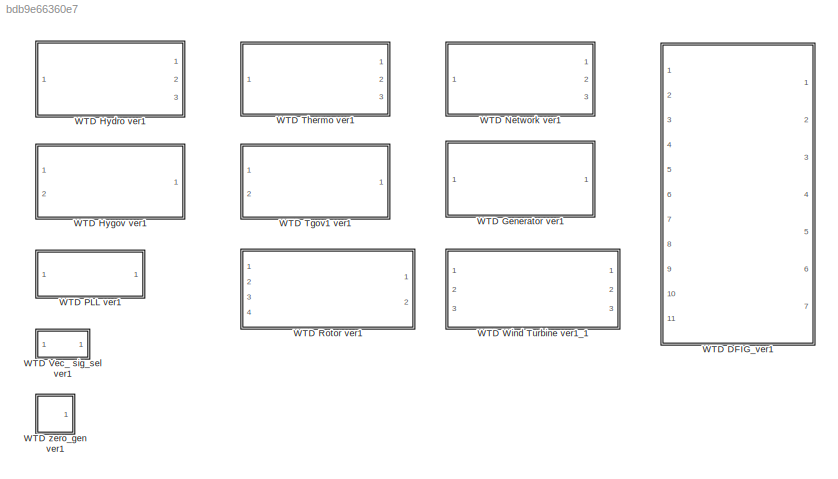
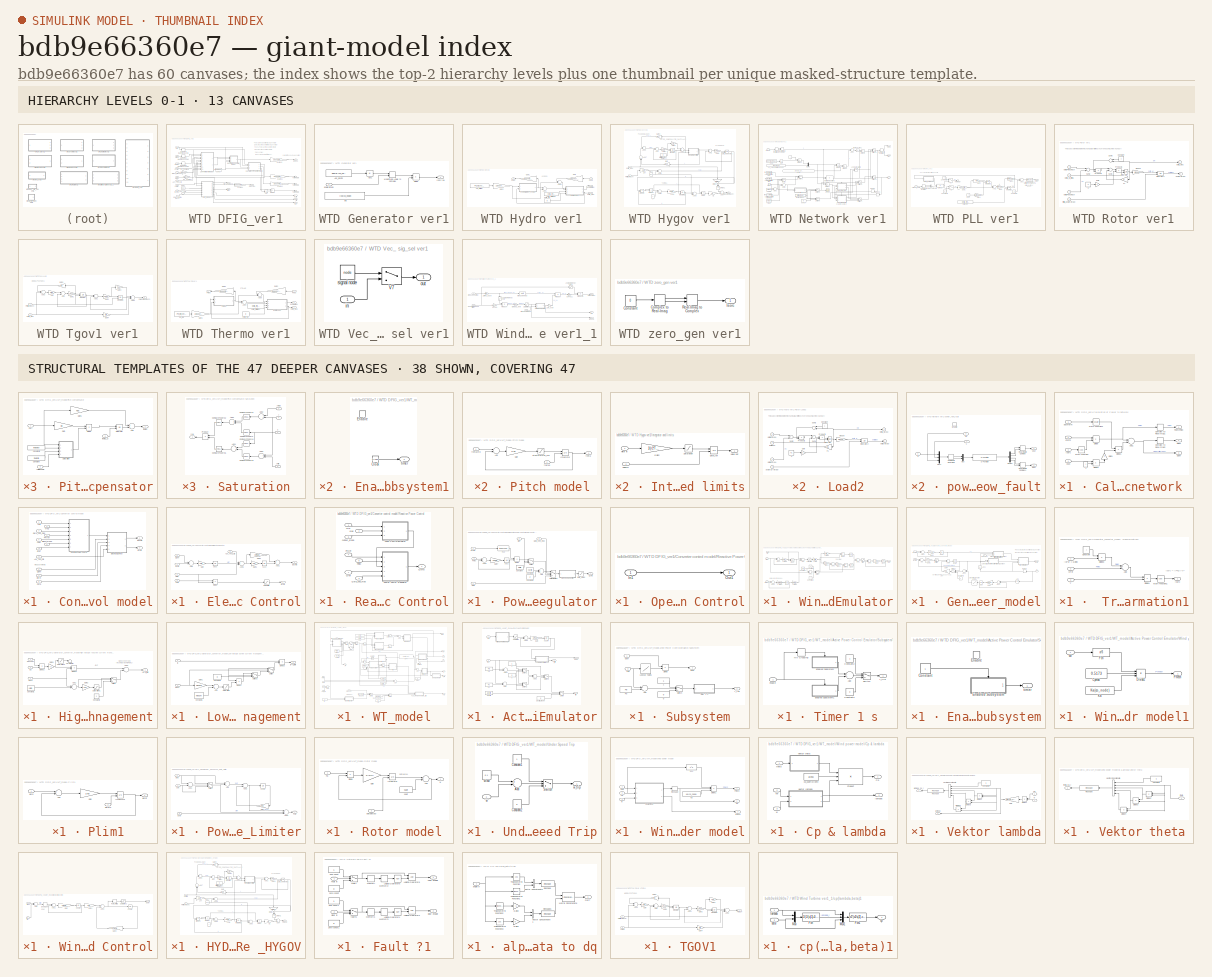
[diagram: thumbnail index - top-2 hierarchy levels (13 canvases) + 38 structural-template representatives of the remaining 47 canvases]
MODEL slx_bdb9e66360e7
KIND library
BLOCK [SubSystem] WTD DFIG_ver1
  Ports = [11, 7]
  RequestExecContextInheritance = off
BLOCK [Abs] WTD DFIG_ver1/Abs
  SaturateOnIntegerOverflow = off
BLOCK [Inport] WTD DFIG_ver1/Aux_Test_Sig
  IconDisplay = Port number
  Port = 5
BLOCK [Inport] WTD DFIG_ver1/Aux_f_sig
  IconDisplay = Port number
  Port = 7
BLOCK [SubSystem] WTD DFIG_ver1/Calculation of Power to network 
  Ports = [4, 3]
  RequestExecContextInheritance = off
BLOCK [Sum] WTD DFIG_ver1/Calculation of Power to network /Add1
  InputSameDT = off
  Inputs = +-
  OutDataTypeStr = Inherit: Inherit via internal rule
  Ports = [2, 1]
  SaturateOnIntegerOverflow = off
BLOCK [ComplexToRealImag] WTD DFIG_ver1/Calculation of Power to network /Complex to Real-Imag1
  Output = Real
  Ports = [1, 1]
BLOCK [ComplexToRealImag] WTD DFIG_ver1/Calculation of Power to network /Complex to Real-Imag2
  Output = Imag
  Ports = [1, 1]
BLOCK [Product] WTD DFIG_ver1/Calculation of Power to network /Divide
  InputSameDT = off
  Inputs = **
  OutDataTypeStr = Inherit: Inherit via internal rule
  Ports = [2, 1]
  RndMeth = Floor
  SaturateOnIntegerOverflow = off
BLOCK [Product] WTD DFIG_ver1/Calculation of Power to network /Divide1
  InputSameDT = off
  Inputs = */
  OutDataTypeStr = Inherit: Inherit via internal rule
  Ports = [2, 1]
  RndMeth = Floor
  SaturateOnIntegerOverflow = off
BLOCK [Product] WTD DFIG_ver1/Calculation of Power to network /Divide4
  InputSameDT = off
  Inputs = **
  OutDataTypeStr = Inherit: Inherit via internal rule
  Ports = [2, 1]
  RndMeth = Floor
  SaturateOnIntegerOverflow = off
BLOCK [Gain] WTD DFIG_ver1/Calculation of Power to network /Gain1
  Gain = -1
  OutDataTypeStr = Inherit: Inherit via internal rule
  ParamDataTypeStr = Inherit: Inherit via internal rule
  SaturateOnIntegerOverflow = off
BLOCK [Inport] WTD DFIG_ver1/Calculation of Power to network /Isorc
  IconDisplay = Port number
  Port = 3
BLOCK [Math] WTD DFIG_ver1/Calculation of Power to network /Math Function
  Operator = conj
  Ports = [1, 1]
BLOCK [Math] WTD DFIG_ver1/Calculation of Power to network /Math Function1
  Operator = square
  Ports = [1, 1]
BLOCK [Outport] WTD DFIG_ver1/Calculation of Power to network /Pgen=Pelec
  IconDisplay = Port number
BLOCK [Outport] WTD DFIG_ver1/Calculation of Power to network /Qgen
  IconDisplay = Port number
  Port = 2
BLOCK [Outport] WTD DFIG_ver1/Calculation of Power to network /Sgen
  IconDisplay = Port number
  Port = 3
BLOCK [Inport] WTD DFIG_ver1/Calculation of Power to network /Vterm
  IconDisplay = Port number
  Port = 2
BLOCK [Inport] WTD DFIG_ver1/Calculation of Power to network /Xsec
  IconDisplay = Port number
  Port = 4
BLOCK [Inport] WTD DFIG_ver1/Calculation of Power to network /absVterm
  IconDisplay = Port number
BLOCK [Constant] WTD DFIG_ver1/Calculation of Power to network /j
  Value = j
BLOCK [ComplexToMagnitudeAngle] WTD DFIG_ver1/Complex to Magnitude-Angle
  Output = Magnitude
  Ports = [1, 1]
BLOCK [ComplexToMagnitudeAngle] WTD DFIG_ver1/Complex to Magnitude-Angle2
  Output = Magnitude
  Ports = [1, 1]
BLOCK [ComplexToMagnitudeAngle] WTD DFIG_ver1/Complex to Magnitude-Angle3
  Output = Magnitude
  Ports = [1, 1]
BLOCK [SubSystem] WTD DFIG_ver1/Converter control model
  Ports = [11, 2]
  RequestExecContextInheritance = off
BLOCK [Inport] WTD DFIG_ver1/Converter control model/Aux_Test_Sig
  IconDisplay = Port number
  Port = 11
BLOCK [SubSystem] WTD DFIG_ver1/Converter control model/Electrical Control
  Ports = [5, 2]
  RequestExecContextInheritance = off
BLOCK [Sum] WTD DFIG_ver1/Converter control model/Electrical Control/Add
  InputSameDT = off
  Inputs = -+
  OutDataTypeStr = Inherit: Inherit via internal rule
  Ports = [2, 1]
  SaturateOnIntegerOverflow = off
BLOCK [Sum] WTD DFIG_ver1/Converter control model/Electrical Control/Add1
  InputSameDT = off
  OutDataTypeStr = Inherit: Inherit via internal rule
  Ports = [2, 1]
  SaturateOnIntegerOverflow = off
BLOCK [Sum] WTD DFIG_ver1/Converter control model/Electrical Control/Add5
  InputSameDT = off
  Inputs = ++-
  OutDataTypeStr = Inherit: Inherit via internal rule
  Ports = [3, 1]
  SaturateOnIntegerOverflow = off
BLOCK [Inport] WTD DFIG_ver1/Converter control model/Electrical Control/Aux_Test_Sig
  IconDisplay = Port number
  Port = 5
BLOCK [Product] WTD DFIG_ver1/Converter control model/Electrical Control/Divide
  InputSameDT = off
  Inputs = */
  OutDataTypeStr = Inherit: Inherit via internal rule
  Ports = [2, 1]
  RndMeth = Floor
  SaturateOnIntegerOverflow = off
BLOCK [Outport] WTD DFIG_ver1/Converter control model/Electrical Control/Eqcmd
  IconDisplay = Port number
BLOCK [Gain] WTD DFIG_ver1/Converter control model/Electrical Control/Gain
  Gain = KQi
  OutDataTypeStr = Inherit: Inherit via internal rule
  ParamDataTypeStr = Inherit: Inherit via internal rule
  SaturateOnIntegerOverflow = off
BLOCK [Gain] WTD DFIG_ver1/Converter control model/Electrical Control/Gain1
  Gain = KVi
  OutDataTypeStr = Inherit: Inherit via internal rule
  ParamDataTypeStr = Inherit: Inherit via internal rule
  SaturateOnIntegerOverflow = off
BLOCK [Gain] WTD DFIG_ver1/Converter control model/Electrical Control/Gain2
  Gain = KPiadd
  OutDataTypeStr = Inherit: Inherit via internal rule
  ParamDataTypeStr = Inherit: Inherit via internal rule
  SaturateOnIntegerOverflow = off
BLOCK [Saturate] WTD DFIG_ver1/Converter control model/Electrical Control/IPmax limit
  InputPortMap = u0
  LowerLimit = -inf
  Ports = [1, 1]
  UpperLimit = IPmax
BLOCK [Outport] WTD DFIG_ver1/Converter control model/Electrical Control/Ipcmd
  IconDisplay = Port number
  Port = 2
BLOCK [Inport] WTD DFIG_ver1/Converter control model/Electrical Control/Pord
  IconDisplay = Port number
  Port = 4
BLOCK [Inport] WTD DFIG_ver1/Converter control model/Electrical Control/Qcmd
  IconDisplay = Port number
BLOCK [Inport] WTD DFIG_ver1/Converter control model/Electrical Control/Qgen
  IconDisplay = Port number
  Port = 2
BLOCK [Inport] WTD DFIG_ver1/Converter control model/Electrical Control/Vterm
  IconDisplay = Port number
  Port = 3
BLOCK [Integrator] WTD DFIG_ver1/Converter control model/Electrical Control/s0cc
  InitialCondition = s0cc
  LimitOutput = on
  LowerSaturationLimit = Vmin
  Ports = [1, 1]
  UpperSaturationLimit = Vmax
BLOCK [Integrator] WTD DFIG_ver1/Converter control model/Electrical Control/s1cc
  InitialCondition = s1cc
  LimitOutput = on
  LowerSaturationLimit = XIQmin
  Ports = [1, 1]
  UpperSaturationLimit = XIQmax
BLOCK [Outport] WTD DFIG_ver1/Converter control model/Eqcmd
  IconDisplay = Port number
BLOCK [Outport] WTD DFIG_ver1/Converter control model/Ipcmd
  IconDisplay = Port number
  Port = 2
BLOCK [Inport] WTD DFIG_ver1/Converter control model/PFAref
  IconDisplay = Port number
  Port = 4
BLOCK [Inport] WTD DFIG_ver1/Converter control model/Pelec
  IconDisplay = Port number
  Port = 5
BLOCK [Inport] WTD DFIG_ver1/Converter control model/Pord
  IconDisplay = Port number
  Port = 8
BLOCK [Inport] WTD DFIG_ver1/Converter control model/Qgen
  IconDisplay = Port number
  Port = 6
BLOCK [Inport] WTD DFIG_ver1/Converter control model/Qinput_droop
  IconDisplay = Port number
  Port = 9
BLOCK [Inport] WTD DFIG_ver1/Converter control model/Qord_sep_mod
  IconDisplay = Port number
  Port = 3
BLOCK [Inport] WTD DFIG_ver1/Converter control model/Qref
  IconDisplay = Port number
  Port = 10
BLOCK [SubSystem] WTD DFIG_ver1/Converter control model/Reactive Power Control
  Ports = [7, 1]
  RequestExecContextInheritance = off
BLOCK [Inport] WTD DFIG_ver1/Converter control model/Reactive Power Control/PFAref
  IconDisplay = Port number
  Port = 4
BLOCK [Inport] WTD DFIG_ver1/Converter control model/Reactive Power Control/Pelec
  IconDisplay = Port number
  Port = 5
BLOCK [SubSystem] WTD DFIG_ver1/Converter control model/Reactive Power Control/Power Factor Regulator
  Ports = [5, 1]
  RequestExecContextInheritance = off
BLOCK [Sum] WTD DFIG_ver1/Converter control model/Reactive Power Control/Power Factor Regulator/Add
  InputSameDT = off
  OutDataTypeStr = Inherit: Inherit via internal rule
  Ports = [2, 1]
  SaturateOnIntegerOverflow = off
BLOCK [Sum] WTD DFIG_ver1/Converter control model/Reactive Power Control/Power Factor Regulator/Add6
  InputSameDT = off
  Inputs = +-
  OutDataTypeStr = Inherit: Inherit via internal rule
  Ports = [2, 1]
  SaturateOnIntegerOverflow = off
BLOCK [Constant] WTD DFIG_ver1/Converter control model/Reactive Power Control/Power Factor Regulator/Constant
  Value = pfaflg
BLOCK [Constant] WTD DFIG_ver1/Converter control model/Reactive Power Control/Power Factor Regulator/Constant1
  Value = varflg
BLOCK [Constant] WTD DFIG_ver1/Converter control model/Reactive Power Control/Power Factor Regulator/Constant2
  Value = 2
BLOCK [Product] WTD DFIG_ver1/Converter control model/Reactive Power Control/Power Factor Regulator/Divide
  InputSameDT = off
  Inputs = **
  OutDataTypeStr = Inherit: Inherit via internal rule
  Ports = [2, 1]
  RndMeth = Floor
  SaturateOnIntegerOverflow = off
BLOCK [Fcn] WTD DFIG_ver1/Converter control model/Reactive Power Control/Power Factor Regulator/Fcn
  Expr = tan(acos(u))
BLOCK [Gain] WTD DFIG_ver1/Converter control model/Reactive Power Control/Power Factor Regulator/Gain7
  Gain = 1/Tpwr
  OutDataTypeStr = Inherit: Inherit via internal rule
  ParamDataTypeStr = Inherit: Inherit via internal rule
  SaturateOnIntegerOverflow = off
BLOCK [MultiPortSwitch] WTD DFIG_ver1/Converter control model/Reactive Power Control/Power Factor Regulator/Multiport Switch
  InputSameDT = off
  Ports = [4, 1]
  SaturateOnIntegerOverflow = off
BLOCK [SubSystem] WTD DFIG_ver1/Converter control model/Reactive Power Control/Power Factor Regulator/Open Loop Control
  Ports = [1, 1]
  RequestExecContextInheritance = off
BLOCK [Inport] WTD DFIG_ver1/Converter control model/Reactive Power Control/Power Factor Regulator/Open Loop Control/In1
  IconDisplay = Port number
BLOCK [Outport] WTD DFIG_ver1/Converter control model/Reactive Power Control/Power Factor Regulator/Open Loop Control/Out1
  IconDisplay = Port number
BLOCK [Inport] WTD DFIG_ver1/Converter control model/Reactive Power Control/Power Factor Regulator/PFAref
  IconDisplay = Port number
BLOCK [Inport] WTD DFIG_ver1/Converter control model/Reactive Power Control/Power Factor Regulator/Pelec
  IconDisplay = Port number
  Port = 2
BLOCK [Outport] WTD DFIG_ver1/Converter control model/Reactive Power Control/Power Factor Regulator/Qcmd
  IconDisplay = Port number
BLOCK [Saturate] WTD DFIG_ver1/Converter control model/Reactive Power Control/Power Factor Regulator/Qmin_Qmax
  InputPortMap = u0
  LowerLimit = Qmin
  Ports = [1, 1]
  UpperLimit = Qmax
BLOCK [Inport] WTD DFIG_ver1/Converter control model/Reactive Power Control/Power Factor Regulator/Qord
  IconDisplay = Port number
  Port = 3
BLOCK [Inport] WTD DFIG_ver1/Converter control model/Reactive Power Control/Power Factor Regulator/Qord_sep_mod
  IconDisplay = Port number
  Port = 5
BLOCK [Inport] WTD DFIG_ver1/Converter control model/Reactive Power Control/Power Factor Regulator/Qref
  IconDisplay = Port number
  Port = 4
BLOCK [Switch] WTD DFIG_ver1/Converter control model/Reactive Power Control/Power Factor Regulator/Switch
  Criteria = u2 > Threshold
  InputSameDT = off
  SaturateOnIntegerOverflow = off
BLOCK [Integrator] WTD DFIG_ver1/Converter control model/Reactive Power Control/Power Factor Regulator/s6cc
  InitialCondition = s6cc
  Ports = [1, 1]
BLOCK [Outport] WTD DFIG_ver1/Converter control model/Reactive Power Control/Qcmd
  IconDisplay = Port number
BLOCK [Inport] WTD DFIG_ver1/Converter control model/Reactive Power Control/Qinput_droop
  IconDisplay = Port number
  Port = 6
BLOCK [Inport] WTD DFIG_ver1/Converter control model/Reactive Power Control/Qord_sep_mod
  IconDisplay = Port number
  Port = 3
BLOCK [Inport] WTD DFIG_ver1/Converter control model/Reactive Power Control/Qref
  IconDisplay = Port number
  Port = 7
BLOCK [Inport] WTD DFIG_ver1/Converter control model/Reactive Power Control/Vreg
  IconDisplay = Port number
  Port = 2
BLOCK [Inport] WTD DFIG_ver1/Converter control model/Reactive Power Control/Vrfq
  IconDisplay = Port number
BLOCK [SubSystem] WTD DFIG_ver1/Converter control model/Reactive Power Control/Wind Control Emulator
  Ports = [3, 1]
  RequestExecContextInheritance = off
BLOCK [Sum] WTD DFIG_ver1/Converter control model/Reactive Power Control/Wind Control Emulator/Add
  InputSameDT = off
  Inputs = +--
  OutDataTypeStr = Inherit: Inherit via internal rule
  Ports = [3, 1]
  SaturateOnIntegerOverflow = off
BLOCK [Sum] WTD DFIG_ver1/Converter control model/Reactive Power Control/Wind Control Emulator/Add1
  InputSameDT = off
  OutDataTypeStr = Inherit: Inherit via internal rule
  Ports = [2, 1]
  SaturateOnIntegerOverflow = off
BLOCK [Sum] WTD DFIG_ver1/Converter control model/Reactive Power Control/Wind Control Emulator/Add2
  InputSameDT = off
  Inputs = +-
  OutDataTypeStr = Inherit: Inherit via internal rule
  Ports = [2, 1]
  SaturateOnIntegerOverflow = off
BLOCK [Sum] WTD DFIG_ver1/Converter control model/Reactive Power Control/Wind Control Emulator/Add3
  InputSameDT = off
  Inputs = +-
  OutDataTypeStr = Inherit: Inherit via internal rule
  Ports = [2, 1]
  SaturateOnIntegerOverflow = off
BLOCK [Sum] WTD DFIG_ver1/Converter control model/Reactive Power Control/Wind Control Emulator/Add4
  InputSameDT = off
  Inputs = +-
  OutDataTypeStr = Inherit: Inherit via internal rule
  Ports = [2, 1]
  SaturateOnIntegerOverflow = off
BLOCK [Sum] WTD DFIG_ver1/Converter control model/Reactive Power Control/Wind Control Emulator/Add5
  InputSameDT = off
  Inputs = +-
  OutDataTypeStr = Inherit: Inherit via internal rule
  Ports = [2, 1]
  SaturateOnIntegerOverflow = off
BLOCK [Sum] WTD DFIG_ver1/Converter control model/Reactive Power Control/Wind Control Emulator/Add6
  InputSameDT = off
  Inputs = +-
  OutDataTypeStr = Inherit: Inherit via internal rule
  Ports = [2, 1]
  SaturateOnIntegerOverflow = off
BLOCK [Constant] WTD DFIG_ver1/Converter control model/Reactive Power Control/Wind Control Emulator/Constant
  Value = Vfrz
BLOCK [Constant] WTD DFIG_ver1/Converter control model/Reactive Power Control/Wind Control Emulator/Constant1
  Value = 0
BLOCK [Constant] WTD DFIG_ver1/Converter control model/Reactive Power Control/Wind Control Emulator/Constant2
BLOCK [Product] WTD DFIG_ver1/Converter control model/Reactive Power Control/Wind Control Emulator/Divide
  InputSameDT = off
  Inputs = **
  OutDataTypeStr = Inherit: Inherit via internal rule
  Ports = [2, 1]
  RndMeth = Floor
  SaturateOnIntegerOverflow = off
BLOCK [Product] WTD DFIG_ver1/Converter control model/Reactive Power Control/Wind Control Emulator/Divide2
  InputSameDT = off
  Inputs = **
  OutDataTypeStr = Inherit: Inherit via internal rule
  Ports = [2, 1]
  RndMeth = Floor
  SaturateOnIntegerOverflow = off
BLOCK [Gain] WTD DFIG_ver1/Converter control model/Reactive Power Control/Wind Control Emulator/Gain
  Gain = 1/fn
  OutDataTypeStr = Inherit: Inherit via internal rule
  ParamDataTypeStr = Inherit: Inherit via internal rule
  SaturateOnIntegerOverflow = off
BLOCK [Gain] WTD DFIG_ver1/Converter control model/Reactive Power Control/Wind Control Emulator/Gain1
  Gain = Kqd
  OutDataTypeStr = Inherit: Inherit via internal rule
  ParamDataTypeStr = Inherit: Inherit via internal rule
  SaturateOnIntegerOverflow = off
BLOCK [Gain] WTD DFIG_ver1/Converter control model/Reactive Power Control/Wind Control Emulator/Gain2
  Gain = Kiv
  OutDataTypeStr = Inherit: Inherit via internal rule
  ParamDataTypeStr = Inherit: Inherit via internal rule
  SaturateOnIntegerOverflow = off
BLOCK [Gain] WTD DFIG_ver1/Converter control model/Reactive Power Control/Wind Control Emulator/Gain3
  Gain = 1/Tv
  OutDataTypeStr = Inherit: Inherit via internal rule
  ParamDataTypeStr = Inherit: Inherit via internal rule
  SaturateOnIntegerOverflow = off
BLOCK [Gain] WTD DFIG_ver1/Converter control model/Reactive Power Control/Wind Control Emulator/Gain4
  Gain = Kpv
  OutDataTypeStr = Inherit: Inherit via internal rule
  ParamDataTypeStr = Inherit: Inherit via internal rule
  SaturateOnIntegerOverflow = off
BLOCK [Gain] WTD DFIG_ver1/Converter control model/Reactive Power Control/Wind Control Emulator/Gain5
  Gain = 1/Tr
  OutDataTypeStr = Inherit: Inherit via internal rule
  ParamDataTypeStr = Inherit: Inherit via internal rule
  SaturateOnIntegerOverflow = off
BLOCK [Gain] WTD DFIG_ver1/Converter control model/Reactive Power Control/Wind Control Emulator/Gain6
  Gain = 1/TIpqd
  OutDataTypeStr = Inherit: Inherit via internal rule
  ParamDataTypeStr = Inherit: Inherit via internal rule
  SaturateOnIntegerOverflow = off
BLOCK [Gain] WTD DFIG_ver1/Converter control model/Reactive Power Control/Wind Control Emulator/Gain7
  Gain = 1/Tc
  OutDataTypeStr = Inherit: Inherit via internal rule
  ParamDataTypeStr = Inherit: Inherit via internal rule
  SaturateOnIntegerOverflow = off
BLOCK [Saturate] WTD DFIG_ver1/Converter control model/Reactive Power Control/Wind Control Emulator/Q limit
  InputPortMap = u0
  LowerLimit = Qmin
  Ports = [1, 1]
  UpperLimit = Qmax
BLOCK [Inport] WTD DFIG_ver1/Converter control model/Reactive Power Control/Wind Control Emulator/Qinput
  IconDisplay = Port number
  Port = 3
BLOCK [Outport] WTD DFIG_ver1/Converter control model/Reactive Power Control/Wind Control Emulator/Qord
  IconDisplay = Port number
BLOCK [Switch] WTD DFIG_ver1/Converter control model/Reactive Power Control/Wind Control Emulator/Switch
  Criteria = u2 > Threshold
  InputSameDT = off
  SaturateOnIntegerOverflow = off
BLOCK [Saturate] WTD DFIG_ver1/Converter control model/Reactive Power Control/Wind Control Emulator/Vermx limit
  InputPortMap = u0
  LowerLimit = Vermn
  Ports = [1, 1]
  UpperLimit = Vermx
BLOCK [Inport] WTD DFIG_ver1/Converter control model/Reactive Power Control/Wind Control Emulator/Vreg
  IconDisplay = Port number
  Port = 2
BLOCK [Inport] WTD DFIG_ver1/Converter control model/Reactive Power Control/Wind Control Emulator/Vrfq
  IconDisplay = Port number
BLOCK [Integrator] WTD DFIG_ver1/Converter control model/Reactive Power Control/Wind Control Emulator/s2cc
  InitialCondition = s2cc
  Ports = [1, 1]
BLOCK [Integrator] WTD DFIG_ver1/Converter control model/Reactive Power Control/Wind Control Emulator/s3cc
  InitialCondition = s3cc
  InitialConditionSource = external
  Ports = [2, 1]
BLOCK [Integrator] WTD DFIG_ver1/Converter control model/Reactive Power Control/Wind Control Emulator/s4cc
  InitialCondition = s4cc
  Ports = [1, 1]
BLOCK [Integrator] WTD DFIG_ver1/Converter control model/Reactive Power Control/Wind Control Emulator/s5cc
  InitialCondition = s5cc
  Ports = [1, 1]
BLOCK [Integrator] WTD DFIG_ver1/Converter control model/Reactive Power Control/Wind Control Emulator/s7cc
  InitialCondition = s7cc
  Ports = [1, 1]
BLOCK [Inport] WTD DFIG_ver1/Converter control model/Vreg
  IconDisplay = Port number
  Port = 2
BLOCK [Inport] WTD DFIG_ver1/Converter control model/Vrfq
  IconDisplay = Port number
BLOCK [Inport] WTD DFIG_ver1/Converter control model/Vterm
  IconDisplay = Port number
  Port = 7
BLOCK [Outport] WTD DFIG_ver1/Cp
  IconDisplay = Port number
  Port = 5
BLOCK [Product] WTD DFIG_ver1/Divide2
  InputSameDT = off
  Inputs = */
  OutDataTypeStr = Inherit: Inherit via internal rule
  Ports = [2, 1]
  RndMeth = Floor
  SaturateOnIntegerOverflow = off
BLOCK [SubSystem] WTD DFIG_ver1/Generator_converter_model
  Ports = [4, 1]
  RequestExecContextInheritance = off
BLOCK [SubSystem] WTD DFIG_ver1/Generator_converter_model/ Transformation1
  Ports = [3, 1]
  RequestExecContextInheritance = off
BLOCK [Inport] WTD DFIG_ver1/Generator_converter_model/ Transformation1/-Iq*Vt = Qelec
  IconDisplay = Port number
BLOCK [Sum] WTD DFIG_ver1/Generator_converter_model/ Transformation1/Add
  InputSameDT = off
  OutDataTypeStr = Inherit: Inherit via internal rule
  Ports = [2, 1]
  SaturateOnIntegerOverflow = off
BLOCK [Constant] WTD DFIG_ver1/Generator_converter_model/ Transformation1/Constant
  Value = j
BLOCK [Product] WTD DFIG_ver1/Generator_converter_model/ Transformation1/Divide1
  InputSameDT = off
  Inputs = */
  OutDataTypeStr = Inherit: Inherit via internal rule
  Ports = [2, 1]
  RndMeth = Floor
  SaturateOnIntegerOverflow = off
BLOCK [Product] WTD DFIG_ver1/Generator_converter_model/ Transformation1/Divide3
  InputSameDT = off
  Inputs = **
  OutDataTypeStr = Inherit: Inherit via internal rule
  Ports = [2, 1]
  RndMeth = Floor
  SaturateOnIntegerOverflow = off
BLOCK [Inport] WTD DFIG_ver1/Generator_converter_model/ Transformation1/Ip*Vt
  IconDisplay = Port number
  Port = 2
BLOCK [Outport] WTD DFIG_ver1/Generator_converter_model/ Transformation1/Isorc
  IconDisplay = Port number
BLOCK [Math] WTD DFIG_ver1/Generator_converter_model/ Transformation1/Math Function1
  Operator = conj
  Ports = [1, 1]
BLOCK [Inport] WTD DFIG_ver1/Generator_converter_model/ Transformation1/V
  IconDisplay = Port number
  Port = 3
BLOCK [Abs] WTD DFIG_ver1/Generator_converter_model/Abs
  SaturateOnIntegerOverflow = off
BLOCK [Abs] WTD DFIG_ver1/Generator_converter_model/Abs1
  SaturateOnIntegerOverflow = off
BLOCK [Sum] WTD DFIG_ver1/Generator_converter_model/Add
  InputSameDT = off
  Inputs = +-
  OutDataTypeStr = Inherit: Inherit via internal rule
  Ports = [2, 1]
  SaturateOnIntegerOverflow = off
BLOCK [Sum] WTD DFIG_ver1/Generator_converter_model/Add1
  InputSameDT = off
  Inputs = +-
  OutDataTypeStr = Inherit: Inherit via internal rule
  Ports = [2, 1]
  SaturateOnIntegerOverflow = off
BLOCK [Sum] WTD DFIG_ver1/Generator_converter_model/Add2
  InputSameDT = off
  Inputs = +-
  OutDataTypeStr = Inherit: Inherit via internal rule
  Ports = [2, 1]
  SaturateOnIntegerOverflow = off
BLOCK [Sum] WTD DFIG_ver1/Generator_converter_model/Add3
  InputSameDT = off
  Inputs = +-
  OutDataTypeStr = Inherit: Inherit via internal rule
  Ports = [2, 1]
  SaturateOnIntegerOverflow = off
BLOCK [Sum] WTD DFIG_ver1/Generator_converter_model/Add4
  InputSameDT = off
  Inputs = +-
  OutDataTypeStr = Inherit: Inherit via internal rule
  Ports = [2, 1]
  SaturateOnIntegerOverflow = off
BLOCK [Constant] WTD DFIG_ver1/Generator_converter_model/Constant1
  Value = 0
BLOCK [Inport] WTD DFIG_ver1/Generator_converter_model/Eqcmd
  IconDisplay = Port number
BLOCK [Gain] WTD DFIG_ver1/Generator_converter_model/Gain1
  Gain = 1/Tcon
  OutDataTypeStr = Inherit: Inherit via internal rule
  ParamDataTypeStr = Inherit: Inherit via internal rule
  SaturateOnIntegerOverflow = off
BLOCK [Gain] WTD DFIG_ver1/Generator_converter_model/Gain2
  Gain = 1/Tcon
  OutDataTypeStr = Inherit: Inherit via internal rule
  ParamDataTypeStr = Inherit: Inherit via internal rule
  SaturateOnIntegerOverflow = off
BLOCK [Gain] WTD DFIG_ver1/Generator_converter_model/Gain3
  Gain = 1/Tcon
  OutDataTypeStr = Inherit: Inherit via internal rule
  ParamDataTypeStr = Inherit: Inherit via internal rule
  SaturateOnIntegerOverflow = off
BLOCK [Gain] WTD DFIG_ver1/Generator_converter_model/Gain4
  Gain = 30
  OutDataTypeStr = Inherit: Inherit via internal rule
  ParamDataTypeStr = Inherit: Inherit via internal rule
  SaturateOnIntegerOverflow = off
BLOCK [SubSystem] WTD DFIG_ver1/Generator_converter_model/High voltage reactive current management
  Ports = [3, 1]
  RequestExecContextInheritance = off
BLOCK [Outport] WTD DFIG_ver1/Generator_converter_model/High voltage reactive current management/-Iq*Vt_limit
  IconDisplay = Port number
BLOCK [Sum] WTD DFIG_ver1/Generator_converter_model/High voltage reactive current management/Add1
  InputSameDT = off
  Inputs = +-
  OutDataTypeStr = Inherit: Inherit via internal rule
  Ports = [2, 1]
  SaturateOnIntegerOverflow = off
BLOCK [Sum] WTD DFIG_ver1/Generator_converter_model/High voltage reactive current management/Add2
  InputSameDT = off
  Inputs = +-
  OutDataTypeStr = Inherit: Inherit via internal rule
  Ports = [2, 1]
  SaturateOnIntegerOverflow = off
BLOCK [Constant] WTD DFIG_ver1/Generator_converter_model/High voltage reactive current management/Constant1
  Value = volim
BLOCK [Constant] WTD DFIG_ver1/Generator_converter_model/High voltage reactive current management/Constant2
  Value = 0
BLOCK [Product] WTD DFIG_ver1/Generator_converter_model/High voltage reactive current management/Divide2
  InputSameDT = off
  Inputs = /*
  OutDataTypeStr = Inherit: Inherit via internal rule
  Ports = [2, 1]
  RndMeth = Floor
  SaturateOnIntegerOverflow = off
BLOCK [Product] WTD DFIG_ver1/Generator_converter_model/High voltage reactive current management/Divide3
  InputSameDT = off
  Inputs = **
  OutDataTypeStr = Inherit: Inherit via internal rule
  Ports = [2, 1]
  RndMeth = Floor
  SaturateOnIntegerOverflow = off
BLOCK [Inport] WTD DFIG_ver1/Generator_converter_model/High voltage reactive current management/Eq
  IconDisplay = Port number
BLOCK [Gain] WTD DFIG_ver1/Generator_converter_model/High voltage reactive current management/Gain2
  Gain = khv
  OutDataTypeStr = Inherit: Inherit via internal rule
  ParamDataTypeStr = Inherit: Inherit via internal rule
  SaturateOnIntegerOverflow = off
BLOCK [Gain] WTD DFIG_ver1/Generator_converter_model/High voltage reactive current management/Gain3
  Gain = +1
  OutDataTypeStr = Inherit: Inherit via internal rule
  ParamDataTypeStr = Inherit: Inherit via internal rule
  SaturateOnIntegerOverflow = off
BLOCK [Saturate] WTD DFIG_ver1/Generator_converter_model/High voltage reactive current management/Saturation1
  InputPortMap = u0
  LowerLimit = 0
  Ports = [1, 1]
  UpperLimit = inf
BLOCK [Saturate] WTD DFIG_ver1/Generator_converter_model/High voltage reactive current management/Saturation2
  InputPortMap = u0
  LowerLimit = -inf
  Ports = [1, 1]
  UpperLimit = iolim
BLOCK [Switch] WTD DFIG_ver1/Generator_converter_model/High voltage reactive current management/Switch
  Criteria = u2 > Threshold
  InputSameDT = off
  SaturateOnIntegerOverflow = off
BLOCK [Terminator] WTD DFIG_ver1/Generator_converter_model/High voltage reactive current management/Terminator
BLOCK [Inport] WTD DFIG_ver1/Generator_converter_model/High voltage reactive current management/absV
  IconDisplay = Port number
  Port = 2
BLOCK [Inport] WTD DFIG_ver1/Generator_converter_model/High voltage reactive current management/absXsec
  IconDisplay = Port number
  Port = 3
BLOCK [Inport] WTD DFIG_ver1/Generator_converter_model/Ipcmd
  IconDisplay = Port number
  Port = 2
BLOCK [Outport] WTD DFIG_ver1/Generator_converter_model/Isorc
  IconDisplay = Port number
BLOCK [Lookup] WTD DFIG_ver1/Generator_converter_model/Low Voltage Power Logic1
  InputValues = [0,zerox,brkpt,brkpt+eps,brkpt+2*eps]
  SaturateOnIntegerOverflow = off
  Table = [0 0 1.22 2 2]
BLOCK [SubSystem] WTD DFIG_ver1/Generator_converter_model/Low voltage active current management
  Ports = [2, 1]
  RequestExecContextInheritance = off
BLOCK [Sum] WTD DFIG_ver1/Generator_converter_model/Low voltage active current management/Add
  InputSameDT = off
  OutDataTypeStr = Inherit: Inherit via internal rule
  Ports = [2, 1]
  SaturateOnIntegerOverflow = off
BLOCK [Constant] WTD DFIG_ver1/Generator_converter_model/Low voltage active current management/Constant1
  Value = nlvacm
BLOCK [Constant] WTD DFIG_ver1/Generator_converter_model/Low voltage active current management/Constant2
  Value = 0
BLOCK [Product] WTD DFIG_ver1/Generator_converter_model/Low voltage active current management/Divide1
  InputSameDT = off
  Inputs = **
  OutDataTypeStr = Inherit: Inherit via internal rule
  Ports = [2, 1]
  RndMeth = Floor
  SaturateOnIntegerOverflow = off
BLOCK [Product] WTD DFIG_ver1/Generator_converter_model/Low voltage active current management/Divide3
  InputSameDT = off
  Inputs = **
  OutDataTypeStr = Inherit: Inherit via internal rule
  Ports = [2, 1]
  RndMeth = Floor
  SaturateOnIntegerOverflow = off
BLOCK [Gain] WTD DFIG_ver1/Generator_converter_model/Low voltage active current management/Gain1
  Gain = klvacm
  OutDataTypeStr = Inherit: Inherit via internal rule
  ParamDataTypeStr = Inherit: Inherit via internal rule
  SaturateOnIntegerOverflow = off
BLOCK [Inport] WTD DFIG_ver1/Generator_converter_model/Low voltage active current management/Ip
  IconDisplay = Port number
BLOCK [Outport] WTD DFIG_ver1/Generator_converter_model/Low voltage active current management/Ip*Vt_limit
  IconDisplay = Port number
BLOCK [Saturate] WTD DFIG_ver1/Generator_converter_model/Low voltage active current management/Saturation
  InputPortMap = u0
  LowerLimit = 0
  Ports = [1, 1]
  UpperLimit = 1
BLOCK [Switch] WTD DFIG_ver1/Generator_converter_model/Low voltage active current management/Switch
  InputSameDT = off
  SaturateOnIntegerOverflow = off
  Threshold = lvpnt1
BLOCK [Switch] WTD DFIG_ver1/Generator_converter_model/Low voltage active current management/Switch2
  Criteria = u2 > Threshold
  InputSameDT = off
  SaturateOnIntegerOverflow = off
  Threshold = lvpnt0
BLOCK [Inport] WTD DFIG_ver1/Generator_converter_model/Low voltage active current management/absV
  IconDisplay = Port number
  Port = 2
BLOCK [Memory] WTD DFIG_ver1/Generator_converter_model/Memory
  X0 = nodeVoltage(co_node)
BLOCK [Switch] WTD DFIG_ver1/Generator_converter_model/Switch2
  Criteria = u2 > Threshold
  InputSameDT = off
  SaturateOnIntegerOverflow = off
BLOCK [Inport] WTD DFIG_ver1/Generator_converter_model/V
  IconDisplay = Port number
  Port = 3
BLOCK [Inport] WTD DFIG_ver1/Generator_converter_model/absXsec
  IconDisplay = Port number
  Port = 4
BLOCK [Saturate] WTD DFIG_ver1/Generator_converter_model/rrpwr limit
  InputPortMap = u0
  LowerLimit = -inf
  Ports = [1, 1]
  UpperLimit = rrpwr
BLOCK [Integrator] WTD DFIG_ver1/Generator_converter_model/s0gc
  InitialCondition = s0gc
  Ports = [1, 1]
BLOCK [Integrator] WTD DFIG_ver1/Generator_converter_model/s1gc
  InitialCondition = s1gc
  Ports = [1, 1]
BLOCK [Integrator] WTD DFIG_ver1/Generator_converter_model/s2gc
  InitialCondition = s2gc
  Ports = [1, 1]
BLOCK [Outport] WTD DFIG_ver1/Isorc pu
  IconDisplay = Port number
  Port = 3
BLOCK [Inport] WTD DFIG_ver1/PFAref
  IconDisplay = Port number
  Port = 2
BLOCK [Constant] WTD DFIG_ver1/Pdbr
  Value = Pdbr
BLOCK [Outport] WTD DFIG_ver1/Pmech pu
  IconDisplay = Port number
  Port = 4
BLOCK [Inport] WTD DFIG_ver1/Qinput_droop pu
  IconDisplay = Port number
  Port = 3
BLOCK [Inport] WTD DFIG_ver1/Qref pu
  IconDisplay = Port number
  Port = 4
BLOCK [Gain] WTD DFIG_ver1/Scaling1
  Gain = Sbasem4/Sbasesys
  OutDataTypeStr = Inherit: Inherit via internal rule
  ParamDataTypeStr = Inherit: Inherit via internal rule
  SaturateOnIntegerOverflow = off
BLOCK [Gain] WTD DFIG_ver1/Scaling2
  Gain = Sbasem4/Sbasesys
  OutDataTypeStr = Inherit: Inherit via internal rule
  ParamDataTypeStr = Inherit: Inherit via internal rule
  SaturateOnIntegerOverflow = off
BLOCK [Gain] WTD DFIG_ver1/Scaling3
  Gain = Sbasem4/Sbasesys
  OutDataTypeStr = Inherit: Inherit via internal rule
  ParamDataTypeStr = Inherit: Inherit via internal rule
  SaturateOnIntegerOverflow = off
BLOCK [Gain] WTD DFIG_ver1/Scaling4
  Gain = Sbasem4/Sbasesys
  OutDataTypeStr = Inherit: Inherit via internal rule
  ParamDataTypeStr = Inherit: Inherit via internal rule
  SaturateOnIntegerOverflow = off
BLOCK [Terminator] WTD DFIG_ver1/Terminator1
BLOCK [Terminator] WTD DFIG_ver1/Terminator2
BLOCK [Terminator] WTD DFIG_ver1/Terminator5
BLOCK [Inport] WTD DFIG_ver1/Vreg pu
  IconDisplay = Port number
  Port = 11
BLOCK [Inport] WTD DFIG_ver1/Vrfq pu
  IconDisplay = Port number
  Port = 10
BLOCK [Inport] WTD DFIG_ver1/Vt pu
  IconDisplay = Port number
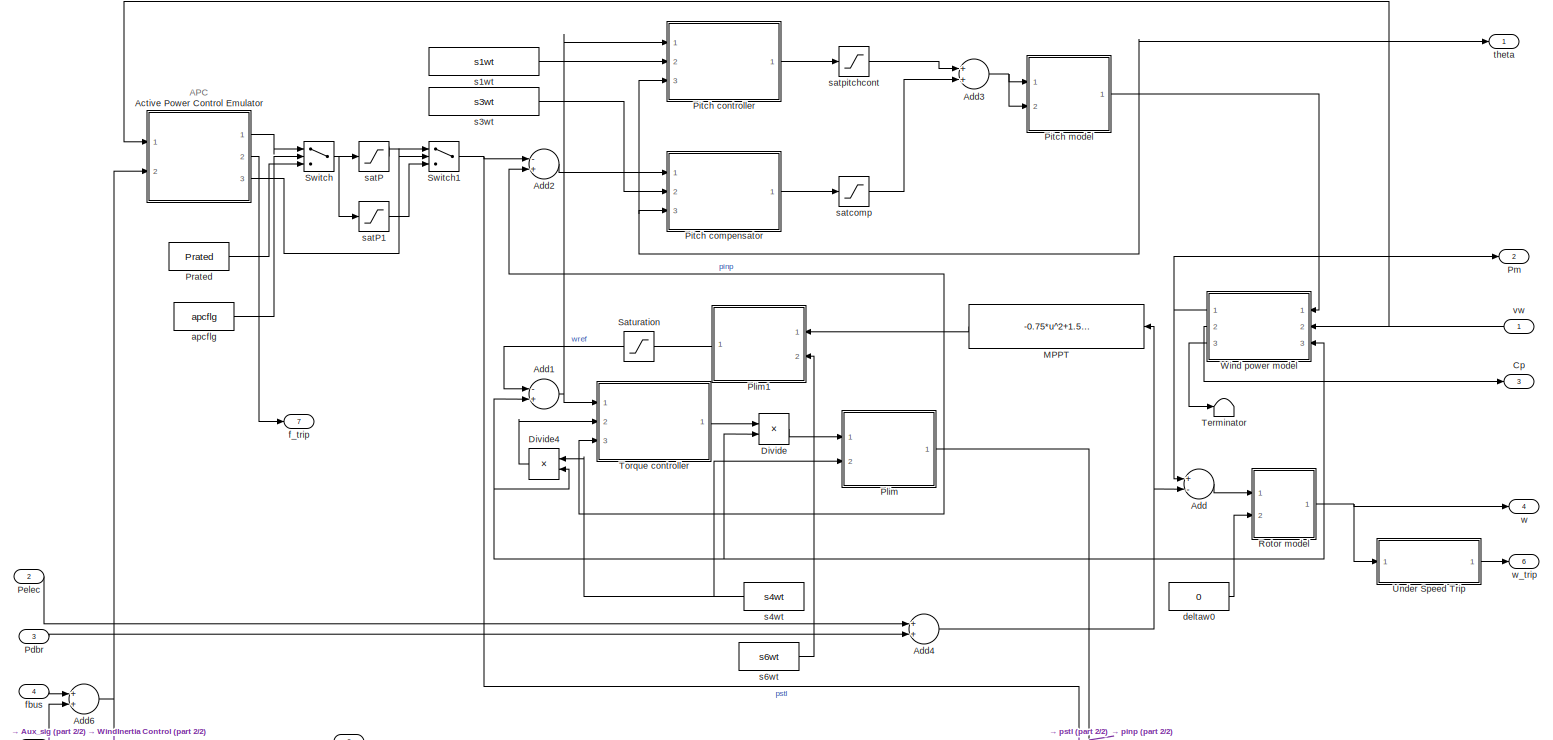
[diagram: WTD DFIG_ver1/WT_model - part 1/2, most of the canvas]
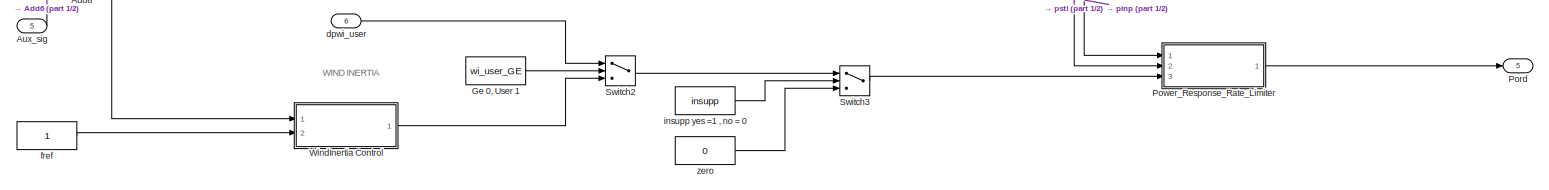
[diagram: WTD DFIG_ver1/WT_model - part 2/2, full width, bottom band]
BLOCK [SubSystem] WTD DFIG_ver1/WT_model
  Ports = [6, 7]
  RequestExecContextInheritance = off
BLOCK [SubSystem] WTD DFIG_ver1/WT_model/Active Power Control Emulator
  Ports = [2, 3]
  RequestExecContextInheritance = off
BLOCK [Constant] WTD DFIG_ver1/WT_model/Active Power Control Emulator/0
  Value = 0
BLOCK [Constant] WTD DFIG_ver1/WT_model/Active Power Control Emulator/1
BLOCK [Sum] WTD DFIG_ver1/WT_model/Active Power Control Emulator/Add
  InputSameDT = off
  Inputs = +-
  OutDataTypeStr = Inherit: Inherit via internal rule
  Ports = [2, 1]
  SaturateOnIntegerOverflow = off
BLOCK [Sum] WTD DFIG_ver1/WT_model/Active Power Control Emulator/Add1
  InputSameDT = off
  Inputs = +-
  OutDataTypeStr = Inherit: Inherit via internal rule
  Ports = [2, 1]
  SaturateOnIntegerOverflow = off
BLOCK [Sum] WTD DFIG_ver1/WT_model/Active Power Control Emulator/Add2
  InputSameDT = off
  OutDataTypeStr = Inherit: Inherit via internal rule
  Ports = [2, 1]
  SaturateOnIntegerOverflow = off
BLOCK [Sum] WTD DFIG_ver1/WT_model/Active Power Control Emulator/Add3
  InputSameDT = off
  Inputs = +-
  OutDataTypeStr = Inherit: Inherit via internal rule
  Ports = [2, 1]
  SaturateOnIntegerOverflow = off
BLOCK [Constant] WTD DFIG_ver1/WT_model/Active Power Control Emulator/Fb
  Value = Fb
BLOCK [Constant] WTD DFIG_ver1/WT_model/Active Power Control Emulator/Fc
  Value = Fc
BLOCK [Gain] WTD DFIG_ver1/WT_model/Active Power Control Emulator/Gain
  Gain = 1/Tpav
  OutDataTypeStr = Inherit: Inherit via internal rule
  ParamDataTypeStr = Inherit: Inherit via internal rule
  SaturateOnIntegerOverflow = off
BLOCK [Saturate] WTD DFIG_ver1/WT_model/Active Power Control Emulator/Saturation
  InputPortMap = u0
  LowerLimit = -inf
  Ports = [1, 1]
  UpperLimit = Prated
BLOCK [SubSystem] WTD DFIG_ver1/WT_model/Active Power Control Emulator/Subsystem
  Ports = [2, 2]
  RequestExecContextInheritance = off
BLOCK [Constant] WTD DFIG_ver1/WT_model/Active Power Control Emulator/Subsystem/0
  Value = 0
BLOCK [Constant] WTD DFIG_ver1/WT_model/Active Power Control Emulator/Subsystem/1
BLOCK [Sum] WTD DFIG_ver1/WT_model/Active Power Control Emulator/Subsystem/Add
  InputSameDT = off
  Inputs = +-
  OutDataTypeStr = Inherit: Inherit via internal rule
  Ports = [2, 1]
  SaturateOnIntegerOverflow = off
BLOCK [Product] WTD DFIG_ver1/WT_model/Active Power Control Emulator/Subsystem/Divide
  InputSameDT = off
  Inputs = **
  OutDataTypeStr = Inherit: Inherit via internal rule
  Ports = [2, 1]
  RndMeth = Floor
  SaturateOnIntegerOverflow = off
BLOCK [Constant] WTD DFIG_ver1/WT_model/Active Power Control Emulator/Subsystem/Fd
  Value = Fd
BLOCK [Lookup] WTD DFIG_ver1/WT_model/Active Power Control Emulator/Subsystem/Lookup Table1
  InputValues = [0.95 Fa Fb Fc Fd]
  SaturateOnIntegerOverflow = off
  Table = [Pa Pa Pbc Pbc Pd]
BLOCK [Switch] WTD DFIG_ver1/WT_model/Active Power Control Emulator/Subsystem/Switch
  Criteria = u2 > Threshold
  InputSameDT = off
  SaturateOnIntegerOverflow = off
BLOCK [SubSystem] WTD DFIG_ver1/WT_model/Active Power Control Emulator/Subsystem/Timer 1 s
  Ports = [1, 1]
  RequestExecContextInheritance = off
BLOCK [Sum] WTD DFIG_ver1/WT_model/Active Power Control Emulator/Subsystem/Timer 1 s/Add
  InputSameDT = off
  Inputs = -+
  OutDataTypeStr = Inherit: Inherit via internal rule
  Ports = [2, 1]
  SaturateOnIntegerOverflow = off
BLOCK [Constant] WTD DFIG_ver1/WT_model/Active Power Control Emulator/Subsystem/Timer 1 s/Constant2
BLOCK [Constant] WTD DFIG_ver1/WT_model/Active Power Control Emulator/Subsystem/Timer 1 s/Constant3
  Value = 0
BLOCK [SubSystem] WTD DFIG_ver1/WT_model/Active Power Control Emulator/Subsystem/Timer 1 s/Enabled Subsystem
  Ports = [0, 1, 1]
  RequestExecContextInheritance = off
  TreatAsAtomicUnit = on
BLOCK [Constant] WTD DFIG_ver1/WT_model/Active Power Control Emulator/Subsystem/Timer 1 s/Enabled Subsystem/Constant
BLOCK [EnablePort] WTD DFIG_ver1/WT_model/Active Power Control Emulator/Subsystem/Timer 1 s/Enabled Subsystem/Enable
  Ports = []
BLOCK [SubSystem] WTD DFIG_ver1/WT_model/Active Power Control Emulator/Subsystem/Timer 1 s/Enabled Subsystem/Enabled Subsystem
  Ports = [0, 1, 1]
  RequestExecContextInheritance = off
  TreatAsAtomicUnit = on
BLOCK [Clock] WTD DFIG_ver1/WT_model/Active Power Control Emulator/Subsystem/Timer 1 s/Enabled Subsystem/Enabled Subsystem/Clock
BLOCK [EnablePort] WTD DFIG_ver1/WT_model/Active Power Control Emulator/Subsystem/Timer 1 s/Enabled Subsystem/Enabled Subsystem/Enable
  Ports = []
BLOCK [Outport] WTD DFIG_ver1/WT_model/Active Power Control Emulator/Subsystem/Timer 1 s/Enabled Subsystem/Enabled Subsystem/Out1
  IconDisplay = Port number
BLOCK [Outport] WTD DFIG_ver1/WT_model/Active Power Control Emulator/Subsystem/Timer 1 s/Enabled Subsystem/timer
  IconDisplay = Port number
BLOCK [SubSystem] WTD DFIG_ver1/WT_model/Active Power Control Emulator/Subsystem/Timer 1 s/Enabled Subsystem1
  Ports = [0, 1, 1]
  RequestExecContextInheritance = off
  TreatAsAtomicUnit = on
BLOCK [Clock] WTD DFIG_ver1/WT_model/Active Power Control Emulator/Subsystem/Timer 1 s/Enabled Subsystem1/Clock
BLOCK [EnablePort] WTD DFIG_ver1/WT_model/Active Power Control Emulator/Subsystem/Timer 1 s/Enabled Subsystem1/Enable
  Ports = []
BLOCK [Outport] WTD DFIG_ver1/WT_model/Active Power Control Emulator/Subsystem/Timer 1 s/Enabled Subsystem1/timer
  IconDisplay = Port number
BLOCK [HitCross] WTD DFIG_ver1/WT_model/Active Power Control Emulator/Subsystem/Timer 1 s/Hit Crossing
  HitCrossingDirection = rising
  Ports = [1, 1]
BLOCK [Switch] WTD DFIG_ver1/WT_model/Active Power Control Emulator/Subsystem/Timer 1 s/Switch
  InputSameDT = off
  SaturateOnIntegerOverflow = off
  Threshold = 1
BLOCK [Inport] WTD DFIG_ver1/WT_model/Active Power Control Emulator/Subsystem/Timer 1 s/enable
  IconDisplay = Port number
BLOCK [Outport] WTD DFIG_ver1/WT_model/Active Power Control Emulator/Subsystem/Timer 1 s/f_trip
  IconDisplay = Port number
BLOCK [Outport] WTD DFIG_ver1/WT_model/Active Power Control Emulator/Subsystem/f_trip
  IconDisplay = Port number
  Port = 2
BLOCK [Inport] WTD DFIG_ver1/WT_model/Active Power Control Emulator/Subsystem/fbu
  IconDisplay = Port number
  Port = 2
BLOCK [Inport] WTD DFIG_ver1/WT_model/Active Power Control Emulator/Subsystem/pavf
  IconDisplay = Port number
BLOCK [Outport] WTD DFIG_ver1/WT_model/Active Power Control Emulator/Subsystem/pset
  IconDisplay = Port number
BLOCK [Switch] WTD DFIG_ver1/WT_model/Active Power Control Emulator/Switch
  Criteria = u2 > Threshold
  InputSameDT = off
  SaturateOnIntegerOverflow = off
BLOCK [Switch] WTD DFIG_ver1/WT_model/Active Power Control Emulator/Switch1
  Criteria = u2 > Threshold
  InputSameDT = off
  SaturateOnIntegerOverflow = off
BLOCK [Switch] WTD DFIG_ver1/WT_model/Active Power Control Emulator/Switch2
  Criteria = u2 > Threshold
  InputSameDT = off
  SaturateOnIntegerOverflow = off
BLOCK [Switch] WTD DFIG_ver1/WT_model/Active Power Control Emulator/Switch3
  Criteria = u2 > Threshold
  InputSameDT = off
  SaturateOnIntegerOverflow = off
BLOCK [SubSystem] WTD DFIG_ver1/WT_model/Active Power Control Emulator/Wind power model1
  Ports = [1, 1]
  RequestExecContextInheritance = off
BLOCK [Constant] WTD DFIG_ver1/WT_model/Active Power Control Emulator/Wind power model1/Cpmax
  Value = 0.5173
BLOCK [Product] WTD DFIG_ver1/WT_model/Active Power Control Emulator/Wind power model1/Divide1
  InputSameDT = off
  Inputs = ***
  OutDataTypeStr = Inherit: Inherit via internal rule
  Ports = [3, 1]
  RndMeth = Floor
  SaturateOnIntegerOverflow = off
BLOCK [Fcn] WTD DFIG_ver1/WT_model/Active Power Control Emulator/Wind power model1/Fcn
  Expr = u^3
BLOCK [Constant] WTD DFIG_ver1/WT_model/Active Power Control Emulator/Wind power model1/Ka
  Value = Ka(co_node)
BLOCK [Outport] WTD DFIG_ver1/WT_model/Active Power Control Emulator/Wind power model1/Pmech
  IconDisplay = Port number
BLOCK [Inport] WTD DFIG_ver1/WT_model/Active Power Control Emulator/Wind power model1/vw
  IconDisplay = Port number
BLOCK [Constant] WTD DFIG_ver1/WT_model/Active Power Control Emulator/apcflg
  Value = apcflg
BLOCK [Constant] WTD DFIG_ver1/WT_model/Active Power Control Emulator/apcflg_reset
  Value = 0
BLOCK [Outport] WTD DFIG_ver1/WT_model/Active Power Control Emulator/f_trip
  IconDisplay = Port number
  Port = 2
BLOCK [Inport] WTD DFIG_ver1/WT_model/Active Power Control Emulator/fbu
  IconDisplay = Port number
  Port = 2
BLOCK [Outport] WTD DFIG_ver1/WT_model/Active Power Control Emulator/fflg
  IconDisplay = Port number
  Port = 3
BLOCK [Outport] WTD DFIG_ver1/WT_model/Active Power Control Emulator/pset
  IconDisplay = Port number
BLOCK [Integrator] WTD DFIG_ver1/WT_model/Active Power Control Emulator/s11wt
  InitialCondition = s11wt
  Ports = [1, 1]
BLOCK [Inport] WTD DFIG_ver1/WT_model/Active Power Control Emulator/vw
  IconDisplay = Port number
BLOCK [Sum] WTD DFIG_ver1/WT_model/Add
  InputSameDT = off
  Inputs = +-
  OutDataTypeStr = Inherit: Inherit via internal rule
  Ports = [2, 1]
  SaturateOnIntegerOverflow = off
BLOCK [Sum] WTD DFIG_ver1/WT_model/Add1
  InputSameDT = off
  Inputs = -+
  OutDataTypeStr = Inherit: Inherit via internal rule
  Ports = [2, 1]
  SaturateOnIntegerOverflow = off
BLOCK [Sum] WTD DFIG_ver1/WT_model/Add2
  InputSameDT = off
  Inputs = -+
  OutDataTypeStr = Inherit: Inherit via internal rule
  Ports = [2, 1]
  SaturateOnIntegerOverflow = off
BLOCK [Sum] WTD DFIG_ver1/WT_model/Add3
  InputSameDT = off
  OutDataTypeStr = Inherit: Inherit via internal rule
  Ports = [2, 1]
  SaturateOnIntegerOverflow = off
BLOCK [Sum] WTD DFIG_ver1/WT_model/Add4
  InputSameDT = off
  OutDataTypeStr = Inherit: Inherit via internal rule
  Ports = [2, 1]
  SaturateOnIntegerOverflow = off
BLOCK [Sum] WTD DFIG_ver1/WT_model/Add6
  InputSameDT = off
  OutDataTypeStr = Inherit: Inherit via internal rule
  Ports = [2, 1]
  SaturateOnIntegerOverflow = off
BLOCK [Inport] WTD DFIG_ver1/WT_model/Aux_sig
  IconDisplay = Port number
  Port = 5
BLOCK [Outport] WTD DFIG_ver1/WT_model/Cp
  IconDisplay = Port number
  Port = 3
BLOCK [Product] WTD DFIG_ver1/WT_model/Divide
  InputSameDT = off
  Inputs = **
  OutDataTypeStr = Inherit: Inherit via internal rule
  Ports = [2, 1]
  RndMeth = Floor
  SaturateOnIntegerOverflow = off
BLOCK [Product] WTD DFIG_ver1/WT_model/Divide4
  InputSameDT = off
  Inputs = */
  OutDataTypeStr = Inherit: Inherit via internal rule
  Ports = [2, 1]
  RndMeth = Floor
  SaturateOnIntegerOverflow = off
BLOCK [Constant] WTD DFIG_ver1/WT_model/Ge 0, User 1
  Value = wi_user_GE
BLOCK [Fcn] WTD DFIG_ver1/WT_model/MPPT
  Expr = -0.75*u^2+1.59*u+0.63
BLOCK [Inport] WTD DFIG_ver1/WT_model/Pdbr
  IconDisplay = Port number
  Port = 3
BLOCK [Inport] WTD DFIG_ver1/WT_model/Pelec
  IconDisplay = Port number
  Port = 2
BLOCK [SubSystem] WTD DFIG_ver1/WT_model/Pitch compensator
  Ports = [3, 1]
  RequestExecContextInheritance = off
BLOCK [Sum] WTD DFIG_ver1/WT_model/Pitch compensator/Add
  InputSameDT = off
  OutDataTypeStr = Inherit: Inherit via internal rule
  Ports = [2, 1]
  SaturateOnIntegerOverflow = off
BLOCK [Inport] WTD DFIG_ver1/WT_model/Pitch compensator/Antiwindupin
  IconDisplay = Port number
  Port = 3
BLOCK [Constant] WTD DFIG_ver1/WT_model/Pitch compensator/Constant
  Value = thetamin
BLOCK [Constant] WTD DFIG_ver1/WT_model/Pitch compensator/Constant1
  Value = thetamax
BLOCK [Product] WTD DFIG_ver1/WT_model/Pitch compensator/Divide
  InputSameDT = off
  Inputs = **
  OutDataTypeStr = double
  Ports = [2, 1]
  RndMeth = Floor
  SaturateOnIntegerOverflow = off
BLOCK [Gain] WTD DFIG_ver1/WT_model/Pitch compensator/Gain
  Gain = Kic
  OutDataTypeStr = Inherit: Inherit via internal rule
  ParamDataTypeStr = Inherit: Inherit via internal rule
  SaturateOnIntegerOverflow = off
BLOCK [Gain] WTD DFIG_ver1/WT_model/Pitch compensator/Gain1
  Gain = Kpc
  OutDataTypeStr = Inherit: Inherit via internal rule
  ParamDataTypeStr = Inherit: Inherit via internal rule
  SaturateOnIntegerOverflow = off
BLOCK [Integrator] WTD DFIG_ver1/WT_model/Pitch compensator/Integrator
  InitialConditionSource = external
  Ports = [2, 1]
BLOCK [Inport] WTD DFIG_ver1/WT_model/Pitch compensator/Perr
  IconDisplay = Port number
BLOCK [SubSystem] WTD DFIG_ver1/WT_model/Pitch compensator/Saturation
  Ports = [4, 1]
  RequestExecContextInheritance = off
BLOCK [Sum] WTD DFIG_ver1/WT_model/Pitch compensator/Saturation/Add1
  InputSameDT = off
  OutDataTypeStr = Inherit: Inherit via internal rule
  Ports = [2, 1]
  SaturateOnIntegerOverflow = off
BLOCK [Sum] WTD DFIG_ver1/WT_model/Pitch compensator/Saturation/Add2
  InputSameDT = off
  Inputs = -+
  OutDataTypeStr = Inherit: Inherit via internal rule
  Ports = [2, 1]
  SaturateOnIntegerOverflow = off
BLOCK [Sum] WTD DFIG_ver1/WT_model/Pitch compensator/Saturation/Add3
  InputSameDT = off
  Inputs = +-
  OutDataTypeStr = Inherit: Inherit via internal rule
  Ports = [2, 1]
  SaturateOnIntegerOverflow = off
BLOCK [Sum] WTD DFIG_ver1/WT_model/Pitch compensator/Saturation/Add4
  InputSameDT = off
  OutDataTypeStr = Inherit: Inherit via internal rule
  Ports = [2, 1]
  SaturateOnIntegerOverflow = off
BLOCK [Reference] WTD DFIG_ver1/WT_model/Pitch compensator/Saturation/Compare To Zero  REF=simulink/Logic and Bit
Operations/Compare
To Zero
  OutDataTypeStr = uint8
  Ports = [1, 1]
  SourceBlock = simulink/Logic and Bit\nOperations/Compare\nTo Zero
  SourceType = Compare To Zero
  ZeroCross = on
  relop = <
BLOCK [Reference] WTD DFIG_ver1/WT_model/Pitch compensator/Saturation/Compare To Zero1  REF=simulink/Logic and Bit
Operations/Compare
To Zero
  OutDataTypeStr = uint8
  Ports = [1, 1]
  SourceBlock = simulink/Logic and Bit\nOperations/Compare\nTo Zero
  SourceType = Compare To Zero
  ZeroCross = on
  relop = <
BLOCK [Reference] WTD DFIG_ver1/WT_model/Pitch compensator/Saturation/Compare To Zero2  REF=simulink/Logic and Bit
Operations/Compare
To Zero
  OutDataTypeStr = uint8
  Ports = [1, 1]
  SourceBlock = simulink/Logic and Bit\nOperations/Compare\nTo Zero
  SourceType = Compare To Zero
  ZeroCross = on
  relop = >
BLOCK [Reference] WTD DFIG_ver1/WT_model/Pitch compensator/Saturation/Compare To Zero3  REF=simulink/Logic and Bit
Operations/Compare
To Zero
  OutDataTypeStr = uint8
  Ports = [1, 1]
  SourceBlock = simulink/Logic and Bit\nOperations/Compare\nTo Zero
  SourceType = Compare To Zero
  ZeroCross = on
  relop = >
BLOCK [Reference] WTD DFIG_ver1/WT_model/Pitch compensator/Saturation/Compare To Zero4  REF=simulink/Logic and Bit
Operations/Compare
To Zero
  OutDataTypeStr = uint8
  Ports = [1, 1]
  SourceBlock = simulink/Logic and Bit\nOperations/Compare\nTo Zero
  SourceType = Compare To Zero
  ZeroCross = on
  relop = >
BLOCK [Reference] WTD DFIG_ver1/WT_model/Pitch compensator/Saturation/Compare To Zero5  REF=simulink/Logic and Bit
Operations/Compare
To Zero
  OutDataTypeStr = uint8
  Ports = [1, 1]
  SourceBlock = simulink/Logic and Bit\nOperations/Compare\nTo Zero
  SourceType = Compare To Zero
  ZeroCross = on
  relop = >
BLOCK [Product] WTD DFIG_ver1/WT_model/Pitch compensator/Saturation/Product
  InputSameDT = off
  OutDataTypeStr = Inherit: Inherit via internal rule
  Ports = [2, 1]
  SaturateOnIntegerOverflow = off
BLOCK [Inport] WTD DFIG_ver1/WT_model/Pitch compensator/Saturation/y
  IconDisplay = Port number
  Port = 4
BLOCK [Inport] WTD DFIG_ver1/WT_model/Pitch compensator/Saturation/ymax
  IconDisplay = Port number
  Port = 2
BLOCK [Inport] WTD DFIG_ver1/WT_model/Pitch compensator/Saturation/ymin
  IconDisplay = Port number
  Port = 3
BLOCK [Outport] WTD DFIG_ver1/WT_model/Pitch compensator/Saturation/ysw
  IconDisplay = Port number
BLOCK [Inport] WTD DFIG_ver1/WT_model/Pitch compensator/Saturation/z
  IconDisplay = Port number
BLOCK [Outport] WTD DFIG_ver1/WT_model/Pitch compensator/theta2
  IconDisplay = Port number
BLOCK [Inport] WTD DFIG_ver1/WT_model/Pitch compensator/theta2_0
  IconDisplay = Port number
  Port = 2
BLOCK [SubSystem] WTD DFIG_ver1/WT_model/Pitch controller
  Ports = [3, 1]
  RequestExecContextInheritance = off
BLOCK [Sum] WTD DFIG_ver1/WT_model/Pitch controller/Add
  InputSameDT = off
  OutDataTypeStr = Inherit: Inherit via internal rule
  Ports = [2, 1]
  SaturateOnIntegerOverflow = off
BLOCK [Inport] WTD DFIG_ver1/WT_model/Pitch controller/Antiwindupin
  IconDisplay = Port number
  Port = 3
BLOCK [Constant] WTD DFIG_ver1/WT_model/Pitch controller/Constant
  Value = thetamin
BLOCK [Constant] WTD DFIG_ver1/WT_model/Pitch controller/Constant1
  Value = thetamax
BLOCK [Product] WTD DFIG_ver1/WT_model/Pitch controller/Divide
  InputSameDT = off
  Inputs = **
  OutDataTypeStr = double
  Ports = [2, 1]
  RndMeth = Floor
  SaturateOnIntegerOverflow = off
BLOCK [Gain] WTD DFIG_ver1/WT_model/Pitch controller/Gain
  Gain = Kip
  OutDataTypeStr = Inherit: Inherit via internal rule
  ParamDataTypeStr = Inherit: Inherit via internal rule
  SaturateOnIntegerOverflow = off
BLOCK [Gain] WTD DFIG_ver1/WT_model/Pitch controller/Gain1
  Gain = Kpp
  OutDataTypeStr = Inherit: Inherit via internal rule
  ParamDataTypeStr = Inherit: Inherit via internal rule
  SaturateOnIntegerOverflow = off
BLOCK [Integrator] WTD DFIG_ver1/WT_model/Pitch controller/Integrator
  InitialConditionSource = external
  Ports = [2, 1]
BLOCK [SubSystem] WTD DFIG_ver1/WT_model/Pitch controller/Saturation
  Ports = [4, 1]
  RequestExecContextInheritance = off
BLOCK [Sum] WTD DFIG_ver1/WT_model/Pitch controller/Saturation/Add1
  InputSameDT = off
  OutDataTypeStr = Inherit: Inherit via internal rule
  Ports = [2, 1]
  SaturateOnIntegerOverflow = off
BLOCK [Sum] WTD DFIG_ver1/WT_model/Pitch controller/Saturation/Add2
  InputSameDT = off
  Inputs = -+
  OutDataTypeStr = Inherit: Inherit via internal rule
  Ports = [2, 1]
  SaturateOnIntegerOverflow = off
BLOCK [Sum] WTD DFIG_ver1/WT_model/Pitch controller/Saturation/Add3
  InputSameDT = off
  Inputs = +-
  OutDataTypeStr = Inherit: Inherit via internal rule
  Ports = [2, 1]
  SaturateOnIntegerOverflow = off
BLOCK [Sum] WTD DFIG_ver1/WT_model/Pitch controller/Saturation/Add4
  InputSameDT = off
  OutDataTypeStr = Inherit: Inherit via internal rule
  Ports = [2, 1]
  SaturateOnIntegerOverflow = off
BLOCK [Reference] WTD DFIG_ver1/WT_model/Pitch controller/Saturation/Compare To Zero  REF=simulink/Logic and Bit
Operations/Compare
To Zero
  OutDataTypeStr = uint8
  Ports = [1, 1]
  SourceBlock = simulink/Logic and Bit\nOperations/Compare\nTo Zero
  SourceType = Compare To Zero
  ZeroCross = on
  relop = <
BLOCK [Reference] WTD DFIG_ver1/WT_model/Pitch controller/Saturation/Compare To Zero1  REF=simulink/Logic and Bit
Operations/Compare
To Zero
  OutDataTypeStr = uint8
  Ports = [1, 1]
  SourceBlock = simulink/Logic and Bit\nOperations/Compare\nTo Zero
  SourceType = Compare To Zero
  ZeroCross = on
  relop = <
BLOCK [Reference] WTD DFIG_ver1/WT_model/Pitch controller/Saturation/Compare To Zero2  REF=simulink/Logic and Bit
Operations/Compare
To Zero
  OutDataTypeStr = uint8
  Ports = [1, 1]
  SourceBlock = simulink/Logic and Bit\nOperations/Compare\nTo Zero
  SourceType = Compare To Zero
  ZeroCross = on
  relop = >
BLOCK [Reference] WTD DFIG_ver1/WT_model/Pitch controller/Saturation/Compare To Zero3  REF=simulink/Logic and Bit
Operations/Compare
To Zero
  OutDataTypeStr = uint8
  Ports = [1, 1]
  SourceBlock = simulink/Logic and Bit\nOperations/Compare\nTo Zero
  SourceType = Compare To Zero
  ZeroCross = on
  relop = >
BLOCK [Reference] WTD DFIG_ver1/WT_model/Pitch controller/Saturation/Compare To Zero4  REF=simulink/Logic and Bit
Operations/Compare
To Zero
  OutDataTypeStr = uint8
  Ports = [1, 1]
  SourceBlock = simulink/Logic and Bit\nOperations/Compare\nTo Zero
  SourceType = Compare To Zero
  ZeroCross = on
  relop = >
BLOCK [Reference] WTD DFIG_ver1/WT_model/Pitch controller/Saturation/Compare To Zero5  REF=simulink/Logic and Bit
Operations/Compare
To Zero
  OutDataTypeStr = uint8
  Ports = [1, 1]
  SourceBlock = simulink/Logic and Bit\nOperations/Compare\nTo Zero
  SourceType = Compare To Zero
  ZeroCross = on
  relop = >
BLOCK [Product] WTD DFIG_ver1/WT_model/Pitch controller/Saturation/Product
  InputSameDT = off
  OutDataTypeStr = Inherit: Inherit via internal rule
  Ports = [2, 1]
  SaturateOnIntegerOverflow = off
BLOCK [Inport] WTD DFIG_ver1/WT_model/Pitch controller/Saturation/y
  IconDisplay = Port number
  Port = 4
BLOCK [Inport] WTD DFIG_ver1/WT_model/Pitch controller/Saturation/ymax
  IconDisplay = Port number
  Port = 2
BLOCK [Inport] WTD DFIG_ver1/WT_model/Pitch controller/Saturation/ymin
  IconDisplay = Port number
  Port = 3
BLOCK [Outport] WTD DFIG_ver1/WT_model/Pitch controller/Saturation/ysw
  IconDisplay = Port number
BLOCK [Inport] WTD DFIG_ver1/WT_model/Pitch controller/Saturation/z
  IconDisplay = Port number
BLOCK [Outport] WTD DFIG_ver1/WT_model/Pitch controller/theta1
  IconDisplay = Port number
BLOCK [Inport] WTD DFIG_ver1/WT_model/Pitch controller/theta1_0
  IconDisplay = Port number
  Port = 2
BLOCK [Inport] WTD DFIG_ver1/WT_model/Pitch controller/werr
  IconDisplay = Port number
BLOCK [SubSystem] WTD DFIG_ver1/WT_model/Pitch model
  Ports = [2, 1]
  RequestExecContextInheritance = off
BLOCK [Sum] WTD DFIG_ver1/WT_model/Pitch model/Add
  InputSameDT = off
  Inputs = +-
  OutDataTypeStr = Inherit: Inherit via internal rule
  Ports = [2, 1]
  SaturateOnIntegerOverflow = off
BLOCK [Gain] WTD DFIG_ver1/WT_model/Pitch model/Gain
  Gain = 1/Tp
  OutDataTypeStr = Inherit: Inherit via internal rule
  ParamDataTypeStr = Inherit: Inherit via internal rule
  SaturateOnIntegerOverflow = off
BLOCK [Integrator] WTD DFIG_ver1/WT_model/Pitch model/Integrator
  InitialConditionSource = external
  LimitOutput = on
  LowerSaturationLimit = thetamin
  Ports = [2, 1]
  UpperSaturationLimit = thetamax
BLOCK [Saturate] WTD DFIG_ver1/WT_model/Pitch model/dtheta//dtmax_min
  InputPortMap = u0
  LowerLimit = dtheta_dtmin
  Ports = [1, 1]
  UpperLimit = dtheta_dtmax
BLOCK [Outport] WTD DFIG_ver1/WT_model/Pitch model/theta
  IconDisplay = Port number
BLOCK [Inport] WTD DFIG_ver1/WT_model/Pitch model/theta0
  IconDisplay = Port number
  Port = 2
BLOCK [Inport] WTD DFIG_ver1/WT_model/Pitch model/thetacmd
  IconDisplay = Port number
BLOCK [SubSystem] WTD DFIG_ver1/WT_model/Plim
  Ports = [2, 1]
  RequestExecContextInheritance = off
BLOCK [Sum] WTD DFIG_ver1/WT_model/Plim/Add
  InputSameDT = off
  Inputs = +-
  OutDataTypeStr = Inherit: Inherit via internal rule
  Ports = [2, 1]
  SaturateOnIntegerOverflow = off
BLOCK [Gain] WTD DFIG_ver1/WT_model/Plim/Gain
  Gain = 1/Tpc
  OutDataTypeStr = Inherit: Inherit via internal rule
  ParamDataTypeStr = Inherit: Inherit via internal rule
  SaturateOnIntegerOverflow = off
BLOCK [Integrator] WTD DFIG_ver1/WT_model/Plim/Integrator
  InitialConditionSource = external
  LimitOutput = on
  LowerSaturationLimit = Pwmin
  Ports = [2, 1]
  UpperSaturationLimit = Pwmax
BLOCK [Inport] WTD DFIG_ver1/WT_model/Plim/Pcmd
  IconDisplay = Port number
BLOCK [Outport] WTD DFIG_ver1/WT_model/Plim/Pinp
  IconDisplay = Port number
BLOCK [Inport] WTD DFIG_ver1/WT_model/Plim/Pord0
  IconDisplay = Port number
  Port = 2
BLOCK [Saturate] WTD DFIG_ver1/WT_model/Plim/dP//dtmax_min
  InputPortMap = u0
  LowerLimit = dP_dtmin
  Ports = [1, 1]
  UpperLimit = dP_dtmax
BLOCK [SubSystem] WTD DFIG_ver1/WT_model/Plim1
  Ports = [2, 1]
  RequestExecContextInheritance = off
BLOCK [Sum] WTD DFIG_ver1/WT_model/Plim1/Add
  InputSameDT = off
  Inputs = +-
  OutDataTypeStr = Inherit: Inherit via internal rule
  Ports = [2, 1]
  SaturateOnIntegerOverflow = off
BLOCK [Gain] WTD DFIG_ver1/WT_model/Plim1/Gain
  Gain = 1/60
  OutDataTypeStr = Inherit: Inherit via internal rule
  ParamDataTypeStr = Inherit: Inherit via internal rule
  SaturateOnIntegerOverflow = off
BLOCK [Integrator] WTD DFIG_ver1/WT_model/Plim1/Integrator
  InitialConditionSource = external
  Ports = [2, 1]
BLOCK [Inport] WTD DFIG_ver1/WT_model/Plim1/word
  IconDisplay = Port number
BLOCK [Outport] WTD DFIG_ver1/WT_model/Plim1/wordf
  IconDisplay = Port number
BLOCK [Inport] WTD DFIG_ver1/WT_model/Plim1/wordf0
  IconDisplay = Port number
  Port = 2
BLOCK [Outport] WTD DFIG_ver1/WT_model/Pm
  IconDisplay = Port number
  Port = 2
BLOCK [Outport] WTD DFIG_ver1/WT_model/Pord
  IconDisplay = Port number
  Port = 5
BLOCK [SubSystem] WTD DFIG_ver1/WT_model/Power_Response_Rate_Limiter
  Ports = [3, 1]
  RequestExecContextInheritance = off
BLOCK [Sum] WTD DFIG_ver1/WT_model/Power_Response_Rate_Limiter/Add
  InputSameDT = off
  Inputs = +-
  OutDataTypeStr = Inherit: Inherit via internal rule
  Ports = [2, 1]
  SaturateOnIntegerOverflow = off
BLOCK [Sum] WTD DFIG_ver1/WT_model/Power_Response_Rate_Limiter/Add1
  InputSameDT = off
  Inputs = -+
  OutDataTypeStr = Inherit: Inherit via internal rule
  Ports = [2, 1]
  SaturateOnIntegerOverflow = off
BLOCK [Sum] WTD DFIG_ver1/WT_model/Power_Response_Rate_Limiter/Add2
  InputSameDT = off
  Inputs = +-
  OutDataTypeStr = Inherit: Inherit via internal rule
  Ports = [2, 1]
  SaturateOnIntegerOverflow = off
BLOCK [Sum] WTD DFIG_ver1/WT_model/Power_Response_Rate_Limiter/Add3
  InputSameDT = off
  Inputs = +++
  OutDataTypeStr = Inherit: Inherit via internal rule
  Ports = [3, 1]
  SaturateOnIntegerOverflow = off
BLOCK [Gain] WTD DFIG_ver1/WT_model/Power_Response_Rate_Limiter/Gain
  Gain = 1/Tw
  OutDataTypeStr = Inherit: Inherit via internal rule
  ParamDataTypeStr = Inherit: Inherit via internal rule
  SaturateOnIntegerOverflow = off
BLOCK [Outport] WTD DFIG_ver1/WT_model/Power_Response_Rate_Limiter/Pord
  IconDisplay = Port number
BLOCK [Switch] WTD DFIG_ver1/WT_model/Power_Response_Rate_Limiter/Switch
  Criteria = u2 > Threshold
  InputSameDT = off
  SaturateOnIntegerOverflow = off
BLOCK [Inport] WTD DFIG_ver1/WT_model/Power_Response_Rate_Limiter/dpwi
  IconDisplay = Port number
  Port = 3
BLOCK [Inport] WTD DFIG_ver1/WT_model/Power_Response_Rate_Limiter/pinp
  IconDisplay = Port number
BLOCK [Inport] WTD DFIG_ver1/WT_model/Power_Response_Rate_Limiter/pstl
  IconDisplay = Port number
  Port = 2
BLOCK [Integrator] WTD DFIG_ver1/WT_model/Power_Response_Rate_Limiter/s10wt
  InitialCondition = s10wt
  Ports = [1, 1]
BLOCK [Constant] WTD DFIG_ver1/WT_model/Prated
  Value = Prated
BLOCK [SubSystem] WTD DFIG_ver1/WT_model/Rotor model
  Ports = [2, 1]
  RequestExecContextInheritance = off
BLOCK [Sum] WTD DFIG_ver1/WT_model/Rotor model/Add
  InputSameDT = off
  OutDataTypeStr = Inherit: Inherit via internal rule
  Ports = [2, 1]
  SaturateOnIntegerOverflow = off
BLOCK [Product] WTD DFIG_ver1/WT_model/Rotor model/Divide
  InputSameDT = off
  Inputs = */
  OutDataTypeStr = Inherit: Inherit via internal rule
  Ports = [2, 1]
  RndMeth = Floor
  SaturateOnIntegerOverflow = off
BLOCK [Gain] WTD DFIG_ver1/WT_model/Rotor model/Gain
  Gain = 1/(2*H)
  OutDataTypeStr = Inherit: Inherit via internal rule
  ParamDataTypeStr = Inherit: Inherit via internal rule
  SaturateOnIntegerOverflow = off
BLOCK [Integrator] WTD DFIG_ver1/WT_model/Rotor model/Integrator
  InitialConditionSource = external
  Ports = [2, 1]
BLOCK [Inport] WTD DFIG_ver1/WT_model/Rotor model/Pa
  IconDisplay = Port number
BLOCK [Inport] WTD DFIG_ver1/WT_model/Rotor model/deltaw0(pu)
  IconDisplay = Port number
  Port = 2
BLOCK [Constant] WTD DFIG_ver1/WT_model/Rotor model/s6wt
  Value = s6wt
BLOCK [Outport] WTD DFIG_ver1/WT_model/Rotor model/w
  IconDisplay = Port number
BLOCK [Saturate] WTD DFIG_ver1/WT_model/Saturation
  InputPortMap = u0
  LowerLimit = 0.63
  Ports = [1, 1]
  UpperLimit = wrefgr
BLOCK [Switch] WTD DFIG_ver1/WT_model/Switch
  Criteria = u2 > Threshold
  InputSameDT = off
  SaturateOnIntegerOverflow = off
BLOCK [Switch] WTD DFIG_ver1/WT_model/Switch1
  Criteria = u2 > Threshold
  InputSameDT = off
  SaturateOnIntegerOverflow = off
BLOCK [Switch] WTD DFIG_ver1/WT_model/Switch2
  Criteria = u2 > Threshold
  InputSameDT = off
  SaturateOnIntegerOverflow = off
BLOCK [Switch] WTD DFIG_ver1/WT_model/Switch3
  Criteria = u2 > Threshold
  InputSameDT = off
  SaturateOnIntegerOverflow = off
BLOCK [Terminator] WTD DFIG_ver1/WT_model/Terminator
BLOCK [SubSystem] WTD DFIG_ver1/WT_model/Torque controller
  Ports = [3, 1]
  RequestExecContextInheritance = off
BLOCK [Sum] WTD DFIG_ver1/WT_model/Torque controller/Add
  InputSameDT = off
  OutDataTypeStr = Inherit: Inherit via internal rule
  Ports = [2, 1]
  SaturateOnIntegerOverflow = off
BLOCK [Inport] WTD DFIG_ver1/WT_model/Torque controller/Antiwindupin
  IconDisplay = Port number
  Port = 3
BLOCK [Constant] WTD DFIG_ver1/WT_model/Torque controller/Constant
  Value = Pwmax
BLOCK [Constant] WTD DFIG_ver1/WT_model/Torque controller/Constant1
  Value = Pwmin
BLOCK [Product] WTD DFIG_ver1/WT_model/Torque controller/Divide
  InputSameDT = off
  Inputs = **
  OutDataTypeStr = double
  Ports = [2, 1]
  RndMeth = Floor
  SaturateOnIntegerOverflow = off
BLOCK [Gain] WTD DFIG_ver1/WT_model/Torque controller/Gain
  Gain = Kitrq
  OutDataTypeStr = Inherit: Inherit via internal rule
  ParamDataTypeStr = Inherit: Inherit via internal rule
  SaturateOnIntegerOverflow = off
BLOCK [Gain] WTD DFIG_ver1/WT_model/Torque controller/Gain1
  Gain = Kptrq
  OutDataTypeStr = Inherit: Inherit via internal rule
  ParamDataTypeStr = Inherit: Inherit via internal rule
  SaturateOnIntegerOverflow = off
BLOCK [Integrator] WTD DFIG_ver1/WT_model/Torque controller/Integrator
  InitialConditionSource = external
  Ports = [2, 1]
BLOCK [SubSystem] WTD DFIG_ver1/WT_model/Torque controller/Saturation
  Ports = [4, 1]
  RequestExecContextInheritance = off
BLOCK [Sum] WTD DFIG_ver1/WT_model/Torque controller/Saturation/Add1
  InputSameDT = off
  OutDataTypeStr = Inherit: Inherit via internal rule
  Ports = [2, 1]
  SaturateOnIntegerOverflow = off
BLOCK [Sum] WTD DFIG_ver1/WT_model/Torque controller/Saturation/Add2
  InputSameDT = off
  Inputs = -+
  OutDataTypeStr = Inherit: Inherit via internal rule
  Ports = [2, 1]
  SaturateOnIntegerOverflow = off
BLOCK [Sum] WTD DFIG_ver1/WT_model/Torque controller/Saturation/Add3
  InputSameDT = off
  Inputs = +-
  OutDataTypeStr = Inherit: Inherit via internal rule
  Ports = [2, 1]
  SaturateOnIntegerOverflow = off
BLOCK [Sum] WTD DFIG_ver1/WT_model/Torque controller/Saturation/Add4
  InputSameDT = off
  OutDataTypeStr = Inherit: Inherit via internal rule
  Ports = [2, 1]
  SaturateOnIntegerOverflow = off
BLOCK [Reference] WTD DFIG_ver1/WT_model/Torque controller/Saturation/Compare To Zero  REF=simulink/Logic and Bit
Operations/Compare
To Zero
  OutDataTypeStr = uint8
  Ports = [1, 1]
  SourceBlock = simulink/Logic and Bit\nOperations/Compare\nTo Zero
  SourceType = Compare To Zero
  ZeroCross = on
  relop = <
BLOCK [Reference] WTD DFIG_ver1/WT_model/Torque controller/Saturation/Compare To Zero1  REF=simulink/Logic and Bit
Operations/Compare
To Zero
  OutDataTypeStr = uint8
  Ports = [1, 1]
  SourceBlock = simulink/Logic and Bit\nOperations/Compare\nTo Zero
  SourceType = Compare To Zero
  ZeroCross = on
  relop = <
BLOCK [Reference] WTD DFIG_ver1/WT_model/Torque controller/Saturation/Compare To Zero2  REF=simulink/Logic and Bit
Operations/Compare
To Zero
  OutDataTypeStr = uint8
  Ports = [1, 1]
  SourceBlock = simulink/Logic and Bit\nOperations/Compare\nTo Zero
  SourceType = Compare To Zero
  ZeroCross = on
  relop = >
BLOCK [Reference] WTD DFIG_ver1/WT_model/Torque controller/Saturation/Compare To Zero3  REF=simulink/Logic and Bit
Operations/Compare
To Zero
  OutDataTypeStr = uint8
  Ports = [1, 1]
  SourceBlock = simulink/Logic and Bit\nOperations/Compare\nTo Zero
  SourceType = Compare To Zero
  ZeroCross = on
  relop = >
BLOCK [Reference] WTD DFIG_ver1/WT_model/Torque controller/Saturation/Compare To Zero4  REF=simulink/Logic and Bit
Operations/Compare
To Zero
  OutDataTypeStr = uint8
  Ports = [1, 1]
  SourceBlock = simulink/Logic and Bit\nOperations/Compare\nTo Zero
  SourceType = Compare To Zero
  ZeroCross = on
  relop = >
BLOCK [Reference] WTD DFIG_ver1/WT_model/Torque controller/Saturation/Compare To Zero5  REF=simulink/Logic and Bit
Operations/Compare
To Zero
  OutDataTypeStr = uint8
  Ports = [1, 1]
  SourceBlock = simulink/Logic and Bit\nOperations/Compare\nTo Zero
  SourceType = Compare To Zero
  ZeroCross = on
  relop = >
BLOCK [Product] WTD DFIG_ver1/WT_model/Torque controller/Saturation/Product
  InputSameDT = off
  OutDataTypeStr = Inherit: Inherit via internal rule
  Ports = [2, 1]
  SaturateOnIntegerOverflow = off
BLOCK [Inport] WTD DFIG_ver1/WT_model/Torque controller/Saturation/y
  IconDisplay = Port number
  Port = 4
BLOCK [Inport] WTD DFIG_ver1/WT_model/Torque controller/Saturation/ymax
  IconDisplay = Port number
  Port = 2
BLOCK [Inport] WTD DFIG_ver1/WT_model/Torque controller/Saturation/ymin
  IconDisplay = Port number
  Port = 3
BLOCK [Outport] WTD DFIG_ver1/WT_model/Torque controller/Saturation/ysw
  IconDisplay = Port number
BLOCK [Inport] WTD DFIG_ver1/WT_model/Torque controller/Saturation/z
  IconDisplay = Port number
BLOCK [Outport] WTD DFIG_ver1/WT_model/Torque controller/Tcmd
  IconDisplay = Port number
BLOCK [Inport] WTD DFIG_ver1/WT_model/Torque controller/Tcmd0
  IconDisplay = Port number
  Port = 2
BLOCK [Inport] WTD DFIG_ver1/WT_model/Torque controller/werr
  IconDisplay = Port number
BLOCK [SubSystem] WTD DFIG_ver1/WT_model/Under Speed Trip
  Ports = [1, 1]
  RequestExecContextInheritance = off
BLOCK [Sum] WTD DFIG_ver1/WT_model/Under Speed Trip/Add
  InputSameDT = off
  Inputs = +-
  OutDataTypeStr = Inherit: Inherit via internal rule
  Ports = [2, 1]
  SaturateOnIntegerOverflow = off
BLOCK [Constant] WTD DFIG_ver1/WT_model/Under Speed Trip/Constant1
BLOCK [Constant] WTD DFIG_ver1/WT_model/Under Speed Trip/Constant2
  Value = 0
BLOCK [Switch] WTD DFIG_ver1/WT_model/Under Speed Trip/Switch
  InputSameDT = off
  SaturateOnIntegerOverflow = off
BLOCK [Inport] WTD DFIG_ver1/WT_model/Under Speed Trip/w
  IconDisplay = Port number
BLOCK [Outport] WTD DFIG_ver1/WT_model/Under Speed Trip/w_trip
  IconDisplay = Port number
BLOCK [Constant] WTD DFIG_ver1/WT_model/Under Speed Trip/wlow
  Value = 0.1
BLOCK [SubSystem] WTD DFIG_ver1/WT_model/Wind power model
  Ports = [3, 3]
  RequestExecContextInheritance = off
BLOCK [Outport] WTD DFIG_ver1/WT_model/Wind power model/Cp
  IconDisplay = Port number
  Port = 2
BLOCK [SubSystem] WTD DFIG_ver1/WT_model/Wind power model/Cp & lambda
  Ports = [3, 2]
  RequestExecContextInheritance = off
BLOCK [Outport] WTD DFIG_ver1/WT_model/Wind power model/Cp & lambda/Cp
  IconDisplay = Port number
BLOCK [Product] WTD DFIG_ver1/WT_model/Wind power model/Cp & lambda/Product
  InputSameDT = off
  Inputs = 3
  Multiplication = Matrix(*)
  OutDataTypeStr = Inherit: Inherit via internal rule
  Ports = [3, 1]
  SaturateOnIntegerOverflow = off
BLOCK [SubSystem] WTD DFIG_ver1/WT_model/Wind power model/Cp & lambda/Vektor lambda
  Ports = [2, 2]
  RequestExecContextInheritance = off
BLOCK [Constant] WTD DFIG_ver1/WT_model/Wind power model/Cp & lambda/Vektor lambda/Constant1
BLOCK [Product] WTD DFIG_ver1/WT_model/Wind power model/Cp & lambda/Vektor lambda/Divide1
  InputSameDT = off
  Inputs = /*
  OutDataTypeStr = Inherit: Inherit via internal rule
  Ports = [2, 1]
  RndMeth = Floor
  SaturateOnIntegerOverflow = off
BLOCK [Product] WTD DFIG_ver1/WT_model/Wind power model/Cp & lambda/Vektor lambda/Divide2
  InputSameDT = off
  Inputs = **
  OutDataTypeStr = Inherit: Inherit via internal rule
  Ports = [2, 1]
  RndMeth = Floor
  SaturateOnIntegerOverflow = off
BLOCK [Product] WTD DFIG_ver1/WT_model/Wind power model/Cp & lambda/Vektor lambda/Divide3
  InputSameDT = off
  Inputs = **
  OutDataTypeStr = Inherit: Inherit via internal rule
  Ports = [2, 1]
  RndMeth = Floor
  SaturateOnIntegerOverflow = off
BLOCK [Product] WTD DFIG_ver1/WT_model/Wind power model/Cp & lambda/Vektor lambda/Divide4
  InputSameDT = off
  Inputs = **
  OutDataTypeStr = Inherit: Inherit via internal rule
  Ports = [2, 1]
  RndMeth = Floor
  SaturateOnIntegerOverflow = off
BLOCK [Gain] WTD DFIG_ver1/WT_model/Wind power model/Cp & lambda/Vektor lambda/Gain
  Gain = Kb(co_node)
  OutDataTypeStr = Inherit: Inherit via internal rule
  ParamDataTypeStr = Inherit: Inherit via internal rule
  SaturateOnIntegerOverflow = off
BLOCK [Reshape] WTD DFIG_ver1/WT_model/Wind power model/Cp & lambda/Vektor lambda/Reshape
  OutputDimensionality = Customize
  OutputDimensions = [5,1]
  Ports = [1, 1]
BLOCK [Concatenate] WTD DFIG_ver1/WT_model/Wind power model/Cp & lambda/Vektor lambda/Vector Concatenate
  NumInputs = 5
  Ports = [5, 1]
BLOCK [Outport] WTD DFIG_ver1/WT_model/Wind power model/Cp & lambda/Vektor lambda/lambda
  IconDisplay = Port number
BLOCK [Outport] WTD DFIG_ver1/WT_model/Wind power model/Cp & lambda/Vektor lambda/lambda_na_j
  IconDisplay = Port number
  Port = 2
BLOCK [Inport] WTD DFIG_ver1/WT_model/Wind power model/Cp & lambda/Vektor lambda/vw
  IconDisplay = Port number
BLOCK [Inport] WTD DFIG_ver1/WT_model/Wind power model/Cp & lambda/Vektor lambda/w
  IconDisplay = Port number
  Port = 2
BLOCK [SubSystem] WTD DFIG_ver1/WT_model/Wind power model/Cp & lambda/Vektor theta
  Ports = [1, 1]
  RequestExecContextInheritance = off
BLOCK [Constant] WTD DFIG_ver1/WT_model/Wind power model/Cp & lambda/Vektor theta/Constant1
BLOCK [Product] WTD DFIG_ver1/WT_model/Wind power model/Cp & lambda/Vektor theta/Divide2
  InputSameDT = off
  Inputs = **
  OutDataTypeStr = Inherit: Inherit via internal rule
  Ports = [2, 1]
  RndMeth = Floor
  SaturateOnIntegerOverflow = off
BLOCK [Product] WTD DFIG_ver1/WT_model/Wind power model/Cp & lambda/Vektor theta/Divide3
  InputSameDT = off
  Inputs = **
  OutDataTypeStr = Inherit: Inherit via internal rule
  Ports = [2, 1]
  RndMeth = Floor
  SaturateOnIntegerOverflow = off
BLOCK [Product] WTD DFIG_ver1/WT_model/Wind power model/Cp & lambda/Vektor theta/Divide4
  InputSameDT = off
  Inputs = **
  OutDataTypeStr = Inherit: Inherit via internal rule
  Ports = [2, 1]
  RndMeth = Floor
  SaturateOnIntegerOverflow = off
BLOCK [Reshape] WTD DFIG_ver1/WT_model/Wind power model/Cp & lambda/Vektor theta/Reshape
  OutputDimensionality = Customize
  OutputDimensions = [1,5]
  Ports = [1, 1]
BLOCK [Concatenate] WTD DFIG_ver1/WT_model/Wind power model/Cp & lambda/Vektor theta/Vector Concatenate
  NumInputs = 5
  Ports = [5, 1]
BLOCK [Inport] WTD DFIG_ver1/WT_model/Wind power model/Cp & lambda/Vektor theta/theta
  IconDisplay = Port number
BLOCK [Outport] WTD DFIG_ver1/WT_model/Wind power model/Cp & lambda/Vektor theta/theta_na_i
  IconDisplay = Port number
BLOCK [Constant] WTD DFIG_ver1/WT_model/Wind power model/Cp & lambda/cp_koeficijenti
  Value = alpha
BLOCK [Outport] WTD DFIG_ver1/WT_model/Wind power model/Cp & lambda/lambda
  IconDisplay = Port number
  Port = 2
BLOCK [Inport] WTD DFIG_ver1/WT_model/Wind power model/Cp & lambda/theta
  IconDisplay = Port number
BLOCK [Inport] WTD DFIG_ver1/WT_model/Wind power model/Cp & lambda/vw
  IconDisplay = Port number
  Port = 2
BLOCK [Inport] WTD DFIG_ver1/WT_model/Wind power model/Cp & lambda/w
  IconDisplay = Port number
  Port = 3
BLOCK [Product] WTD DFIG_ver1/WT_model/Wind power model/Divide1
  InputSameDT = off
  Inputs = ***
  OutDataTypeStr = Inherit: Inherit via internal rule
  Ports = [3, 1]
  RndMeth = Floor
  SaturateOnIntegerOverflow = off
BLOCK [Fcn] WTD DFIG_ver1/WT_model/Wind power model/Fcn
  Expr = u^3
BLOCK [Constant] WTD DFIG_ver1/WT_model/Wind power model/Ka
  Value = Ka(co_node)
BLOCK [Outport] WTD DFIG_ver1/WT_model/Wind power model/Pmech
  IconDisplay = Port number
BLOCK [Reshape] WTD DFIG_ver1/WT_model/Wind power model/Reshape
  Ports = [1, 1]
BLOCK [Outport] WTD DFIG_ver1/WT_model/Wind power model/lambda
  IconDisplay = Port number
  Port = 3
BLOCK [Inport] WTD DFIG_ver1/WT_model/Wind power model/theta
  IconDisplay = Port number
BLOCK [Inport] WTD DFIG_ver1/WT_model/Wind power model/vw
  IconDisplay = Port number
  Port = 2
BLOCK [Inport] WTD DFIG_ver1/WT_model/Wind power model/w
  IconDisplay = Port number
  Port = 3
BLOCK [SubSystem] WTD DFIG_ver1/WT_model/WindInertia Control
  Ports = [2, 1]
  RequestExecContextInheritance = off
BLOCK [Sum] WTD DFIG_ver1/WT_model/WindInertia Control/Add
  InputSameDT = off
  Inputs = -+
  OutDataTypeStr = Inherit: Inherit via internal rule
  Ports = [2, 1]
  SaturateOnIntegerOverflow = off
BLOCK [Sum] WTD DFIG_ver1/WT_model/WindInertia Control/Add1
  InputSameDT = off
  Inputs = +-
  OutDataTypeStr = Inherit: Inherit via internal rule
  Ports = [2, 1]
  SaturateOnIntegerOverflow = off
BLOCK [Sum] WTD DFIG_ver1/WT_model/WindInertia Control/Add2
  InputSameDT = off
  Inputs = +-
  OutDataTypeStr = Inherit: Inherit via internal rule
  Ports = [2, 1]
  SaturateOnIntegerOverflow = off
BLOCK [DeadZone] WTD DFIG_ver1/WT_model/WindInertia Control/Dead Zone
  LowerValue = 0
  UpperValue = dbwi
BLOCK [Gain] WTD DFIG_ver1/WT_model/WindInertia Control/Gain
  Gain = 1/TIpwi
  OutDataTypeStr = Inherit: Inherit via internal rule
  ParamDataTypeStr = Inherit: Inherit via internal rule
  SaturateOnIntegerOverflow = off
BLOCK [Gain] WTD DFIG_ver1/WT_model/WindInertia Control/Gain1
  Gain = Kwi
  OutDataTypeStr = Inherit: Inherit via internal rule
  ParamDataTypeStr = Inherit: Inherit via internal rule
  SaturateOnIntegerOverflow = off
BLOCK [Gain] WTD DFIG_ver1/WT_model/WindInertia Control/Gain2
  Gain = 1/Twowi
  OutDataTypeStr = Inherit: Inherit via internal rule
  ParamDataTypeStr = Inherit: Inherit via internal rule
  SaturateOnIntegerOverflow = off
BLOCK [RateLimiter] WTD DFIG_ver1/WT_model/WindInertia Control/Rate Limiter1
  FallingSlewLimit = drlwi
  RisingSlewLimit = urlwi
  SampleTimeMode = inherited
BLOCK [Saturate] WTD DFIG_ver1/WT_model/WindInertia Control/Saturation2
  InputPortMap = u0
  LowerLimit = Pmnwi
  Ports = [1, 1]
  UpperLimit = Pmxwi
BLOCK [Outport] WTD DFIG_ver1/WT_model/WindInertia Control/dpwi
  IconDisplay = Port number
BLOCK [Inport] WTD DFIG_ver1/WT_model/WindInertia Control/fbus
  IconDisplay = Port number
BLOCK [Inport] WTD DFIG_ver1/WT_model/WindInertia Control/fref
  IconDisplay = Port number
  Port = 2
BLOCK [Integrator] WTD DFIG_ver1/WT_model/WindInertia Control/s12wt
  InitialCondition = s12wt
  Ports = [1, 1]
BLOCK [Integrator] WTD DFIG_ver1/WT_model/WindInertia Control/s13wt
  InitialCondition = s13wt
  Ports = [1, 1]
BLOCK [Constant] WTD DFIG_ver1/WT_model/apcflg
  Value = apcflg
BLOCK [Constant] WTD DFIG_ver1/WT_model/deltaw0
  Value = 0
BLOCK [Inport] WTD DFIG_ver1/WT_model/dpwi_user
  IconDisplay = Port number
  Port = 6
BLOCK [Outport] WTD DFIG_ver1/WT_model/f_trip
  IconDisplay = Port number
  Port = 7
BLOCK [Inport] WTD DFIG_ver1/WT_model/fbus
  IconDisplay = Port number
  Port = 4
BLOCK [Constant] WTD DFIG_ver1/WT_model/fref
BLOCK [Constant] WTD DFIG_ver1/WT_model/insupp yes =1 , no = 0
  Value = insupp
BLOCK [Constant] WTD DFIG_ver1/WT_model/s1wt
  Value = s1wt
BLOCK [Constant] WTD DFIG_ver1/WT_model/s3wt
  Value = s3wt
BLOCK [Constant] WTD DFIG_ver1/WT_model/s4wt
  Value = s4wt
BLOCK [Constant] WTD DFIG_ver1/WT_model/s6wt
  Value = s6wt
BLOCK [Saturate] WTD DFIG_ver1/WT_model/satP
  InputPortMap = u0
  LowerLimit = Pmin
  Ports = [1, 1]
  UpperLimit = +inf
BLOCK [Saturate] WTD DFIG_ver1/WT_model/satP1
  InputPortMap = u0
  LowerLimit = Pmin
  Ports = [1, 1]
  UpperLimit = Pmax
BLOCK [Saturate] WTD DFIG_ver1/WT_model/satcomp
  InputPortMap = u0
  LowerLimit = lowltpitchcomp
  Ports = [1, 1]
  UpperLimit = upltpitchcomp
BLOCK [Saturate] WTD DFIG_ver1/WT_model/satpitchcont
  InputPortMap = u0
  LowerLimit = lowltpitchcont
  Ports = [1, 1]
  UpperLimit = upltpitchcont
BLOCK [Outport] WTD DFIG_ver1/WT_model/theta
  IconDisplay = Port number
BLOCK [Inport] WTD DFIG_ver1/WT_model/vw
  IconDisplay = Port number
BLOCK [Outport] WTD DFIG_ver1/WT_model/w
  IconDisplay = Port number
  Port = 4
BLOCK [Outport] WTD DFIG_ver1/WT_model/w_trip
  IconDisplay = Port number
  Port = 6
BLOCK [Constant] WTD DFIG_ver1/WT_model/zero
  Value = 0
BLOCK [Constant] WTD DFIG_ver1/const
  Value = abs(Xsec)
BLOCK [Inport] WTD DFIG_ver1/dpwi_user (pu mach)
  IconDisplay = Port number
  Port = 8
BLOCK [Outport] WTD DFIG_ver1/f_trip
  IconDisplay = Port number
  Port = 6
BLOCK [Inport] WTD DFIG_ver1/fbus pu
  IconDisplay = Port number
  Port = 9
BLOCK [Gain] WTD DFIG_ver1/inv_Scaling1
  Gain = Sbasesys/Sbasem4
  OutDataTypeStr = Inherit: Inherit via internal rule
  ParamDataTypeStr = Inherit: Inherit via internal rule
  SaturateOnIntegerOverflow = off
BLOCK [Gain] WTD DFIG_ver1/inv_Scaling4
  Gain = Sbasesys/Sbasem4
  OutDataTypeStr = Inherit: Inherit via internal rule
  ParamDataTypeStr = Inherit: Inherit via internal rule
  SaturateOnIntegerOverflow = off
BLOCK [Outport] WTD DFIG_ver1/pitch angle (deg)
  IconDisplay = Port number
BLOCK [Inport] WTD DFIG_ver1/vw (m//s)
  IconDisplay = Port number
  Port = 6
BLOCK [Outport] WTD DFIG_ver1/w_trip
  IconDisplay = Port number
  Port = 7
BLOCK [Outport] WTD DFIG_ver1/wt pu
  IconDisplay = Port number
  Port = 2
BLOCK [SubSystem] WTD Generator ver1
  Ports = [1, 1]
  RequestExecContextInheritance = off
BLOCK [Abs] WTD Generator ver1/Abs1
  SaturateOnIntegerOverflow = off
BLOCK [Constant] WTD Generator ver1/Abs_Eprim
  Value = abs(E(co_node))
BLOCK [Product] WTD Generator ver1/Divide
  InputSameDT = off
  Inputs = */
  OutDataTypeStr = Inherit: Inherit via internal rule
  Ports = [2, 1]
  RndMeth = Floor
  SaturateOnIntegerOverflow = off
BLOCK [Outport] WTD Generator ver1/Isorc pu
  IconDisplay = Port number
BLOCK [MagnitudeAngleToComplex] WTD Generator ver1/Magnitude-Angle to Complex
  Ports = [2, 1]
BLOCK [Inport] WTD Generator ver1/angle(elrad)
  IconDisplay = Port number
BLOCK [Constant] WTD Generator ver1/jXd
  Value = jxd(co_node)
BLOCK [SubSystem] WTD Hydro ver1
  Ports = [1, 3]
  RequestExecContextInheritance = off
BLOCK [Sum] WTD Hydro ver1/Add1
  InputSameDT = off
  Inputs = +-
  OutDataTypeStr = Inherit: Inherit via internal rule
  Ports = [2, 1]
  SaturateOnIntegerOverflow = off
BLOCK [Sum] WTD Hydro ver1/Add2
  InputSameDT = off
  Inputs = +-
  OutDataTypeStr = Inherit: Inherit via internal rule
  Ports = [2, 1]
  SaturateOnIntegerOverflow = off
BLOCK [Gain] WTD Hydro ver1/Gain
  Gain = Sbasesys/Sbasem1
  OutDataTypeStr = Inherit: Inherit via internal rule
  ParamDataTypeStr = Inherit: Inherit via internal rule
  SaturateOnIntegerOverflow = off
BLOCK [Gain] WTD Hydro ver1/Gain1
  Gain = Sbasem1/Sbasesys
  OutDataTypeStr = Inherit: Inherit via internal rule
  ParamDataTypeStr = Inherit: Inherit via internal rule
  SaturateOnIntegerOverflow = off
BLOCK [Gain] WTD Hydro ver1/Gain2
  Gain = 1/Sbasem1
  OutDataTypeStr = Inherit: Inherit via internal rule
  ParamDataTypeStr = Inherit: Inherit via internal rule
  SaturateOnIntegerOverflow = off
BLOCK [SubSystem] WTD Hydro ver1/HYDRO turbine _HYGOV
  Ports = [2, 1]
  RequestExecContextInheritance = off
BLOCK [Constant] WTD Hydro ver1/HYDRO turbine _HYGOV/1
BLOCK [Gain] WTD Hydro ver1/HYDRO turbine _HYGOV/1//At
  Gain = 1/At1
  OutDataTypeStr = Inherit: Inherit via internal rule
  ParamDataTypeStr = Inherit: Inherit via internal rule
  SaturateOnIntegerOverflow = off
BLOCK [Gain] WTD Hydro ver1/HYDRO turbine _HYGOV/1//Tw1
  Gain = 1/Tw1
  OutDataTypeStr = Inherit: Inherit via internal rule
  ParamDataTypeStr = Inherit: Inherit via internal rule
  SaturateOnIntegerOverflow = off
BLOCK [Sum] WTD Hydro ver1/HYDRO turbine _HYGOV/Add
  InputSameDT = off
  Inputs = +-
  OutDataTypeStr = Inherit: Inherit via internal rule
  Ports = [2, 1]
  SaturateOnIntegerOverflow = off
BLOCK [Sum] WTD Hydro ver1/HYDRO turbine _HYGOV/Add1
  InputSameDT = off
  Inputs = +-
  OutDataTypeStr = Inherit: Inherit via internal rule
  Ports = [2, 1]
  SaturateOnIntegerOverflow = off
BLOCK [Sum] WTD Hydro ver1/HYDRO turbine _HYGOV/Add2
  InputSameDT = off
  OutDataTypeStr = Inherit: Inherit via internal rule
  Ports = [2, 1]
  SaturateOnIntegerOverflow = off
BLOCK [Sum] WTD Hydro ver1/HYDRO turbine _HYGOV/Add3
  InputSameDT = off
  Inputs = +-
  OutDataTypeStr = Inherit: Inherit via internal rule
  Ports = [2, 1]
  SaturateOnIntegerOverflow = off
BLOCK [Sum] WTD Hydro ver1/HYDRO turbine _HYGOV/Add4
  InputSameDT = off
  Inputs = -+
  OutDataTypeStr = Inherit: Inherit via internal rule
  Ports = [2, 1]
  SaturateOnIntegerOverflow = off
BLOCK [Sum] WTD Hydro ver1/HYDRO turbine _HYGOV/Add5
  InputSameDT = off
  Inputs = +-
  OutDataTypeStr = Inherit: Inherit via internal rule
  Ports = [2, 1]
  SaturateOnIntegerOverflow = off
BLOCK [Sum] WTD Hydro ver1/HYDRO turbine _HYGOV/Add6
  InputSameDT = off
  Inputs = -+
  OutDataTypeStr = Inherit: Inherit via internal rule
  Ports = [2, 1]
  SaturateOnIntegerOverflow = off
BLOCK [Sum] WTD Hydro ver1/HYDRO turbine _HYGOV/Add7
  InputSameDT = off
  OutDataTypeStr = Inherit: Inherit via internal rule
  Ports = [2, 1]
  SaturateOnIntegerOverflow = off
BLOCK [Sum] WTD Hydro ver1/HYDRO turbine _HYGOV/Add8
  InputSameDT = off
  OutDataTypeStr = Inherit: Inherit via internal rule
  Ports = [2, 1]
  SaturateOnIntegerOverflow = off
BLOCK [Gain] WTD Hydro ver1/HYDRO turbine _HYGOV/At1
  Gain = At1
  OutDataTypeStr = Inherit: Inherit via internal rule
  ParamDataTypeStr = Inherit: Inherit via internal rule
  SaturateOnIntegerOverflow = off
BLOCK [Product] WTD Hydro ver1/HYDRO turbine _HYGOV/Divide
  InputSameDT = off
  Inputs = **
  OutDataTypeStr = Inherit: Inherit via internal rule
  Ports = [2, 1]
  RndMeth = Floor
  SaturateOnIntegerOverflow = off
BLOCK [Product] WTD Hydro ver1/HYDRO turbine _HYGOV/Divide1
  InputSameDT = off
  Inputs = **
  OutDataTypeStr = Inherit: Inherit via internal rule
  Ports = [2, 1]
  RndMeth = Floor
  SaturateOnIntegerOverflow = off
BLOCK [Product] WTD Hydro ver1/HYDRO turbine _HYGOV/Divide2
  InputSameDT = off
  Inputs = **
  OutDataTypeStr = Inherit: Inherit via internal rule
  Ports = [2, 1]
  RndMeth = Floor
  SaturateOnIntegerOverflow = off
BLOCK [Product] WTD Hydro ver1/HYDRO turbine _HYGOV/Divide3
  InputSameDT = off
  Inputs = /*
  OutDataTypeStr = Inherit: Inherit via internal rule
  Ports = [2, 1]
  RndMeth = Floor
  SaturateOnIntegerOverflow = off
BLOCK [Gain] WTD Hydro ver1/HYDRO turbine _HYGOV/Dturb1
  Gain = Dturb1
  OutDataTypeStr = Inherit: Inherit via internal rule
  ParamDataTypeStr = Inherit: Inherit via internal rule
  SaturateOnIntegerOverflow = off
BLOCK [Gain] WTD Hydro ver1/HYDRO turbine _HYGOV/Gain
  Gain = R11
  OutDataTypeStr = Inherit: Inherit via internal rule
  ParamDataTypeStr = Inherit: Inherit via internal rule
  SaturateOnIntegerOverflow = off
BLOCK [Gain] WTD Hydro ver1/HYDRO turbine _HYGOV/Gain1
  Gain = 1/Tf1
  OutDataTypeStr = Inherit: Inherit via internal rule
  ParamDataTypeStr = Inherit: Inherit via internal rule
  SaturateOnIntegerOverflow = off
BLOCK [Gain] WTD Hydro ver1/HYDRO turbine _HYGOV/Gain2
  Gain = Tr1
  OutDataTypeStr = Inherit: Inherit via internal rule
  ParamDataTypeStr = Inherit: Inherit via internal rule
  SaturateOnIntegerOverflow = off
BLOCK [Gain] WTD Hydro ver1/HYDRO turbine _HYGOV/Gain3
  Gain = R11
  OutDataTypeStr = Inherit: Inherit via internal rule
  ParamDataTypeStr = Inherit: Inherit via internal rule
  SaturateOnIntegerOverflow = off
BLOCK [Gain] WTD Hydro ver1/HYDRO turbine _HYGOV/Gain4
  Gain = 1/Tg1
  OutDataTypeStr = Inherit: Inherit via internal rule
  ParamDataTypeStr = Inherit: Inherit via internal rule
  SaturateOnIntegerOverflow = off
BLOCK [Constant] WTD Hydro ver1/HYDRO turbine _HYGOV/Initial filter output_Kplus1
  Value = 0
BLOCK [Integrator] WTD Hydro ver1/HYDRO turbine _HYGOV/Integrator
  InitialConditionSource = external
  LowerSaturationLimit = -VELM1
  Ports = [2, 1]
  UpperSaturationLimit = VELM1
BLOCK [SubSystem] WTD Hydro ver1/HYDRO turbine _HYGOV/Integrator and limits
  Ports = [2, 1]
  RequestExecContextInheritance = off
BLOCK [Inport] WTD Hydro ver1/HYDRO turbine _HYGOV/Integrator and limits/Filter in
  IconDisplay = Port number
BLOCK [Gain] WTD Hydro ver1/HYDRO turbine _HYGOV/Integrator and limits/Gain2
  Gain = 1/(r1*Tr1)
  OutDataTypeStr = Inherit: Inherit via internal rule
  ParamDataTypeStr = Inherit: Inherit via internal rule
  SaturateOnIntegerOverflow = off
BLOCK [Inport] WTD Hydro ver1/HYDRO turbine _HYGOV/Integrator and limits/Kplus11
  IconDisplay = Port number
  Port = 2
BLOCK [Saturate] WTD Hydro ver1/HYDRO turbine _HYGOV/Integrator and limits/Saturation
  InputPortMap = u0
  LowerLimit = -VELM1
  Ports = [1, 1]
  UpperLimit = VELM1
BLOCK [Outport] WTD Hydro ver1/HYDRO turbine _HYGOV/Integrator and limits/Valve out
  IconDisplay = Port number
BLOCK [Integrator] WTD Hydro ver1/HYDRO turbine _HYGOV/Integrator and limits/gate_ref
  InitialConditionSource = external
  LimitOutput = on
  LowerSaturationLimit = Gmin1
  Ports = [2, 1]
  UpperSaturationLimit = Gmax1
BLOCK [Integrator] WTD Hydro ver1/HYDRO turbine _HYGOV/Integrator2
  InitialConditionSource = external
  Ports = [2, 1]
BLOCK [Outport] WTD Hydro ver1/HYDRO turbine _HYGOV/PMECH
  IconDisplay = Port number
BLOCK [Inport] WTD Hydro ver1/HYDRO turbine _HYGOV/Pinit(pu mach.)
  IconDisplay = Port number
BLOCK [Inport] WTD Hydro ver1/HYDRO turbine _HYGOV/deltaw
  IconDisplay = Port number
  Port = 2
BLOCK [Integrator] WTD Hydro ver1/HYDRO turbine _HYGOV/gate_oppening
  InitialConditionSource = external
  Ports = [2, 1]
BLOCK [Constant] WTD Hydro ver1/HYDRO turbine _HYGOV/qNL1
  Value = qNL1
BLOCK [Inport] WTD Hydro ver1/Pe pu 
  IconDisplay = Port number
BLOCK [Outport] WTD Hydro ver1/Pm pu
  IconDisplay = Port number
BLOCK [Constant] WTD Hydro ver1/Pm_init (MW) 
  Value = Pm_init_vec(co_node)
BLOCK [SubSystem] WTD Hydro ver1/Rotor//Load2
  Ports = [4, 2]
  RequestExecContextInheritance = off
BLOCK [Constant] WTD Hydro ver1/Rotor//Load2/Constant
BLOCK [Gain] WTD Hydro ver1/Rotor//Load2/F1
  Gain = D1
BLOCK [Constant] WTD Hydro ver1/Rotor//Load2/H
  Value = H1
BLOCK [Integrator] WTD Hydro ver1/Rotor//Load2/Integrator
  InitialCondition = dwo
  InitialConditionSource = external
  Ports = [2, 1]
BLOCK [Integrator] WTD Hydro ver1/Rotor//Load2/Integrator2
  InitialCondition = tho
  InitialConditionSource = external
  Ports = [2, 1]
BLOCK [Product] WTD Hydro ver1/Rotor//Load2/Product1
  Inputs = */
  Ports = [2, 1]
  RndMeth = Floor
BLOCK [Product] WTD Hydro ver1/Rotor//Load2/Product2
  Inputs = */
  Ports = [2, 1]
  RndMeth = Floor
BLOCK [Sum] WTD Hydro ver1/Rotor//Load2/Sum1
  Inputs = +-
  Ports = [2, 1]
BLOCK [Sum] WTD Hydro ver1/Rotor//Load2/Sum2
  Inputs = +-
  Ports = [2, 1]
BLOCK [Sum] WTD Hydro ver1/Rotor//Load2/Sum3
  Ports = [2, 1]
BLOCK [Inport] WTD Hydro ver1/Rotor//Load2/angle(E)(elrad)
  IconDisplay = Port number
  Port = 3
  PortDimensions = 1
BLOCK [Outport] WTD Hydro ver1/Rotor//Load2/delta(elrad)
  IconDisplay = Port number
  InitialOutput = 0
BLOCK [Inport] WTD Hydro ver1/Rotor//Load2/deltaPe(pu) 
  IconDisplay = Port number
  PortDimensions = 1
BLOCK [Inport] WTD Hydro ver1/Rotor//Load2/deltaPm(pu)
  IconDisplay = Port number
  Port = 2
  PortDimensions = 1
BLOCK [Outport] WTD Hydro ver1/Rotor//Load2/delta_w(pu)
  IconDisplay = Port number
  InitialOutput = 0
  Port = 2
BLOCK [Inport] WTD Hydro ver1/Rotor//Load2/deltawro
  IconDisplay = Port number
  Port = 4
  PortDimensions = 1
BLOCK [Gain] WTD Hydro ver1/Rotor//Load2/gain
  Gain = 2
BLOCK [Gain] WTD Hydro ver1/Rotor//Load2/wbase
  Gain = wbase
BLOCK [Outport] WTD Hydro ver1/angle(elrad)
  IconDisplay = Port number
  Port = 2
BLOCK [Constant] WTD Hydro ver1/delta_init (elrad)2
  Value = delta_init_vec(co_node)
BLOCK [Outport] WTD Hydro ver1/delta_w pu
  IconDisplay = Port number
  Port = 3
BLOCK [Constant] WTD Hydro ver1/delta_w1
  Value = 0
BLOCK [SubSystem] WTD Hygov ver1
  Ports = [2, 1]
  RequestExecContextInheritance = off
BLOCK [Constant] WTD Hygov ver1/1
BLOCK [Gain] WTD Hygov ver1/1//At
  Gain = 1/At1
  OutDataTypeStr = Inherit: Inherit via internal rule
  ParamDataTypeStr = Inherit: Inherit via internal rule
  SaturateOnIntegerOverflow = off
BLOCK [Gain] WTD Hygov ver1/1//Tw1
  Gain = 1/Tw1
  OutDataTypeStr = Inherit: Inherit via internal rule
  ParamDataTypeStr = Inherit: Inherit via internal rule
  SaturateOnIntegerOverflow = off
BLOCK [Sum] WTD Hygov ver1/Add
  InputSameDT = off
  Inputs = +-
  OutDataTypeStr = Inherit: Inherit via internal rule
  Ports = [2, 1]
  SaturateOnIntegerOverflow = off
BLOCK [Sum] WTD Hygov ver1/Add1
  InputSameDT = off
  Inputs = +-
  OutDataTypeStr = Inherit: Inherit via internal rule
  Ports = [2, 1]
  SaturateOnIntegerOverflow = off
BLOCK [Sum] WTD Hygov ver1/Add2
  InputSameDT = off
  OutDataTypeStr = Inherit: Inherit via internal rule
  Ports = [2, 1]
  SaturateOnIntegerOverflow = off
BLOCK [Sum] WTD Hygov ver1/Add3
  InputSameDT = off
  Inputs = +-
  OutDataTypeStr = Inherit: Inherit via internal rule
  Ports = [2, 1]
  SaturateOnIntegerOverflow = off
BLOCK [Sum] WTD Hygov ver1/Add4
  InputSameDT = off
  Inputs = -+
  OutDataTypeStr = Inherit: Inherit via internal rule
  Ports = [2, 1]
  SaturateOnIntegerOverflow = off
BLOCK [Sum] WTD Hygov ver1/Add5
  InputSameDT = off
  Inputs = +-
  OutDataTypeStr = Inherit: Inherit via internal rule
  Ports = [2, 1]
  SaturateOnIntegerOverflow = off
BLOCK [Sum] WTD Hygov ver1/Add6
  InputSameDT = off
  Inputs = -+
  OutDataTypeStr = Inherit: Inherit via internal rule
  Ports = [2, 1]
  SaturateOnIntegerOverflow = off
BLOCK [Sum] WTD Hygov ver1/Add7
  InputSameDT = off
  OutDataTypeStr = Inherit: Inherit via internal rule
  Ports = [2, 1]
  SaturateOnIntegerOverflow = off
BLOCK [Sum] WTD Hygov ver1/Add8
  InputSameDT = off
  OutDataTypeStr = Inherit: Inherit via internal rule
  Ports = [2, 1]
  SaturateOnIntegerOverflow = off
BLOCK [Gain] WTD Hygov ver1/At1
  Gain = At1
  OutDataTypeStr = Inherit: Inherit via internal rule
  ParamDataTypeStr = Inherit: Inherit via internal rule
  SaturateOnIntegerOverflow = off
BLOCK [Product] WTD Hygov ver1/Divide
  InputSameDT = off
  Inputs = **
  OutDataTypeStr = Inherit: Inherit via internal rule
  Ports = [2, 1]
  RndMeth = Floor
  SaturateOnIntegerOverflow = off
BLOCK [Product] WTD Hygov ver1/Divide1
  InputSameDT = off
  Inputs = **
  OutDataTypeStr = Inherit: Inherit via internal rule
  Ports = [2, 1]
  RndMeth = Floor
  SaturateOnIntegerOverflow = off
BLOCK [Product] WTD Hygov ver1/Divide2
  InputSameDT = off
  Inputs = **
  OutDataTypeStr = Inherit: Inherit via internal rule
  Ports = [2, 1]
  RndMeth = Floor
  SaturateOnIntegerOverflow = off
BLOCK [Product] WTD Hygov ver1/Divide3
  InputSameDT = off
  Inputs = /*
  OutDataTypeStr = Inherit: Inherit via internal rule
  Ports = [2, 1]
  RndMeth = Floor
  SaturateOnIntegerOverflow = off
BLOCK [Gain] WTD Hygov ver1/Dturb1
  Gain = Dturb1
  OutDataTypeStr = Inherit: Inherit via internal rule
  ParamDataTypeStr = Inherit: Inherit via internal rule
  SaturateOnIntegerOverflow = off
BLOCK [Gain] WTD Hygov ver1/Gain
  Gain = R11
  OutDataTypeStr = Inherit: Inherit via internal rule
  ParamDataTypeStr = Inherit: Inherit via internal rule
  SaturateOnIntegerOverflow = off
BLOCK [Gain] WTD Hygov ver1/Gain1
  Gain = 1/Tf1
  OutDataTypeStr = Inherit: Inherit via internal rule
  ParamDataTypeStr = Inherit: Inherit via internal rule
  SaturateOnIntegerOverflow = off
BLOCK [Gain] WTD Hygov ver1/Gain2
  Gain = Tr1
  OutDataTypeStr = Inherit: Inherit via internal rule
  ParamDataTypeStr = Inherit: Inherit via internal rule
  SaturateOnIntegerOverflow = off
BLOCK [Gain] WTD Hygov ver1/Gain3
  Gain = R11
  OutDataTypeStr = Inherit: Inherit via internal rule
  ParamDataTypeStr = Inherit: Inherit via internal rule
  SaturateOnIntegerOverflow = off
BLOCK [Gain] WTD Hygov ver1/Gain4
  Gain = 1/Tg1
  OutDataTypeStr = Inherit: Inherit via internal rule
  ParamDataTypeStr = Inherit: Inherit via internal rule
  SaturateOnIntegerOverflow = off
BLOCK [Constant] WTD Hygov ver1/Initial filter output_Kplus1
  Value = 0
BLOCK [Integrator] WTD Hygov ver1/Integrator
  InitialConditionSource = external
  LowerSaturationLimit = -VELM1
  Ports = [2, 1]
  UpperSaturationLimit = VELM1
BLOCK [SubSystem] WTD Hygov ver1/Integrator and limits
  Ports = [2, 1]
  RequestExecContextInheritance = off
BLOCK [Inport] WTD Hygov ver1/Integrator and limits/Filter in
  IconDisplay = Port number
BLOCK [Gain] WTD Hygov ver1/Integrator and limits/Gain2
  Gain = 1/(r1*Tr1)
  OutDataTypeStr = Inherit: Inherit via internal rule
  ParamDataTypeStr = Inherit: Inherit via internal rule
  SaturateOnIntegerOverflow = off
BLOCK [Inport] WTD Hygov ver1/Integrator and limits/Kplus11
  IconDisplay = Port number
  Port = 2
BLOCK [Saturate] WTD Hygov ver1/Integrator and limits/Saturation
  InputPortMap = u0
  LowerLimit = -VELM1
  Ports = [1, 1]
  UpperLimit = VELM1
BLOCK [Outport] WTD Hygov ver1/Integrator and limits/Valve out
  IconDisplay = Port number
BLOCK [Integrator] WTD Hygov ver1/Integrator and limits/gate_ref
  InitialConditionSource = external
  LimitOutput = on
  LowerSaturationLimit = Gmin1
  Ports = [2, 1]
  UpperSaturationLimit = Gmax1
BLOCK [Integrator] WTD Hygov ver1/Integrator2
  InitialConditionSource = external
  Ports = [2, 1]
BLOCK [Outport] WTD Hygov ver1/PMECH(pu mach)
  IconDisplay = Port number
BLOCK [Inport] WTD Hygov ver1/Pinit(pu mach)
  IconDisplay = Port number
BLOCK [Inport] WTD Hygov ver1/delta_w pu
  IconDisplay = Port number
  Port = 2
BLOCK [Integrator] WTD Hygov ver1/gate_oppening
  InitialConditionSource = external
  Ports = [2, 1]
BLOCK [Constant] WTD Hygov ver1/qNL1
  Value = qNL1
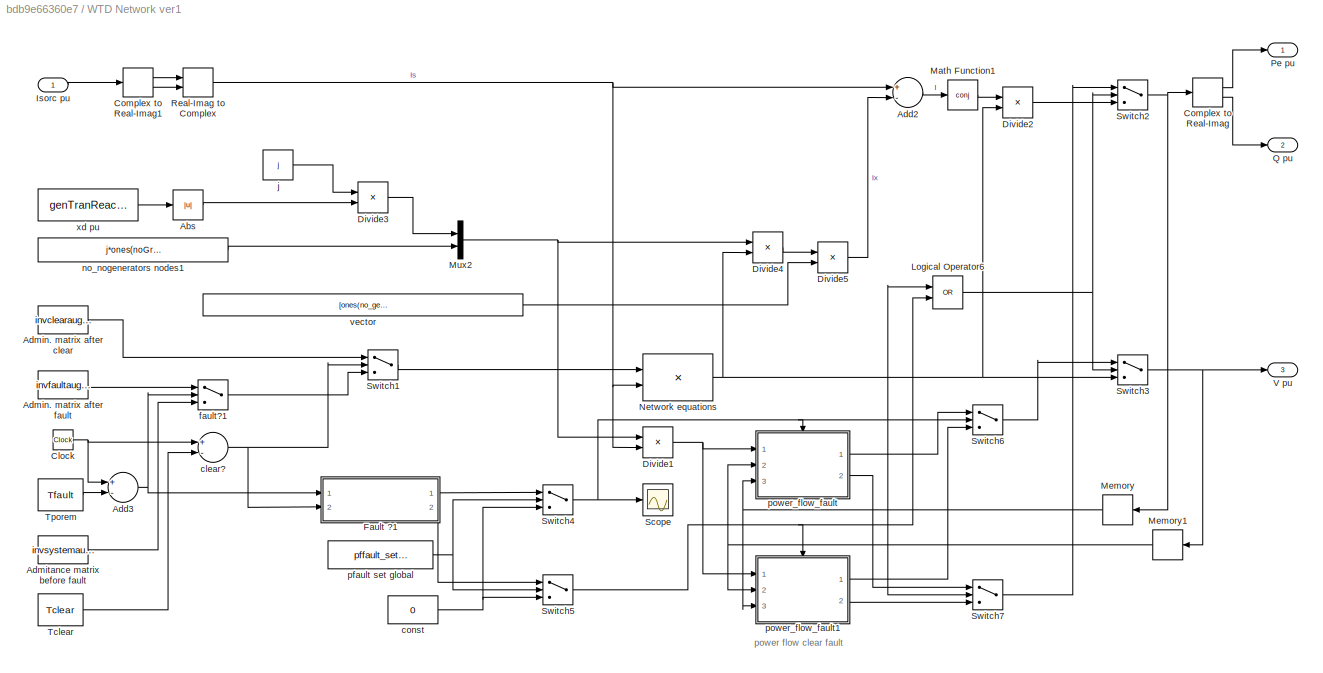
BLOCK [SubSystem] WTD Network ver1
  Ports = [1, 3]
  RequestExecContextInheritance = off
BLOCK [Abs] WTD Network ver1/Abs
  SaturateOnIntegerOverflow = off
BLOCK [Sum] WTD Network ver1/Add2
  InputSameDT = off
  Inputs = +-
  OutDataTypeStr = Inherit: Inherit via internal rule
  Ports = [2, 1]
  SaturateOnIntegerOverflow = off
BLOCK [Sum] WTD Network ver1/Add3
  InputSameDT = off
  Inputs = +-
  OutDataTypeStr = Inherit: Inherit via internal rule
  Ports = [2, 1]
  SaturateOnIntegerOverflow = off
BLOCK [Constant] WTD Network ver1/Admin. matrix after clear
  Value = invclearaugYMatrix
BLOCK [Constant] WTD Network ver1/Admin. matrix after fault
  Value = invfaultaugYMatrix
BLOCK [Constant] WTD Network ver1/Admitance matrix before fault
  Value = invsystemaugYMatrix
BLOCK [Clock] WTD Network ver1/Clock
BLOCK [ComplexToRealImag] WTD Network ver1/Complex to Real-Imag
  Ports = [1, 2]
BLOCK [ComplexToRealImag] WTD Network ver1/Complex to Real-Imag1
  Ports = [1, 2]
BLOCK [Product] WTD Network ver1/Divide1
  InputSameDT = off
  Inputs = **
  OutDataTypeStr = Inherit: Inherit via internal rule
  Ports = [2, 1]
  RndMeth = Floor
  SaturateOnIntegerOverflow = off
BLOCK [Product] WTD Network ver1/Divide2
  InputSameDT = off
  Inputs = **
  OutDataTypeStr = Inherit: Inherit via internal rule
  Ports = [2, 1]
  RndMeth = Floor
  SaturateOnIntegerOverflow = off
BLOCK [Product] WTD Network ver1/Divide3
  InputSameDT = off
  Inputs = **
  OutDataTypeStr = Inherit: Inherit via internal rule
  Ports = [2, 1]
  RndMeth = Floor
  SaturateOnIntegerOverflow = off
BLOCK [Product] WTD Network ver1/Divide4
  InputSameDT = off
  Inputs = /*
  OutDataTypeStr = Inherit: Inherit via internal rule
  Ports = [2, 1]
  RndMeth = Floor
  SaturateOnIntegerOverflow = off
BLOCK [Product] WTD Network ver1/Divide5
  InputSameDT = off
  Inputs = **
  OutDataTypeStr = Inherit: Inherit via internal rule
  Ports = [2, 1]
  RndMeth = Floor
  SaturateOnIntegerOverflow = off
BLOCK [SubSystem] WTD Network ver1/Fault ?1
  Ports = [2, 2]
  RequestExecContextInheritance = off
BLOCK [Outport] WTD Network ver1/Fault ?1/Clear enable
  IconDisplay = Port number
  Port = 2
BLOCK [Inport] WTD Network ver1/Fault ?1/Clear in
  IconDisplay = Port number
  Port = 2
BLOCK [Outport] WTD Network ver1/Fault ?1/Fault enable
  IconDisplay = Port number
BLOCK [Inport] WTD Network ver1/Fault ?1/Fault in
  IconDisplay = Port number
BLOCK [Logic] WTD Network ver1/Fault ?1/Logical Operator1
  AllPortsSameDT = off
  Operator = NOT
  OutDataTypeStr = boolean
  Ports = [1, 1]
BLOCK [Logic] WTD Network ver1/Fault ?1/Logical Operator2
  AllPortsSameDT = off
  OutDataTypeStr = boolean
  Ports = [2, 1]
BLOCK [Logic] WTD Network ver1/Fault ?1/Logical Operator5
  AllPortsSameDT = off
  Operator = NOT
  OutDataTypeStr = boolean
  Ports = [1, 1]
BLOCK [Logic] WTD Network ver1/Fault ?1/Logical Operator6
  AllPortsSameDT = off
  OutDataTypeStr = boolean
  Ports = [2, 1]
BLOCK [Memory] WTD Network ver1/Fault ?1/Memory
BLOCK [Memory] WTD Network ver1/Fault ?1/Memory1
BLOCK [Memory] WTD Network ver1/Fault ?1/Memory2
BLOCK [Memory] WTD Network ver1/Fault ?1/Memory3
BLOCK [Switch] WTD Network ver1/Fault ?1/fault?
  InputSameDT = off
  SaturateOnIntegerOverflow = off
BLOCK [Switch] WTD Network ver1/Fault ?1/fault?1
  InputSameDT = off
  SaturateOnIntegerOverflow = off
BLOCK [Constant] WTD Network ver1/Fault ?1/one const
BLOCK [Constant] WTD Network ver1/Fault ?1/one const1
BLOCK [Constant] WTD Network ver1/Fault ?1/zero const
  Value = 0
BLOCK [Constant] WTD Network ver1/Fault ?1/zero const1
  Value = 0
BLOCK [Inport] WTD Network ver1/Isorc pu
  IconDisplay = Port number
  OutDataTypeStr = double
BLOCK [Logic] WTD Network ver1/Logical Operator6
  AllPortsSameDT = off
  Operator = OR
  OutDataTypeStr = boolean
  Ports = [2, 1]
BLOCK [Math] WTD Network ver1/Math Function1
  Operator = conj
  Ports = [1, 1]
BLOCK [Memory] WTD Network ver1/Memory
  X0 = complexPower
BLOCK [Memory] WTD Network ver1/Memory1
  X0 = nodeVoltage
BLOCK [Mux] WTD Network ver1/Mux2
  DisplayOption = bar
  Inputs = 2
  Ports = [2, 1]
BLOCK [Product] WTD Network ver1/Network equations
  InputSameDT = off
  Inputs = **
  Multiplication = Matrix(*)
  OutDataTypeStr = Inherit: Inherit via internal rule
  Ports = [2, 1]
  RndMeth = Floor
  SaturateOnIntegerOverflow = off
BLOCK [Outport] WTD Network ver1/Pe pu
  IconDisplay = Port number
BLOCK [Outport] WTD Network ver1/Q pu
  IconDisplay = Port number
  Port = 2
BLOCK [RealImagToComplex] WTD Network ver1/Real-Imag to Complex
  Ports = [2, 1]
BLOCK [Scope] WTD Network ver1/Scope
  DataFormat = StructureWithTime
  Floating = off
  MaxDataPoints = 50000
  NumInputPorts = 1
  Ports = [1]
  SampleTime = 0
  ShowLegends = off
  ZoomMode = xonly
BLOCK [Switch] WTD Network ver1/Switch1
  InputSameDT = off
  SaturateOnIntegerOverflow = off
BLOCK [Switch] WTD Network ver1/Switch2
  Criteria = u2 ~= 0
  InputSameDT = off
  SaturateOnIntegerOverflow = off
BLOCK [Switch] WTD Network ver1/Switch3
  Criteria = u2 ~= 0
  InputSameDT = off
  SaturateOnIntegerOverflow = off
BLOCK [Switch] WTD Network ver1/Switch4
  Criteria = u2 > Threshold
  InputSameDT = off
  SaturateOnIntegerOverflow = off
BLOCK [Switch] WTD Network ver1/Switch5
  Criteria = u2 > Threshold
  InputSameDT = off
  SaturateOnIntegerOverflow = off
BLOCK [Switch] WTD Network ver1/Switch6
  Criteria = u2 ~= 0
  InputSameDT = off
  SaturateOnIntegerOverflow = off
BLOCK [Switch] WTD Network ver1/Switch7
  Criteria = u2 ~= 0
  InputSameDT = off
  SaturateOnIntegerOverflow = off
BLOCK [Constant] WTD Network ver1/Tclear
  Value = Tclear
BLOCK [Constant] WTD Network ver1/Tporem
  Value = Tfault
BLOCK [Outport] WTD Network ver1/V pu
  IconDisplay = Port number
  Port = 3
BLOCK [Sum] WTD Network ver1/clear?
  InputSameDT = off
  Inputs = +-
  OutDataTypeStr = Inherit: Inherit via internal rule
  Ports = [2, 1]
  SaturateOnIntegerOverflow = off
BLOCK [Constant] WTD Network ver1/const
  Value = 0
BLOCK [Switch] WTD Network ver1/fault?1
  InputSameDT = off
  SaturateOnIntegerOverflow = off
BLOCK [Constant] WTD Network ver1/j
  Value = j
BLOCK [Constant] WTD Network ver1/no_nogenerators nodes1
  Value = j*ones(noGridNodes-no_generators,1)
BLOCK [Constant] WTD Network ver1/pfault set global
  Value = pffault_set_global
BLOCK [SubSystem] WTD Network ver1/power_flow_fault
  Ports = [3, 2, 1]
  RequestExecContextInheritance = off
BLOCK [ComplexToRealImag] WTD Network ver1/power_flow_fault/Complex to Real-Imag
  Ports = [1, 2]
BLOCK [Demux] WTD Network ver1/power_flow_fault/Demux
  DisplayOption = bar
  Ports = [1, 4]
BLOCK [Inport] WTD Network ver1/power_flow_fault/E
  IconDisplay = Port number
BLOCK [EnablePort] WTD Network ver1/power_flow_fault/Enable
  Ports = []
BLOCK [Mux] WTD Network ver1/power_flow_fault/Mux
  DisplayOption = bar
  Inputs = 2
  Ports = [2, 1]
BLOCK [Mux] WTD Network ver1/power_flow_fault/Mux1
  DisplayOption = bar
  Inputs = 3
  Ports = [3, 1]
BLOCK [RealImagToComplex] WTD Network ver1/power_flow_fault/Real-Imag to Complex
  Ports = [2, 1]
BLOCK [RealImagToComplex] WTD Network ver1/power_flow_fault/Real-Imag to Complex1
  Ports = [2, 1]
BLOCK [S-Function] WTD Network ver1/power_flow_fault/S-Function
  EnableBusSupport = off
  FunctionName = s_power_flow_fault_gs_nr
  Parameters = genTranReactance,faultaugYMatrix,no_gen_co,no_gen_wi,noGridNodes,2
  Ports = [1, 1]
BLOCK [Inport] WTD Network ver1/power_flow_fault/Sin
  IconDisplay = Port number
  Port = 3
BLOCK [Outport] WTD Network ver1/power_flow_fault/Sout
  IconDisplay = Port number
  Port = 2
BLOCK [Inport] WTD Network ver1/power_flow_fault/V
  IconDisplay = Port number
  Port = 2
BLOCK [Outport] WTD Network ver1/power_flow_fault/Vout
  IconDisplay = Port number
BLOCK [SubSystem] WTD Network ver1/power_flow_fault1
  Ports = [3, 2, 1]
  RequestExecContextInheritance = off
BLOCK [ComplexToRealImag] WTD Network ver1/power_flow_fault1/Complex to Real-Imag
  Ports = [1, 2]
BLOCK [Demux] WTD Network ver1/power_flow_fault1/Demux
  DisplayOption = bar
  Ports = [1, 4]
BLOCK [Inport] WTD Network ver1/power_flow_fault1/E
  IconDisplay = Port number
BLOCK [EnablePort] WTD Network ver1/power_flow_fault1/Enable
  Ports = []
BLOCK [Mux] WTD Network ver1/power_flow_fault1/Mux
  DisplayOption = bar
  Inputs = 2
  Ports = [2, 1]
BLOCK [Mux] WTD Network ver1/power_flow_fault1/Mux1
  DisplayOption = bar
  Inputs = 3
  Ports = [3, 1]
BLOCK [RealImagToComplex] WTD Network ver1/power_flow_fault1/Real-Imag to Complex
  Ports = [2, 1]
BLOCK [RealImagToComplex] WTD Network ver1/power_flow_fault1/Real-Imag to Complex1
  Ports = [2, 1]
BLOCK [S-Function] WTD Network ver1/power_flow_fault1/S-Function1
  EnableBusSupport = off
  FunctionName = s_power_flow_fault_gs_nr
  Parameters = genTranReactance,clearaugYMatrix,no_gen_co,no_gen_wi,noGridNodes,2
  Ports = [1, 1]
BLOCK [Inport] WTD Network ver1/power_flow_fault1/Sin
  IconDisplay = Port number
  Port = 3
BLOCK [Outport] WTD Network ver1/power_flow_fault1/Sout
  IconDisplay = Port number
  Port = 2
BLOCK [Inport] WTD Network ver1/power_flow_fault1/V
  IconDisplay = Port number
  Port = 2
BLOCK [Outport] WTD Network ver1/power_flow_fault1/Vout
  IconDisplay = Port number
BLOCK [Constant] WTD Network ver1/vector
  Value = [ones(no_generators,1);zeros(noGridNodes-no_generators,1)]
  VectorParams1D = off
BLOCK [Constant] WTD Network ver1/xd pu
  Value = genTranReactance'
BLOCK [SubSystem] WTD PLL ver1
  Ports = [1, 1]
  RequestExecContextInheritance = off
BLOCK [Sum] WTD PLL ver1/Add1
  InputSameDT = off
  OutDataTypeStr = Inherit: Inherit via internal rule
  Ports = [2, 1]
  SaturateOnIntegerOverflow = off
BLOCK [Sum] WTD PLL ver1/Add3
  InputSameDT = off
  OutDataTypeStr = Inherit: Inherit via internal rule
  Ports = [2, 1]
  SaturateOnIntegerOverflow = off
BLOCK [StateSpace] WTD PLL ver1/Analog low pass Butterworth filter, n=4, Wn=25
  A = [-46.194,-25,0,0;25,0,0,0;0,25,-19.134,-25;0,0,25,0]
  B = [25;0;0;0]
  C = [0,0,0,1]
  D = 0
  Ports = [1, 1]
  X0 = [0 1 0 1]
BLOCK [ComplexToRealImag] WTD PLL ver1/Complex to Real-Imag
  Ports = [1, 2]
BLOCK [Constant] WTD PLL ver1/Constant1
BLOCK [Constant] WTD PLL ver1/Constant2
BLOCK [Constant] WTD PLL ver1/Constant3
  Value = 2
BLOCK [Product] WTD PLL ver1/Divide1
  InputSameDT = off
  Inputs = **
  Multiplication = Matrix(*)
  OutDataTypeStr = Inherit: Inherit via internal rule
  Ports = [2, 1]
  RndMeth = Floor
  SaturateOnIntegerOverflow = off
BLOCK [Gain] WTD PLL ver1/Gain1
  Gain = KpPLL/wbase
  OutDataTypeStr = Inherit: Inherit via internal rule
  ParamDataTypeStr = Inherit: Inherit via internal rule
  SaturateOnIntegerOverflow = off
BLOCK [Gain] WTD PLL ver1/Gain2
  Gain = KiPLL
  OutDataTypeStr = Inherit: Inherit via internal rule
  ParamDataTypeStr = Inherit: Inherit via internal rule
  SaturateOnIntegerOverflow = off
BLOCK [Gain] WTD PLL ver1/Gain3
  Gain = wbase
  OutDataTypeStr = Inherit: Inherit via internal rule
  ParamDataTypeStr = Inherit: Inherit via internal rule
  SaturateOnIntegerOverflow = off
BLOCK [Gain] WTD PLL ver1/Gain4
  Gain = 1/wbase
  OutDataTypeStr = Inherit: Inherit via internal rule
  ParamDataTypeStr = Inherit: Inherit via internal rule
  SaturateOnIntegerOverflow = off
BLOCK [Gain] WTD PLL ver1/Gain5
  Gain = 1/wbase
  OutDataTypeStr = Inherit: Inherit via internal rule
  ParamDataTypeStr = Inherit: Inherit via internal rule
  SaturateOnIntegerOverflow = off
BLOCK [Integrator] WTD PLL ver1/Integrator1
  InitialConditionSource = external
  Ports = [2, 1]
BLOCK [Integrator] WTD PLL ver1/Integrator2
  InitialConditionSource = external
  Ports = [2, 1]
BLOCK [Terminator] WTD PLL ver1/Terminator
BLOCK [MultiPortSwitch] WTD PLL ver1/V1
  InputSameDT = off
  Inputs = 1
  Ports = [2, 1]
  SaturateOnIntegerOverflow = off
BLOCK [MultiPortSwitch] WTD PLL ver1/V2
  InputSameDT = off
  Inputs = 1
  Ports = [2, 1]
  SaturateOnIntegerOverflow = off
BLOCK [Inport] WTD PLL ver1/Valpha_beta
  IconDisplay = Port number
BLOCK [Concatenate] WTD PLL ver1/Vector Concatenate
  Ports = [2, 1]
BLOCK [SubSystem] WTD PLL ver1/alpa_beta to dq
  Ports = [1, 1]
  RequestExecContextInheritance = off
BLOCK [Gain] WTD PLL ver1/alpa_beta to dq/Gain1
  OutDataTypeStr = Inherit: Inherit via internal rule
  ParamDataTypeStr = Inherit: Inherit via internal rule
  SaturateOnIntegerOverflow = off
BLOCK [Gain] WTD PLL ver1/alpa_beta to dq/Gain2
  Gain = -1
  OutDataTypeStr = Inherit: Inherit via internal rule
  ParamDataTypeStr = Inherit: Inherit via internal rule
  SaturateOnIntegerOverflow = off
BLOCK [Concatenate] WTD PLL ver1/alpa_beta to dq/Matrix Concatenate
  Mode = Multidimensional array
  Ports = [2, 1]
BLOCK [Reshape] WTD PLL ver1/alpa_beta to dq/Reshape
  OutputDimensionality = Customize
  OutputDimensions = [1,2]
  Ports = [1, 1]
BLOCK [Reshape] WTD PLL ver1/alpa_beta to dq/Reshape1
  OutputDimensionality = Customize
  OutputDimensions = [1,2]
  Ports = [1, 1]
BLOCK [Trigonometry] WTD PLL ver1/alpa_beta to dq/Trigonometric Function
  Operator = cos
  Ports = [1, 1]
BLOCK [Trigonometry] WTD PLL ver1/alpa_beta to dq/Trigonometric Function1
  Ports = [1, 1]
BLOCK [Trigonometry] WTD PLL ver1/alpa_beta to dq/Trigonometric Function2
  Ports = [1, 1]
BLOCK [Trigonometry] WTD PLL ver1/alpa_beta to dq/Trigonometric Function3
  Operator = cos
  Ports = [1, 1]
BLOCK [Concatenate] WTD PLL ver1/alpa_beta to dq/Vector Concatenate
  Ports = [2, 1]
BLOCK [Concatenate] WTD PLL ver1/alpa_beta to dq/Vector Concatenate1
  Ports = [2, 1]
BLOCK [Inport] WTD PLL ver1/alpa_beta to dq/angle(V)
  IconDisplay = Port number
BLOCK [Outport] WTD PLL ver1/alpa_beta to dq/matT
  IconDisplay = Port number
BLOCK [Constant] WTD PLL ver1/delta_init
  Value = delta_init_vec(me_node)
BLOCK [Outport] WTD PLL ver1/w pu
  IconDisplay = Port number
BLOCK [Constant] WTD PLL ver1/w_init
  Value = 0
BLOCK [SubSystem] WTD Rotor ver1
  Ports = [4, 2]
  RequestExecContextInheritance = off
BLOCK [Constant] WTD Rotor ver1/Constant
BLOCK [Gain] WTD Rotor ver1/F1
  Gain = D
BLOCK [Constant] WTD Rotor ver1/H
  Value = H
BLOCK [Integrator] WTD Rotor ver1/Integrator
  InitialCondition = dwo
  InitialConditionSource = external
  Ports = [2, 1]
BLOCK [Integrator] WTD Rotor ver1/Integrator2
  InitialCondition = tho
  InitialConditionSource = external
  Ports = [2, 1]
BLOCK [Product] WTD Rotor ver1/Product1
  Inputs = */
  Ports = [2, 1]
  RndMeth = Floor
BLOCK [Product] WTD Rotor ver1/Product2
  Inputs = */
  Ports = [2, 1]
  RndMeth = Floor
BLOCK [Sum] WTD Rotor ver1/Sum1
  Inputs = +-
  Ports = [2, 1]
BLOCK [Sum] WTD Rotor ver1/Sum2
  Inputs = +-
  Ports = [2, 1]
BLOCK [Sum] WTD Rotor ver1/Sum3
  Ports = [2, 1]
BLOCK [Outport] WTD Rotor ver1/angle(elrad)
  IconDisplay = Port number
  InitialOutput = 0
BLOCK [Inport] WTD Rotor ver1/deltaPe pu mach 
  IconDisplay = Port number
  PortDimensions = 1
BLOCK [Inport] WTD Rotor ver1/deltaPm pu mach
  IconDisplay = Port number
  Port = 2
  PortDimensions = 1
BLOCK [Outport] WTD Rotor ver1/delta_w pu 
  IconDisplay = Port number
  InitialOutput = 0
  Port = 2
BLOCK [Inport] WTD Rotor ver1/delta_w_init pu
  IconDisplay = Port number
  Port = 4
  PortDimensions = 1
BLOCK [Gain] WTD Rotor ver1/gain
  Gain = 2
BLOCK [Inport] WTD Rotor ver1/initial_angle(elrad)
  IconDisplay = Port number
  Port = 3
  PortDimensions = 1
BLOCK [Gain] WTD Rotor ver1/wbase
  Gain = wbase
BLOCK [SubSystem] WTD Tgov1 ver1
  Ports = [2, 1]
  RequestExecContextInheritance = off
BLOCK [Sum] WTD Tgov1 ver1/Add
  InputSameDT = off
  Inputs = +-
  OutDataTypeStr = Inherit: Inherit via internal rule
  Ports = [2, 1]
  SaturateOnIntegerOverflow = off
BLOCK [Sum] WTD Tgov1 ver1/Add1
  InputSameDT = off
  Inputs = +-
  OutDataTypeStr = Inherit: Inherit via internal rule
  Ports = [2, 1]
  SaturateOnIntegerOverflow = off
BLOCK [Sum] WTD Tgov1 ver1/Add2
  InputSameDT = off
  Inputs = ++-
  OutDataTypeStr = Inherit: Inherit via internal rule
  Ports = [3, 1]
  SaturateOnIntegerOverflow = off
BLOCK [Sum] WTD Tgov1 ver1/Add3
  InputSameDT = off
  Inputs = +-
  OutDataTypeStr = Inherit: Inherit via internal rule
  Ports = [2, 1]
  SaturateOnIntegerOverflow = off
BLOCK [Gain] WTD Tgov1 ver1/Gain
  Gain = 1/R2
  OutDataTypeStr = Inherit: Inherit via internal rule
  ParamDataTypeStr = Inherit: Inherit via internal rule
  SaturateOnIntegerOverflow = off
BLOCK [Gain] WTD Tgov1 ver1/Gain1
  Gain = 1/T12
  OutDataTypeStr = Inherit: Inherit via internal rule
  ParamDataTypeStr = Inherit: Inherit via internal rule
  SaturateOnIntegerOverflow = off
BLOCK [Gain] WTD Tgov1 ver1/Gain2
  Gain = 1/T32
  OutDataTypeStr = Inherit: Inherit via internal rule
  ParamDataTypeStr = Inherit: Inherit via internal rule
  SaturateOnIntegerOverflow = off
BLOCK [Gain] WTD Tgov1 ver1/Gain3
  Gain = T22
  OutDataTypeStr = Inherit: Inherit via internal rule
  ParamDataTypeStr = Inherit: Inherit via internal rule
  SaturateOnIntegerOverflow = off
BLOCK [Gain] WTD Tgov1 ver1/Gain4
  Gain = Dt2
  OutDataTypeStr = Inherit: Inherit via internal rule
  ParamDataTypeStr = Inherit: Inherit via internal rule
  SaturateOnIntegerOverflow = off
BLOCK [Gain] WTD Tgov1 ver1/Gain5
  Gain = R2
  OutDataTypeStr = Inherit: Inherit via internal rule
  ParamDataTypeStr = Inherit: Inherit via internal rule
  SaturateOnIntegerOverflow = off
BLOCK [Integrator] WTD Tgov1 ver1/Integrator
  InitialConditionSource = external
  LimitOutput = on
  LowerSaturationLimit = Vmin2
  Ports = [2, 1]
  UpperSaturationLimit = Vmax2
BLOCK [Integrator] WTD Tgov1 ver1/Integrator1
  InitialConditionSource = external
  Ports = [2, 1]
BLOCK [Outport] WTD Tgov1 ver1/PMECH(pu mach)
  IconDisplay = Port number
BLOCK [Inport] WTD Tgov1 ver1/Pinit(pu mach)
  IconDisplay = Port number
BLOCK [Inport] WTD Tgov1 ver1/delta_w pu
  IconDisplay = Port number
  Port = 2
BLOCK [SubSystem] WTD Thermo ver1
  Ports = [1, 3]
  RequestExecContextInheritance = off
BLOCK [Sum] WTD Thermo ver1/Add4
  InputSameDT = off
  Inputs = +-
  OutDataTypeStr = Inherit: Inherit via internal rule
  Ports = [2, 1]
  SaturateOnIntegerOverflow = off
BLOCK [Sum] WTD Thermo ver1/Add5
  InputSameDT = off
  Inputs = +-
  OutDataTypeStr = Inherit: Inherit via internal rule
  Ports = [2, 1]
  SaturateOnIntegerOverflow = off
BLOCK [Gain] WTD Thermo ver1/Gain1
  Gain = 1/Sbasem2
  OutDataTypeStr = Inherit: Inherit via internal rule
  ParamDataTypeStr = Inherit: Inherit via internal rule
  SaturateOnIntegerOverflow = off
BLOCK [Gain] WTD Thermo ver1/Gain2
  Gain = Sbasesys/Sbasem2
  OutDataTypeStr = Inherit: Inherit via internal rule
  ParamDataTypeStr = Inherit: Inherit via internal rule
  SaturateOnIntegerOverflow = off
BLOCK [Gain] WTD Thermo ver1/Gain3
  Gain = Sbasem2/Sbasesys
  OutDataTypeStr = Inherit: Inherit via internal rule
  ParamDataTypeStr = Inherit: Inherit via internal rule
  SaturateOnIntegerOverflow = off
BLOCK [Inport] WTD Thermo ver1/Pe pu
  IconDisplay = Port number
BLOCK [Outport] WTD Thermo ver1/Pm pu
  IconDisplay = Port number
BLOCK [Constant] WTD Thermo ver1/Pm_init
  Value = Pm_init_vec(co_node)
BLOCK [SubSystem] WTD Thermo ver1/Rotor//Load1
  Ports = [4, 2]
  RequestExecContextInheritance = off
BLOCK [Constant] WTD Thermo ver1/Rotor//Load1/Constant
BLOCK [Gain] WTD Thermo ver1/Rotor//Load1/F1
  Gain = D2
BLOCK [Constant] WTD Thermo ver1/Rotor//Load1/H
  Value = H2
BLOCK [Integrator] WTD Thermo ver1/Rotor//Load1/Integrator
  InitialCondition = dwo
  InitialConditionSource = external
  Ports = [2, 1]
BLOCK [Integrator] WTD Thermo ver1/Rotor//Load1/Integrator2
  InitialCondition = tho
  InitialConditionSource = external
  Ports = [2, 1]
BLOCK [Product] WTD Thermo ver1/Rotor//Load1/Product1
  Inputs = */
  Ports = [2, 1]
  RndMeth = Floor
BLOCK [Product] WTD Thermo ver1/Rotor//Load1/Product2
  Inputs = */
  Ports = [2, 1]
  RndMeth = Floor
BLOCK [Sum] WTD Thermo ver1/Rotor//Load1/Sum1
  Inputs = +-
  Ports = [2, 1]
BLOCK [Sum] WTD Thermo ver1/Rotor//Load1/Sum2
  Inputs = +-
  Ports = [2, 1]
BLOCK [Sum] WTD Thermo ver1/Rotor//Load1/Sum3
  Ports = [2, 1]
BLOCK [Inport] WTD Thermo ver1/Rotor//Load1/angle(E)(elrad)
  IconDisplay = Port number
  Port = 3
  PortDimensions = 1
BLOCK [Outport] WTD Thermo ver1/Rotor//Load1/delta(elrad)
  IconDisplay = Port number
  InitialOutput = 0
BLOCK [Inport] WTD Thermo ver1/Rotor//Load1/deltaPe(pu) 
  IconDisplay = Port number
  PortDimensions = 1
BLOCK [Inport] WTD Thermo ver1/Rotor//Load1/deltaPm(pu)
  IconDisplay = Port number
  Port = 2
  PortDimensions = 1
BLOCK [Outport] WTD Thermo ver1/Rotor//Load1/delta_w(pu)
  IconDisplay = Port number
  InitialOutput = 0
  Port = 2
BLOCK [Inport] WTD Thermo ver1/Rotor//Load1/deltawro
  IconDisplay = Port number
  Port = 4
  PortDimensions = 1
BLOCK [Gain] WTD Thermo ver1/Rotor//Load1/gain
  Gain = 2
BLOCK [Gain] WTD Thermo ver1/Rotor//Load1/wbase
  Gain = wbase
BLOCK [SubSystem] WTD Thermo ver1/TGOV1
  Ports = [2, 1]
  RequestExecContextInheritance = off
BLOCK [Sum] WTD Thermo ver1/TGOV1/Add
  InputSameDT = off
  Inputs = +-
  OutDataTypeStr = Inherit: Inherit via internal rule
  Ports = [2, 1]
  SaturateOnIntegerOverflow = off
BLOCK [Sum] WTD Thermo ver1/TGOV1/Add1
  InputSameDT = off
  Inputs = +-
  OutDataTypeStr = Inherit: Inherit via internal rule
  Ports = [2, 1]
  SaturateOnIntegerOverflow = off
BLOCK [Sum] WTD Thermo ver1/TGOV1/Add2
  InputSameDT = off
  Inputs = ++-
  OutDataTypeStr = Inherit: Inherit via internal rule
  Ports = [3, 1]
  SaturateOnIntegerOverflow = off
BLOCK [Sum] WTD Thermo ver1/TGOV1/Add3
  InputSameDT = off
  Inputs = +-
  OutDataTypeStr = Inherit: Inherit via internal rule
  Ports = [2, 1]
  SaturateOnIntegerOverflow = off
BLOCK [Gain] WTD Thermo ver1/TGOV1/Gain
  Gain = 1/R2
  OutDataTypeStr = Inherit: Inherit via internal rule
  ParamDataTypeStr = Inherit: Inherit via internal rule
  SaturateOnIntegerOverflow = off
BLOCK [Gain] WTD Thermo ver1/TGOV1/Gain1
  Gain = 1/T12
  OutDataTypeStr = Inherit: Inherit via internal rule
  ParamDataTypeStr = Inherit: Inherit via internal rule
  SaturateOnIntegerOverflow = off
BLOCK [Gain] WTD Thermo ver1/TGOV1/Gain2
  Gain = 1/T32
  OutDataTypeStr = Inherit: Inherit via internal rule
  ParamDataTypeStr = Inherit: Inherit via internal rule
  SaturateOnIntegerOverflow = off
BLOCK [Gain] WTD Thermo ver1/TGOV1/Gain3
  Gain = T22
  OutDataTypeStr = Inherit: Inherit via internal rule
  ParamDataTypeStr = Inherit: Inherit via internal rule
  SaturateOnIntegerOverflow = off
BLOCK [Gain] WTD Thermo ver1/TGOV1/Gain4
  Gain = Dt2
  OutDataTypeStr = Inherit: Inherit via internal rule
  ParamDataTypeStr = Inherit: Inherit via internal rule
  SaturateOnIntegerOverflow = off
BLOCK [Gain] WTD Thermo ver1/TGOV1/Gain5
  Gain = R2
  OutDataTypeStr = Inherit: Inherit via internal rule
  ParamDataTypeStr = Inherit: Inherit via internal rule
  SaturateOnIntegerOverflow = off
BLOCK [Integrator] WTD Thermo ver1/TGOV1/Integrator
  InitialConditionSource = external
  LimitOutput = on
  LowerSaturationLimit = Vmin2
  Ports = [2, 1]
  UpperSaturationLimit = Vmax2
BLOCK [Integrator] WTD Thermo ver1/TGOV1/Integrator1
  InitialConditionSource = external
  Ports = [2, 1]
BLOCK [Outport] WTD Thermo ver1/TGOV1/PMECH
  IconDisplay = Port number
BLOCK [Inport] WTD Thermo ver1/TGOV1/Pinit (pu mach)
  IconDisplay = Port number
BLOCK [Inport] WTD Thermo ver1/TGOV1/deltaw
  IconDisplay = Port number
  Port = 2
BLOCK [Outport] WTD Thermo ver1/angle(elrad)
  IconDisplay = Port number
  Port = 2
BLOCK [Constant] WTD Thermo ver1/delta_init (elrad)
  Value = delta_init_vec(co_node)
BLOCK [Outport] WTD Thermo ver1/delta_w pu
  IconDisplay = Port number
  Port = 3
BLOCK [Constant] WTD Thermo ver1/delta_w2
  Value = 0
BLOCK [SubSystem] WTD Vec_ sig_sel ver1
  Ports = [1, 1]
  RequestExecContextInheritance = off
BLOCK [MultiPortSwitch] WTD Vec_ sig_sel ver1/V7
  InputSameDT = off
  Inputs = 1
  Ports = [2, 1]
  SaturateOnIntegerOverflow = off
BLOCK [Inport] WTD Vec_ sig_sel ver1/in
  IconDisplay = Port number
BLOCK [Outport] WTD Vec_ sig_sel ver1/out
  IconDisplay = Port number
BLOCK [Constant] WTD Vec_ sig_sel ver1/signal node
  Value = node
BLOCK [SubSystem] WTD Wind Turbine ver1_1
  Ports = [3, 3]
  RequestExecContextInheritance = off
BLOCK [Gain] WTD Wind Turbine ver1_1/1//cp_nom
  Gain = 1/cp_nom
BLOCK [Gain] WTD Wind Turbine ver1_1/1//wind_base
  Gain = 1/wind_base
BLOCK [Saturate] WTD Wind Turbine ver1_1/Avoid division by zero 
  InputPortMap = u0
  LowerLimit = 1e-6
  Ports = [1, 1]
  UpperLimit = 1e6
BLOCK [Saturate] WTD Wind Turbine ver1_1/Avoid division by zero 1
  InputPortMap = u0
  LowerLimit = 1e-6
  Ports = [1, 1]
  UpperLimit = 1e6
BLOCK [Outport] WTD Wind Turbine ver1_1/Cp
  IconDisplay = Port number
  Port = 2
BLOCK [Product] WTD Wind Turbine ver1_1/Product
  InputSameDT = off
  Inputs = /*
  Ports = [2, 1]
  RndMeth = Floor
BLOCK [Product] WTD Wind Turbine ver1_1/Product 
  InputSameDT = off
  Ports = [2, 1]
  RndMeth = Floor
BLOCK [Product] WTD Wind Turbine ver1_1/Product1
  InputSameDT = off
  Inputs = /*
  Ports = [2, 1]
  RndMeth = Floor
BLOCK [Saturate] WTD Wind Turbine ver1_1/Saturation1
  InputPortMap = u0
  LowerLimit = 1e-6
  Ports = [1, 1]
  UpperLimit = inf
BLOCK [Outport] WTD Wind Turbine ver1_1/Tmech (pu)
  IconDisplay = Port number
BLOCK [SubSystem] WTD Wind Turbine ver1_1/cp(lambda,beta)1
  Ports = [2, 1]
  RequestExecContextInheritance = off
BLOCK [Fcn] WTD Wind Turbine ver1_1/cp(lambda,beta)1/Fcn
  Expr = 1/(1/(u[1]+0.08*u[2])-0.035/(u[2]^3+1))
BLOCK [Fcn] WTD Wind Turbine ver1_1/cp(lambda,beta)1/Fcn1
  Expr = c1*(c2/u[2]-c3*u[3]-c4)*exp(-c5/u[2])+c6*u[1]
BLOCK [Mux] WTD Wind Turbine ver1_1/cp(lambda,beta)1/Mux
  DisplayOption = bar
  Inputs = 2
  Ports = [2, 1]
BLOCK [Mux] WTD Wind Turbine ver1_1/cp(lambda,beta)1/Mux1
  DisplayOption = bar
  Inputs = 3
  Ports = [3, 1]
BLOCK [Inport] WTD Wind Turbine ver1_1/cp(lambda,beta)1/beta
  IconDisplay = Port number
  Port = 2
BLOCK [Outport] WTD Wind Turbine ver1_1/cp(lambda,beta)1/cp
  IconDisplay = Port number
BLOCK [Inport] WTD Wind Turbine ver1_1/cp(lambda,beta)1/lambda
  IconDisplay = Port number
BLOCK [Inport] WTD Wind Turbine ver1_1/generator speed (pu)
  IconDisplay = Port number
BLOCK [Outport] WTD Wind Turbine ver1_1/lambda
  IconDisplay = Port number
  Port = 3
BLOCK [Gain] WTD Wind Turbine ver1_1/lambda_nom
  Gain = lambda_nom
BLOCK [Inport] WTD Wind Turbine ver1_1/pitch angle (deg)
  IconDisplay = Port number
  Port = 2
BLOCK [Gain] WTD Wind Turbine ver1_1/pu->pu 
  Gain = 1/speed_nom
BLOCK [Gain] WTD Wind Turbine ver1_1/pu->pu1
  Gain = P_wind_base*Pnom/Pelec_base
BLOCK [Inport] WTD Wind Turbine ver1_1/wind speed (m//s)
  IconDisplay = Port number
  Port = 3
BLOCK [Fcn] WTD Wind Turbine ver1_1/wind_speed^3
  Expr = u(1)^3
BLOCK [SubSystem] WTD zero_gen ver1
  Ports = [0, 1]
  RequestExecContextInheritance = off
BLOCK [ComplexToRealImag] WTD zero_gen ver1/Complex to Real-Imag
  Ports = [1, 2]
BLOCK [Constant] WTD zero_gen ver1/Constant
  Value = 0
BLOCK [Outport] WTD zero_gen ver1/Isorc
  IconDisplay = Port number
BLOCK [RealImagToComplex] WTD zero_gen ver1/Real-Imag to Complex
  Ports = [2, 1]
ANNOTATION WTD DFIG_ver1: Current of the source generator
ANNOTATION WTD DFIG_ver1: Pelec active power from Isorc generator
ANNOTATION WTD DFIG_ver1: Pgen = Pelec
ANNOTATION WTD DFIG_ver1: Pgen = Pelec active power to network
ANNOTATION WTD DFIG_ver1: Qelec reactive power from Isorc generator
ANNOTATION WTD DFIG_ver1: Qgen = Qelec - Vterm^2/(-jXsec)
ANNOTATION WTD DFIG_ver1: Qgen reactive power to network
ANNOTATION WTD DFIG_ver1/Converter control model: Measurements
ANNOTATION WTD DFIG_ver1/Converter control model/Reactive Power Control/Wind Control Emulator: PI controller
ANNOTATION WTD DFIG_ver1/Converter control model/Reactive Power Control/Wind Control Emulator: Q Droop function model
ANNOTATION WTD DFIG_ver1/Generator_converter_model: ANTI WINDUP WITH ADJUSTABLE LIMIT
ANNOTATION WTD DFIG_ver1/Generator_converter_model: Pelec output active power from Isorc generator
ANNOTATION WTD DFIG_ver1/Generator_converter_model: Qelec reactive power from Isorc generator
ANNOTATION WTD DFIG_ver1/Generator_converter_model/ Transformation1: Isorc = ((P+jQ)/V)*
ANNOTATION WTD DFIG_ver1/Generator_converter_model/High voltage reactive current management: -IqVt
ANNOTATION WTD DFIG_ver1/Generator_converter_model/High voltage reactive current management: signs reversed (in comparison to Ref. 71)
ANNOTATION WTD DFIG_ver1/WT_model: APC
ANNOTATION WTD DFIG_ver1/WT_model: WIND INERTIA
ANNOTATION WTD DFIG_ver1/WT_model/Rotor model: deltaw(pu)
ANNOTATION WTD DFIG_ver1/WT_model/WindInertia Control: dbwi
ANNOTATION WTD Hydro ver1: HYDRO 1
ANNOTATION WTD Hydro ver1/HYDRO turbine _HYGOV: FILTER_COMPENSATOR_PILOT VALVE
ANNOTATION WTD Hydro ver1/HYDRO turbine _HYGOV: GATE SERVO
ANNOTATION WTD Hydro ver1/HYDRO turbine _HYGOV: PSS MODEL: HGOV
ANNOTATION WTD Hydro ver1/HYDRO turbine _HYGOV: TURBINA
ANNOTATION WTD Hydro ver1/Rotor//Load2: This subsystem models the mechanical part of the synchronous machine (Kundur)
ANNOTATION WTD Hygov ver1: FILTER_COMPENSATOR_PILOT VALVE
ANNOTATION WTD Hygov ver1: GATE SERVO
ANNOTATION WTD Hygov ver1: PSS MODEL: HGOV
ANNOTATION WTD Hygov ver1: TURBINA
ANNOTATION WTD Network ver1: power flow clear fault
ANNOTATION WTD PLL ver1: Initial conditions: [0 1 0 1]
ANNOTATION WTD PLL ver1: PLL za odredjivanje frekvencije
ANNOTATION WTD PLL ver1: theta
ANNOTATION WTD PLL ver1: w
ANNOTATION WTD Rotor ver1: This subsystem models the mechanical part of the synchronous machine (Kundur)
ANNOTATION WTD Tgov1 ver1: MODEL PSS: TGOV1
ANNOTATION WTD Thermo ver1: STEAM 2
ANNOTATION WTD Thermo ver1/Rotor//Load1: This subsystem models the mechanical part of the synchronous machine (Kundur)
ANNOTATION WTD Thermo ver1/TGOV1: MODEL PSS: TGOV1
LINE WTD DFIG_ver1/Abs:1 -> WTD DFIG_ver1/Divide2:2
LINE WTD DFIG_ver1/Aux_Test_Sig:1 -> WTD DFIG_ver1/Converter control model:11
LINE WTD DFIG_ver1/Aux_f_sig:1 -> WTD DFIG_ver1/WT_model:5
NET WTD DFIG_ver1/Calculation of Power to network /Add1:1 -> WTD DFIG_ver1/Calculation of Power to network /Complex to Real-Imag2:1, WTD DFIG_ver1/Calculation of Power to network /Sgen:1
LINE WTD DFIG_ver1/Calculation of Power to network /Complex to Real-Imag1:1 -> WTD DFIG_ver1/Calculation of Power to network /Pgen=Pelec:1
LINE WTD DFIG_ver1/Calculation of Power to network /Complex to Real-Imag2:1 -> WTD DFIG_ver1/Calculation of Power to network /Qgen:1
LINE WTD DFIG_ver1/Calculation of Power to network /Divide1:1 -> WTD DFIG_ver1/Calculation of Power to network /Add1:2
LINE WTD DFIG_ver1/Calculation of Power to network /Divide4:1 -> WTD DFIG_ver1/Calculation of Power to network /Gain1:1
NET WTD DFIG_ver1/Calculation of Power to network /Divide:1 -> WTD DFIG_ver1/Calculation of Power to network /Add1:1, WTD DFIG_ver1/Calculation of Power to network /Complex to Real-Imag1:1
LINE WTD DFIG_ver1/Calculation of Power to network /Gain1:1 -> WTD DFIG_ver1/Calculation of Power to network /Divide1:2
LINE WTD DFIG_ver1/Calculation of Power to network /Isorc:1 -> WTD DFIG_ver1/Calculation of Power to network /Math Function:1
LINE WTD DFIG_ver1/Calculation of Power to network /Math Function1:1 -> WTD DFIG_ver1/Calculation of Power to network /Divide1:1
LINE WTD DFIG_ver1/Calculation of Power to network /Math Function:1 -> WTD DFIG_ver1/Calculation of Power to network /Divide:2
LINE WTD DFIG_ver1/Calculation of Power to network /Vterm:1 -> WTD DFIG_ver1/Calculation of Power to network /Divide:1
LINE WTD DFIG_ver1/Calculation of Power to network /Xsec:1 -> WTD DFIG_ver1/Calculation of Power to network /Divide4:1
LINE WTD DFIG_ver1/Calculation of Power to network /absVterm:1 -> WTD DFIG_ver1/Calculation of Power to network /Math Function1:1
LINE WTD DFIG_ver1/Calculation of Power to network /j:1 -> WTD DFIG_ver1/Calculation of Power to network /Divide4:2
NET WTD DFIG_ver1/Calculation of Power to network :1 -> WTD DFIG_ver1/Converter control model:5, WTD DFIG_ver1/Divide2:1, WTD DFIG_ver1/Scaling1:1, WTD DFIG_ver1/WT_model:2
NET WTD DFIG_ver1/Calculation of Power to network :2 -> WTD DFIG_ver1/Converter control model:6, WTD DFIG_ver1/Scaling2:1
LINE WTD DFIG_ver1/Calculation of Power to network :3 -> WTD DFIG_ver1/Abs:1
LINE WTD DFIG_ver1/Complex to Magnitude-Angle2:1 -> WTD DFIG_ver1/Converter control model:1
LINE WTD DFIG_ver1/Complex to Magnitude-Angle3:1 -> WTD DFIG_ver1/Converter control model:2
NET WTD DFIG_ver1/Complex to Magnitude-Angle:1 -> WTD DFIG_ver1/Calculation of Power to network :1, WTD DFIG_ver1/Converter control model:7
LINE WTD DFIG_ver1/Converter control model/Aux_Test_Sig:1 -> WTD DFIG_ver1/Converter control model/Electrical Control:5
LINE WTD DFIG_ver1/Converter control model/Electrical Control/Add1:1 -> WTD DFIG_ver1/Converter control model/Electrical Control/Eqcmd:1
NET WTD DFIG_ver1/Converter control model/Electrical Control/Add5:1 -> WTD DFIG_ver1/Converter control model/Electrical Control/Gain1:1, WTD DFIG_ver1/Converter control model/Electrical Control/Gain2:1
LINE WTD DFIG_ver1/Converter control model/Electrical Control/Add:1 -> WTD DFIG_ver1/Converter control model/Electrical Control/Gain:1
LINE WTD DFIG_ver1/Converter control model/Electrical Control/Aux_Test_Sig:1 -> WTD DFIG_ver1/Converter control model/Electrical Control/Add5:1
LINE WTD DFIG_ver1/Converter control model/Electrical Control/Divide:1 -> WTD DFIG_ver1/Converter control model/Electrical Control/IPmax limit:1
LINE WTD DFIG_ver1/Converter control model/Electrical Control/Gain1:1 -> WTD DFIG_ver1/Converter control model/Electrical Control/s1cc:1
LINE WTD DFIG_ver1/Converter control model/Electrical Control/Gain2:1 -> WTD DFIG_ver1/Converter control model/Electrical Control/Add1:1
LINE WTD DFIG_ver1/Converter control model/Electrical Control/Gain:1 -> WTD DFIG_ver1/Converter control model/Electrical Control/s0cc:1
LINE WTD DFIG_ver1/Converter control model/Electrical Control/IPmax limit:1 -> WTD DFIG_ver1/Converter control model/Electrical Control/Ipcmd:1
LINE WTD DFIG_ver1/Converter control model/Electrical Control/Pord:1 -> WTD DFIG_ver1/Converter control model/Electrical Control/Divide:1
LINE WTD DFIG_ver1/Converter control model/Electrical Control/Qcmd:1 -> WTD DFIG_ver1/Converter control model/Electrical Control/Add:2
LINE WTD DFIG_ver1/Converter control model/Electrical Control/Qgen:1 -> WTD DFIG_ver1/Converter control model/Electrical Control/Add:1
NET WTD DFIG_ver1/Converter control model/Electrical Control/Vterm:1 -> WTD DFIG_ver1/Converter control model/Electrical Control/Add5:3, WTD DFIG_ver1/Converter control model/Electrical Control/Divide:2
LINE WTD DFIG_ver1/Converter control model/Electrical Control/s0cc:1 -> WTD DFIG_ver1/Converter control model/Electrical Control/Add5:2
LINE WTD DFIG_ver1/Converter control model/Electrical Control/s1cc:1 -> WTD DFIG_ver1/Converter control model/Electrical Control/Add1:2
LINE WTD DFIG_ver1/Converter control model/Electrical Control:1 -> WTD DFIG_ver1/Converter control model/Eqcmd:1
LINE WTD DFIG_ver1/Converter control model/Electrical Control:2 -> WTD DFIG_ver1/Converter control model/Ipcmd:1
LINE WTD DFIG_ver1/Converter control model/PFAref:1 -> WTD DFIG_ver1/Converter control model/Reactive Power Control:4
LINE WTD DFIG_ver1/Converter control model/Pelec:1 -> WTD DFIG_ver1/Converter control model/Reactive Power Control:5
LINE WTD DFIG_ver1/Converter control model/Pord:1 -> WTD DFIG_ver1/Converter control model/Electrical Control:4
LINE WTD DFIG_ver1/Converter control model/Qgen:1 -> WTD DFIG_ver1/Converter control model/Electrical Control:2
LINE WTD DFIG_ver1/Converter control model/Qinput_droop:1 -> WTD DFIG_ver1/Converter control model/Reactive Power Control:6
LINE WTD DFIG_ver1/Converter control model/Qord_sep_mod:1 -> WTD DFIG_ver1/Converter control model/Reactive Power Control:3
LINE WTD DFIG_ver1/Converter control model/Qref:1 -> WTD DFIG_ver1/Converter control model/Reactive Power Control:7
LINE WTD DFIG_ver1/Converter control model/Reactive Power Control/PFAref:1 -> WTD DFIG_ver1/Converter control model/Reactive Power Control/Power Factor Regulator:1
LINE WTD DFIG_ver1/Converter control model/Reactive Power Control/Pelec:1 -> WTD DFIG_ver1/Converter control model/Reactive Power Control/Power Factor Regulator:2
LINE WTD DFIG_ver1/Converter control model/Reactive Power Control/Power Factor Regulator/Add6:1 -> WTD DFIG_ver1/Converter control model/Reactive Power Control/Power Factor Regulator/Gain7:1
LINE WTD DFIG_ver1/Converter control model/Reactive Power Control/Power Factor Regulator/Add:1 -> WTD DFIG_ver1/Converter control model/Reactive Power Control/Power Factor Regulator/Multiport Switch:1
LINE WTD DFIG_ver1/Converter control model/Reactive Power Control/Power Factor Regulator/Constant1:1 -> WTD DFIG_ver1/Converter control model/Reactive Power Control/Power Factor Regulator/Add:1
LINE WTD DFIG_ver1/Converter control model/Reactive Power Control/Power Factor Regulator/Constant2:1 -> WTD DFIG_ver1/Converter control model/Reactive Power Control/Power Factor Regulator/Add:2
LINE WTD DFIG_ver1/Converter control model/Reactive Power Control/Power Factor Regulator/Constant:1 -> WTD DFIG_ver1/Converter control model/Reactive Power Control/Power Factor Regulator/Switch:2
LINE WTD DFIG_ver1/Converter control model/Reactive Power Control/Power Factor Regulator/Divide:1 -> WTD DFIG_ver1/Converter control model/Reactive Power Control/Power Factor Regulator/Switch:1
LINE WTD DFIG_ver1/Converter control model/Reactive Power Control/Power Factor Regulator/Fcn:1 -> WTD DFIG_ver1/Converter control model/Reactive Power Control/Power Factor Regulator/Divide:1
LINE WTD DFIG_ver1/Converter control model/Reactive Power Control/Power Factor Regulator/Gain7:1 -> WTD DFIG_ver1/Converter control model/Reactive Power Control/Power Factor Regulator/s6cc:1
LINE WTD DFIG_ver1/Converter control model/Reactive Power Control/Power Factor Regulator/Multiport Switch:1 -> WTD DFIG_ver1/Converter control model/Reactive Power Control/Power Factor Regulator/Open Loop Control:1
LINE WTD DFIG_ver1/Converter control model/Reactive Power Control/Power Factor Regulator/Open Loop Control/In1:1 -> WTD DFIG_ver1/Converter control model/Reactive Power Control/Power Factor Regulator/Open Loop Control/Out1:1
LINE WTD DFIG_ver1/Converter control model/Reactive Power Control/Power Factor Regulator/Open Loop Control:1 -> WTD DFIG_ver1/Converter control model/Reactive Power Control/Power Factor Regulator/Qmin_Qmax:1
LINE WTD DFIG_ver1/Converter control model/Reactive Power Control/Power Factor Regulator/PFAref:1 -> WTD DFIG_ver1/Converter control model/Reactive Power Control/Power Factor Regulator/Fcn:1
LINE WTD DFIG_ver1/Converter control model/Reactive Power Control/Power Factor Regulator/Pelec:1 -> WTD DFIG_ver1/Converter control model/Reactive Power Control/Power Factor Regulator/Add6:1
LINE WTD DFIG_ver1/Converter control model/Reactive Power Control/Power Factor Regulator/Qmin_Qmax:1 -> WTD DFIG_ver1/Converter control model/Reactive Power Control/Power Factor Regulator/Qcmd:1
LINE WTD DFIG_ver1/Converter control model/Reactive Power Control/Power Factor Regulator/Qord:1 -> WTD DFIG_ver1/Converter control model/Reactive Power Control/Power Factor Regulator/Multiport Switch:4
LINE WTD DFIG_ver1/Converter control model/Reactive Power Control/Power Factor Regulator/Qord_sep_mod:1 -> WTD DFIG_ver1/Converter control model/Reactive Power Control/Power Factor Regulator/Multiport Switch:2
LINE WTD DFIG_ver1/Converter control model/Reactive Power Control/Power Factor Regulator/Qref:1 -> WTD DFIG_ver1/Converter control model/Reactive Power Control/Power Factor Regulator/Switch:3
LINE WTD DFIG_ver1/Converter control model/Reactive Power Control/Power Factor Regulator/Switch:1 -> WTD DFIG_ver1/Converter control model/Reactive Power Control/Power Factor Regulator/Multiport Switch:3
NET WTD DFIG_ver1/Converter control model/Reactive Power Control/Power Factor Regulator/s6cc:1 -> WTD DFIG_ver1/Converter control model/Reactive Power Control/Power Factor Regulator/Add6:2, WTD DFIG_ver1/Converter control model/Reactive Power Control/Power Factor Regulator/Divide:2
LINE WTD DFIG_ver1/Converter control model/Reactive Power Control/Power Factor Regulator:1 -> WTD DFIG_ver1/Converter control model/Reactive Power Control/Qcmd:1
LINE WTD DFIG_ver1/Converter control model/Reactive Power Control/Qinput_droop:1 -> WTD DFIG_ver1/Converter control model/Reactive Power Control/Wind Control Emulator:3
LINE WTD DFIG_ver1/Converter control model/Reactive Power Control/Qord_sep_mod:1 -> WTD DFIG_ver1/Converter control model/Reactive Power Control/Power Factor Regulator:5
LINE WTD DFIG_ver1/Converter control model/Reactive Power Control/Qref:1 -> WTD DFIG_ver1/Converter control model/Reactive Power Control/Power Factor Regulator:4
LINE WTD DFIG_ver1/Converter control model/Reactive Power Control/Vreg:1 -> WTD DFIG_ver1/Converter control model/Reactive Power Control/Wind Control Emulator:2
LINE WTD DFIG_ver1/Converter control model/Reactive Power Control/Vrfq:1 -> WTD DFIG_ver1/Converter control model/Reactive Power Control/Wind Control Emulator:1
LINE WTD DFIG_ver1/Converter control model/Reactive Power Control/Wind Control Emulator/Add1:1 -> WTD DFIG_ver1/Converter control model/Reactive Power Control/Wind Control Emulator/Q limit:1
LINE WTD DFIG_ver1/Converter control model/Reactive Power Control/Wind Control Emulator/Add2:1 -> WTD DFIG_ver1/Converter control model/Reactive Power Control/Wind Control Emulator/Switch:2
LINE WTD DFIG_ver1/Converter control model/Reactive Power Control/Wind Control Emulator/Add3:1 -> WTD DFIG_ver1/Converter control model/Reactive Power Control/Wind Control Emulator/Gain3:1
LINE WTD DFIG_ver1/Converter control model/Reactive Power Control/Wind Control Emulator/Add4:1 -> WTD DFIG_ver1/Converter control model/Reactive Power Control/Wind Control Emulator/Gain5:1
LINE WTD DFIG_ver1/Converter control model/Reactive Power Control/Wind Control Emulator/Add5:1 -> WTD DFIG_ver1/Converter control model/Reactive Power Control/Wind Control Emulator/Gain6:1
LINE WTD DFIG_ver1/Converter control model/Reactive Power Control/Wind Control Emulator/Add6:1 -> WTD DFIG_ver1/Converter control model/Reactive Power Control/Wind Control Emulator/Gain7:1
LINE WTD DFIG_ver1/Converter control model/Reactive Power Control/Wind Control Emulator/Add:1 -> WTD DFIG_ver1/Converter control model/Reactive Power Control/Wind Control Emulator/Vermx limit:1
LINE WTD DFIG_ver1/Converter control model/Reactive Power Control/Wind Control Emulator/Constant1:1 -> WTD DFIG_ver1/Converter control model/Reactive Power Control/Wind Control Emulator/Switch:1
LINE WTD DFIG_ver1/Converter control model/Reactive Power Control/Wind Control Emulator/Constant2:1 -> WTD DFIG_ver1/Converter control model/Reactive Power Control/Wind Control Emulator/Switch:3
LINE WTD DFIG_ver1/Converter control model/Reactive Power Control/Wind Control Emulator/Constant:1 -> WTD DFIG_ver1/Converter control model/Reactive Power Control/Wind Control Emulator/Add2:1
LINE WTD DFIG_ver1/Converter control model/Reactive Power Control/Wind Control Emulator/Divide2:1 -> WTD DFIG_ver1/Converter control model/Reactive Power Control/Wind Control Emulator/s2cc:1
LINE WTD DFIG_ver1/Converter control model/Reactive Power Control/Wind Control Emulator/Divide:1 -> WTD DFIG_ver1/Converter control model/Reactive Power Control/Wind Control Emulator/s4cc:1
LINE WTD DFIG_ver1/Converter control model/Reactive Power Control/Wind Control Emulator/Gain1:1 -> WTD DFIG_ver1/Converter control model/Reactive Power Control/Wind Control Emulator/Add:3
LINE WTD DFIG_ver1/Converter control model/Reactive Power Control/Wind Control Emulator/Gain2:1 -> WTD DFIG_ver1/Converter control model/Reactive Power Control/Wind Control Emulator/Divide:1
LINE WTD DFIG_ver1/Converter control model/Reactive Power Control/Wind Control Emulator/Gain3:1 -> WTD DFIG_ver1/Converter control model/Reactive Power Control/Wind Control Emulator/Divide2:1
LINE WTD DFIG_ver1/Converter control model/Reactive Power Control/Wind Control Emulator/Gain4:1 -> WTD DFIG_ver1/Converter control model/Reactive Power Control/Wind Control Emulator/Add3:1
LINE WTD DFIG_ver1/Converter control model/Reactive Power Control/Wind Control Emulator/Gain5:1 -> WTD DFIG_ver1/Converter control model/Reactive Power Control/Wind Control Emulator/s3cc:1
LINE WTD DFIG_ver1/Converter control model/Reactive Power Control/Wind Control Emulator/Gain6:1 -> WTD DFIG_ver1/Converter control model/Reactive Power Control/Wind Control Emulator/s7cc:1
LINE WTD DFIG_ver1/Converter control model/Reactive Power Control/Wind Control Emulator/Gain7:1 -> WTD DFIG_ver1/Converter control model/Reactive Power Control/Wind Control Emulator/s5cc:1
NET WTD DFIG_ver1/Converter control model/Reactive Power Control/Wind Control Emulator/Gain:1 -> WTD DFIG_ver1/Converter control model/Reactive Power Control/Wind Control Emulator/Gain2:1, WTD DFIG_ver1/Converter control model/Reactive Power Control/Wind Control Emulator/Gain4:1
LINE WTD DFIG_ver1/Converter control model/Reactive Power Control/Wind Control Emulator/Q limit:1 -> WTD DFIG_ver1/Converter control model/Reactive Power Control/Wind Control Emulator/Add6:1
LINE WTD DFIG_ver1/Converter control model/Reactive Power Control/Wind Control Emulator/Qinput:1 -> WTD DFIG_ver1/Converter control model/Reactive Power Control/Wind Control Emulator/Add5:1
NET WTD DFIG_ver1/Converter control model/Reactive Power Control/Wind Control Emulator/Switch:1 -> WTD DFIG_ver1/Converter control model/Reactive Power Control/Wind Control Emulator/Divide2:2, WTD DFIG_ver1/Converter control model/Reactive Power Control/Wind Control Emulator/Divide:2
LINE WTD DFIG_ver1/Converter control model/Reactive Power Control/Wind Control Emulator/Vermx limit:1 -> WTD DFIG_ver1/Converter control model/Reactive Power Control/Wind Control Emulator/Gain:1
NET WTD DFIG_ver1/Converter control model/Reactive Power Control/Wind Control Emulator/Vreg:1 -> WTD DFIG_ver1/Converter control model/Reactive Power Control/Wind Control Emulator/Add2:2, WTD DFIG_ver1/Converter control model/Reactive Power Control/Wind Control Emulator/Add4:1
NET WTD DFIG_ver1/Converter control model/Reactive Power Control/Wind Control Emulator/Vrfq:1 -> WTD DFIG_ver1/Converter control model/Reactive Power Control/Wind Control Emulator/Add:1, WTD DFIG_ver1/Converter control model/Reactive Power Control/Wind Control Emulator/s3cc:2
NET WTD DFIG_ver1/Converter control model/Reactive Power Control/Wind Control Emulator/s2cc:1 -> WTD DFIG_ver1/Converter control model/Reactive Power Control/Wind Control Emulator/Add1:2, WTD DFIG_ver1/Converter control model/Reactive Power Control/Wind Control Emulator/Add3:2
NET WTD DFIG_ver1/Converter control model/Reactive Power Control/Wind Control Emulator/s3cc:1 -> WTD DFIG_ver1/Converter control model/Reactive Power Control/Wind Control Emulator/Add4:2, WTD DFIG_ver1/Converter control model/Reactive Power Control/Wind Control Emulator/Add:2
LINE WTD DFIG_ver1/Converter control model/Reactive Power Control/Wind Control Emulator/s4cc:1 -> WTD DFIG_ver1/Converter control model/Reactive Power Control/Wind Control Emulator/Add1:1
NET WTD DFIG_ver1/Converter control model/Reactive Power Control/Wind Control Emulator/s5cc:1 -> WTD DFIG_ver1/Converter control model/Reactive Power Control/Wind Control Emulator/Add6:2, WTD DFIG_ver1/Converter control model/Reactive Power Control/Wind Control Emulator/Qord:1
NET WTD DFIG_ver1/Converter control model/Reactive Power Control/Wind Control Emulator/s7cc:1 -> WTD DFIG_ver1/Converter control model/Reactive Power Control/Wind Control Emulator/Add5:2, WTD DFIG_ver1/Converter control model/Reactive Power Control/Wind Control Emulator/Gain1:1
LINE WTD DFIG_ver1/Converter control model/Reactive Power Control/Wind Control Emulator:1 -> WTD DFIG_ver1/Converter control model/Reactive Power Control/Power Factor Regulator:3
LINE WTD DFIG_ver1/Converter control model/Reactive Power Control:1 -> WTD DFIG_ver1/Converter control model/Electrical Control:1
LINE WTD DFIG_ver1/Converter control model/Vreg:1 -> WTD DFIG_ver1/Converter control model/Reactive Power Control:2
LINE WTD DFIG_ver1/Converter control model/Vrfq:1 -> WTD DFIG_ver1/Converter control model/Reactive Power Control:1
LINE WTD DFIG_ver1/Converter control model/Vterm:1 -> WTD DFIG_ver1/Converter control model/Electrical Control:3
LINE WTD DFIG_ver1/Converter control model:1 -> WTD DFIG_ver1/Generator_converter_model:1
LINE WTD DFIG_ver1/Converter control model:2 -> WTD DFIG_ver1/Generator_converter_model:2
LINE WTD DFIG_ver1/Divide2:1 -> WTD DFIG_ver1/Terminator2:1
LINE WTD DFIG_ver1/Generator_converter_model/ Transformation1/-Iq*Vt = Qelec:1 -> WTD DFIG_ver1/Generator_converter_model/ Transformation1/Divide3:2
LINE WTD DFIG_ver1/Generator_converter_model/ Transformation1/Add:1 -> WTD DFIG_ver1/Generator_converter_model/ Transformation1/Divide1:1
LINE WTD DFIG_ver1/Generator_converter_model/ Transformation1/Constant:1 -> WTD DFIG_ver1/Generator_converter_model/ Transformation1/Divide3:1
LINE WTD DFIG_ver1/Generator_converter_model/ Transformation1/Divide1:1 -> WTD DFIG_ver1/Generator_converter_model/ Transformation1/Math Function1:1
LINE WTD DFIG_ver1/Generator_converter_model/ Transformation1/Divide3:1 -> WTD DFIG_ver1/Generator_converter_model/ Transformation1/Add:1
LINE WTD DFIG_ver1/Generator_converter_model/ Transformation1/Ip*Vt:1 -> WTD DFIG_ver1/Generator_converter_model/ Transformation1/Add:2
LINE WTD DFIG_ver1/Generator_converter_model/ Transformation1/Math Function1:1 -> WTD DFIG_ver1/Generator_converter_model/ Transformation1/Isorc:1
LINE WTD DFIG_ver1/Generator_converter_model/ Transformation1/V:1 -> WTD DFIG_ver1/Generator_converter_model/ Transformation1/Divide1:2
LINE WTD DFIG_ver1/Generator_converter_model/ Transformation1:1 -> WTD DFIG_ver1/Generator_converter_model/Isorc:1
NET WTD DFIG_ver1/Generator_converter_model/Abs1:1 -> WTD DFIG_ver1/Generator_converter_model/High voltage reactive current management:2, WTD DFIG_ver1/Generator_converter_model/Low voltage active current management:2
LINE WTD DFIG_ver1/Generator_converter_model/Abs:1 -> WTD DFIG_ver1/Generator_converter_model/Add3:1
LINE WTD DFIG_ver1/Generator_converter_model/Add1:1 -> WTD DFIG_ver1/Generator_converter_model/Switch2:2
LINE WTD DFIG_ver1/Generator_converter_model/Add2:1 -> WTD DFIG_ver1/Generator_converter_model/Gain2:1
LINE WTD DFIG_ver1/Generator_converter_model/Add3:1 -> WTD DFIG_ver1/Generator_converter_model/Gain3:1
LINE WTD DFIG_ver1/Generator_converter_model/Add4:1 -> WTD DFIG_ver1/Generator_converter_model/s1gc:1
LINE WTD DFIG_ver1/Generator_converter_model/Add:1 -> WTD DFIG_ver1/Generator_converter_model/Gain1:1
LINE WTD DFIG_ver1/Generator_converter_model/Constant1:1 -> WTD DFIG_ver1/Generator_converter_model/Switch2:3
LINE WTD DFIG_ver1/Generator_converter_model/Eqcmd:1 -> WTD DFIG_ver1/Generator_converter_model/Add2:1
LINE WTD DFIG_ver1/Generator_converter_model/Gain1:1 -> WTD DFIG_ver1/Generator_converter_model/rrpwr limit:1
LINE WTD DFIG_ver1/Generator_converter_model/Gain2:1 -> WTD DFIG_ver1/Generator_converter_model/s0gc:1
LINE WTD DFIG_ver1/Generator_converter_model/Gain3:1 -> WTD DFIG_ver1/Generator_converter_model/s2gc:1
LINE WTD DFIG_ver1/Generator_converter_model/Gain4:1 -> WTD DFIG_ver1/Generator_converter_model/Add4:2
NET WTD DFIG_ver1/Generator_converter_model/High voltage reactive current management/Add1:1 -> WTD DFIG_ver1/Generator_converter_model/High voltage reactive current management/Gain2:1, WTD DFIG_ver1/Generator_converter_model/High voltage reactive current management/Switch:2
LINE WTD DFIG_ver1/Generator_converter_model/High voltage reactive current management/Add2:1 -> WTD DFIG_ver1/Generator_converter_model/High voltage reactive current management/-Iq*Vt_limit:1
LINE WTD DFIG_ver1/Generator_converter_model/High voltage reactive current management/Constant1:1 -> WTD DFIG_ver1/Generator_converter_model/High voltage reactive current management/Add1:2
LINE WTD DFIG_ver1/Generator_converter_model/High voltage reactive current management/Constant2:1 -> WTD DFIG_ver1/Generator_converter_model/High voltage reactive current management/Switch:3
LINE WTD DFIG_ver1/Generator_converter_model/High voltage reactive current management/Divide2:1 -> WTD DFIG_ver1/Generator_converter_model/High voltage reactive current management/Gain3:1
LINE WTD DFIG_ver1/Generator_converter_model/High voltage reactive current management/Divide3:1 -> WTD DFIG_ver1/Generator_converter_model/High voltage reactive current management/Add2:1
LINE WTD DFIG_ver1/Generator_converter_model/High voltage reactive current management/Eq:1 -> WTD DFIG_ver1/Generator_converter_model/High voltage reactive current management/Divide2:2
LINE WTD DFIG_ver1/Generator_converter_model/High voltage reactive current management/Gain2:1 -> WTD DFIG_ver1/Generator_converter_model/High voltage reactive current management/Saturation1:1
NET WTD DFIG_ver1/Generator_converter_model/High voltage reactive current management/Gain3:1 -> WTD DFIG_ver1/Generator_converter_model/High voltage reactive current management/Divide3:1, WTD DFIG_ver1/Generator_converter_model/High voltage reactive current management/Saturation2:1
LINE WTD DFIG_ver1/Generator_converter_model/High voltage reactive current management/Saturation1:1 -> WTD DFIG_ver1/Generator_converter_model/High voltage reactive current management/Switch:1
LINE WTD DFIG_ver1/Generator_converter_model/High voltage reactive current management/Saturation2:1 -> WTD DFIG_ver1/Generator_converter_model/High voltage reactive current management/Terminator:1
LINE WTD DFIG_ver1/Generator_converter_model/High voltage reactive current management/Switch:1 -> WTD DFIG_ver1/Generator_converter_model/High voltage reactive current management/Add2:2
NET WTD DFIG_ver1/Generator_converter_model/High voltage reactive current management/absV:1 -> WTD DFIG_ver1/Generator_converter_model/High voltage reactive current management/Add1:1, WTD DFIG_ver1/Generator_converter_model/High voltage reactive current management/Divide3:2
LINE WTD DFIG_ver1/Generator_converter_model/High voltage reactive current management/absXsec:1 -> WTD DFIG_ver1/Generator_converter_model/High voltage reactive current management/Divide2:1
LINE WTD DFIG_ver1/Generator_converter_model/High voltage reactive current management:1 -> WTD DFIG_ver1/Generator_converter_model/ Transformation1:1
LINE WTD DFIG_ver1/Generator_converter_model/Ipcmd:1 -> WTD DFIG_ver1/Generator_converter_model/Add:1
LINE WTD DFIG_ver1/Generator_converter_model/Low Voltage Power Logic1:1 -> WTD DFIG_ver1/Generator_converter_model/Add1:2
LINE WTD DFIG_ver1/Generator_converter_model/Low voltage active current management/Add:1 -> WTD DFIG_ver1/Generator_converter_model/Low voltage active current management/Saturation:1
LINE WTD DFIG_ver1/Generator_converter_model/Low voltage active current management/Constant1:1 -> WTD DFIG_ver1/Generator_converter_model/Low voltage active current management/Add:2
LINE WTD DFIG_ver1/Generator_converter_model/Low voltage active current management/Constant2:1 -> WTD DFIG_ver1/Generator_converter_model/Low voltage active current management/Switch2:3
LINE WTD DFIG_ver1/Generator_converter_model/Low voltage active current management/Divide1:1 -> WTD DFIG_ver1/Generator_converter_model/Low voltage active current management/Switch2:1
LINE WTD DFIG_ver1/Generator_converter_model/Low voltage active current management/Divide3:1 -> WTD DFIG_ver1/Generator_converter_model/Low voltage active current management/Ip*Vt_limit:1
LINE WTD DFIG_ver1/Generator_converter_model/Low voltage active current management/Gain1:1 -> WTD DFIG_ver1/Generator_converter_model/Low voltage active current management/Add:1
LINE WTD DFIG_ver1/Generator_converter_model/Low voltage active current management/Ip:1 -> WTD DFIG_ver1/Generator_converter_model/Low voltage active current management/Divide3:1
LINE WTD DFIG_ver1/Generator_converter_model/Low voltage active current management/Saturation:1 -> WTD DFIG_ver1/Generator_converter_model/Low voltage active current management/Divide1:2
LINE WTD DFIG_ver1/Generator_converter_model/Low voltage active current management/Switch2:1 -> WTD DFIG_ver1/Generator_converter_model/Low voltage active current management/Switch:3
LINE WTD DFIG_ver1/Generator_converter_model/Low voltage active current management/Switch:1 -> WTD DFIG_ver1/Generator_converter_model/Low voltage active current management/Divide3:2
NET WTD DFIG_ver1/Generator_converter_model/Low voltage active current management/absV:1 -> WTD DFIG_ver1/Generator_converter_model/Low voltage active current management/Divide1:1, WTD DFIG_ver1/Generator_converter_model/Low voltage active current management/Gain1:1, WTD DFIG_ver1/Generator_converter_model/Low voltage active current management/Switch2:2, WTD DFIG_ver1/Generator_converter_model/Low voltage active current management/Switch:1, WTD DFIG_ver1/Generator_converter_model/Low voltage active current management/Switch:2
LINE WTD DFIG_ver1/Generator_converter_model/Low voltage active current management:1 -> WTD DFIG_ver1/Generator_converter_model/ Transformation1:2
NET WTD DFIG_ver1/Generator_converter_model/Memory:1 -> WTD DFIG_ver1/Generator_converter_model/ Transformation1:3, WTD DFIG_ver1/Generator_converter_model/Abs1:1
LINE WTD DFIG_ver1/Generator_converter_model/Switch2:1 -> WTD DFIG_ver1/Generator_converter_model/Gain4:1
NET WTD DFIG_ver1/Generator_converter_model/V:1 -> WTD DFIG_ver1/Generator_converter_model/Abs:1, WTD DFIG_ver1/Generator_converter_model/Memory:1
LINE WTD DFIG_ver1/Generator_converter_model/absXsec:1 -> WTD DFIG_ver1/Generator_converter_model/High voltage reactive current management:3
LINE WTD DFIG_ver1/Generator_converter_model/rrpwr limit:1 -> WTD DFIG_ver1/Generator_converter_model/Add4:1
NET WTD DFIG_ver1/Generator_converter_model/s0gc:1 -> WTD DFIG_ver1/Generator_converter_model/Add2:2, WTD DFIG_ver1/Generator_converter_model/High voltage reactive current management:1
NET WTD DFIG_ver1/Generator_converter_model/s1gc:1 -> WTD DFIG_ver1/Generator_converter_model/Add1:1, WTD DFIG_ver1/Generator_converter_model/Add:2, WTD DFIG_ver1/Generator_converter_model/Low voltage active current management:1, WTD DFIG_ver1/Generator_converter_model/Switch2:1
NET WTD DFIG_ver1/Generator_converter_model/s2gc:1 -> WTD DFIG_ver1/Generator_converter_model/Add3:2, WTD DFIG_ver1/Generator_converter_model/Low Voltage Power Logic1:1
NET WTD DFIG_ver1/Generator_converter_model:1 -> WTD DFIG_ver1/Calculation of Power to network :3, WTD DFIG_ver1/Scaling3:1
LINE WTD DFIG_ver1/PFAref:1 -> WTD DFIG_ver1/Converter control model:4
LINE WTD DFIG_ver1/Pdbr:1 -> WTD DFIG_ver1/WT_model:3
LINE WTD DFIG_ver1/Qinput_droop pu:1 -> WTD DFIG_ver1/inv_Scaling4:1
LINE WTD DFIG_ver1/Qref pu:1 -> WTD DFIG_ver1/inv_Scaling1:1
LINE WTD DFIG_ver1/Scaling1:1 -> WTD DFIG_ver1/Terminator5:1
LINE WTD DFIG_ver1/Scaling2:1 -> WTD DFIG_ver1/Terminator1:1
LINE WTD DFIG_ver1/Scaling3:1 -> WTD DFIG_ver1/Isorc pu:1
LINE WTD DFIG_ver1/Scaling4:1 -> WTD DFIG_ver1/Pmech pu:1
LINE WTD DFIG_ver1/Vreg pu:1 -> WTD DFIG_ver1/Complex to Magnitude-Angle3:1
LINE WTD DFIG_ver1/Vrfq pu:1 -> WTD DFIG_ver1/Complex to Magnitude-Angle2:1
NET WTD DFIG_ver1/Vt pu:1 -> WTD DFIG_ver1/Calculation of Power to network :2, WTD DFIG_ver1/Complex to Magnitude-Angle:1, WTD DFIG_ver1/Generator_converter_model:3
NET WTD DFIG_ver1/WT_model/Active Power Control Emulator/0:1 -> WTD DFIG_ver1/WT_model/Active Power Control Emulator/Switch1:3, WTD DFIG_ver1/WT_model/Active Power Control Emulator/Switch2:3, WTD DFIG_ver1/WT_model/Active Power Control Emulator/Switch3:3
NET WTD DFIG_ver1/WT_model/Active Power Control Emulator/1:1 -> WTD DFIG_ver1/WT_model/Active Power Control Emulator/Switch1:1, WTD DFIG_ver1/WT_model/Active Power Control Emulator/Switch2:1, WTD DFIG_ver1/WT_model/Active Power Control Emulator/Switch3:1
LINE WTD DFIG_ver1/WT_model/Active Power Control Emulator/Add1:1 -> WTD DFIG_ver1/WT_model/Active Power Control Emulator/Switch1:2
LINE WTD DFIG_ver1/WT_model/Active Power Control Emulator/Add2:1 -> WTD DFIG_ver1/WT_model/Active Power Control Emulator/Switch3:2
LINE WTD DFIG_ver1/WT_model/Active Power Control Emulator/Add3:1 -> WTD DFIG_ver1/WT_model/Active Power Control Emulator/Gain:1
LINE WTD DFIG_ver1/WT_model/Active Power Control Emulator/Add:1 -> WTD DFIG_ver1/WT_model/Active Power Control Emulator/Switch2:2
LINE WTD DFIG_ver1/WT_model/Active Power Control Emulator/Fb:1 -> WTD DFIG_ver1/WT_model/Active Power Control Emulator/Add1:1
LINE WTD DFIG_ver1/WT_model/Active Power Control Emulator/Fc:1 -> WTD DFIG_ver1/WT_model/Active Power Control Emulator/Add:2
LINE WTD DFIG_ver1/WT_model/Active Power Control Emulator/Gain:1 -> WTD DFIG_ver1/WT_model/Active Power Control Emulator/s11wt:1
LINE WTD DFIG_ver1/WT_model/Active Power Control Emulator/Saturation:1 -> WTD DFIG_ver1/WT_model/Active Power Control Emulator/Add3:1
LINE WTD DFIG_ver1/WT_model/Active Power Control Emulator/Subsystem/0:1 -> WTD DFIG_ver1/WT_model/Active Power Control Emulator/Subsystem/Switch:3
LINE WTD DFIG_ver1/WT_model/Active Power Control Emulator/Subsystem/1:1 -> WTD DFIG_ver1/WT_model/Active Power Control Emulator/Subsystem/Switch:1
LINE WTD DFIG_ver1/WT_model/Active Power Control Emulator/Subsystem/Add:1 -> WTD DFIG_ver1/WT_model/Active Power Control Emulator/Subsystem/Switch:2
LINE WTD DFIG_ver1/WT_model/Active Power Control Emulator/Subsystem/Divide:1 -> WTD DFIG_ver1/WT_model/Active Power Control Emulator/Subsystem/pset:1
LINE WTD DFIG_ver1/WT_model/Active Power Control Emulator/Subsystem/Fd:1 -> WTD DFIG_ver1/WT_model/Active Power Control Emulator/Subsystem/Add:2
LINE WTD DFIG_ver1/WT_model/Active Power Control Emulator/Subsystem/Lookup Table1:1 -> WTD DFIG_ver1/WT_model/Active Power Control Emulator/Subsystem/Divide:2
LINE WTD DFIG_ver1/WT_model/Active Power Control Emulator/Subsystem/Switch:1 -> WTD DFIG_ver1/WT_model/Active Power Control Emulator/Subsystem/Timer 1 s:1
LINE WTD DFIG_ver1/WT_model/Active Power Control Emulator/Subsystem/Timer 1 s/Add:1 -> WTD DFIG_ver1/WT_model/Active Power Control Emulator/Subsystem/Timer 1 s/Switch:2
LINE WTD DFIG_ver1/WT_model/Active Power Control Emulator/Subsystem/Timer 1 s/Constant2:1 -> WTD DFIG_ver1/WT_model/Active Power Control Emulator/Subsystem/Timer 1 s/Switch:1
LINE WTD DFIG_ver1/WT_model/Active Power Control Emulator/Subsystem/Timer 1 s/Constant3:1 -> WTD DFIG_ver1/WT_model/Active Power Control Emulator/Subsystem/Timer 1 s/Switch:3
LINE WTD DFIG_ver1/WT_model/Active Power Control Emulator/Subsystem/Timer 1 s/Enabled Subsystem/Constant:1 -> WTD DFIG_ver1/WT_model/Active Power Control Emulator/Subsystem/Timer 1 s/Enabled Subsystem/Enabled Subsystem:enable
LINE WTD DFIG_ver1/WT_model/Active Power Control Emulator/Subsystem/Timer 1 s/Enabled Subsystem/Enabled Subsystem/Clock:1 -> WTD DFIG_ver1/WT_model/Active Power Control Emulator/Subsystem/Timer 1 s/Enabled Subsystem/Enabled Subsystem/Out1:1
LINE WTD DFIG_ver1/WT_model/Active Power Control Emulator/Subsystem/Timer 1 s/Enabled Subsystem/Enabled Subsystem:1 -> WTD DFIG_ver1/WT_model/Active Power Control Emulator/Subsystem/Timer 1 s/Enabled Subsystem/timer:1
LINE WTD DFIG_ver1/WT_model/Active Power Control Emulator/Subsystem/Timer 1 s/Enabled Subsystem1/Clock:1 -> WTD DFIG_ver1/WT_model/Active Power Control Emulator/Subsystem/Timer 1 s/Enabled Subsystem1/timer:1
LINE WTD DFIG_ver1/WT_model/Active Power Control Emulator/Subsystem/Timer 1 s/Enabled Subsystem1:1 -> WTD DFIG_ver1/WT_model/Active Power Control Emulator/Subsystem/Timer 1 s/Add:2
LINE WTD DFIG_ver1/WT_model/Active Power Control Emulator/Subsystem/Timer 1 s/Enabled Subsystem:1 -> WTD DFIG_ver1/WT_model/Active Power Control Emulator/Subsystem/Timer 1 s/Add:1
LINE WTD DFIG_ver1/WT_model/Active Power Control Emulator/Subsystem/Timer 1 s/Hit Crossing:1 -> WTD DFIG_ver1/WT_model/Active Power Control Emulator/Subsystem/Timer 1 s/Enabled Subsystem:enable
LINE WTD DFIG_ver1/WT_model/Active Power Control Emulator/Subsystem/Timer 1 s/Switch:1 -> WTD DFIG_ver1/WT_model/Active Power Control Emulator/Subsystem/Timer 1 s/f_trip:1
NET WTD DFIG_ver1/WT_model/Active Power Control Emulator/Subsystem/Timer 1 s/enable:1 -> WTD DFIG_ver1/WT_model/Active Power Control Emulator/Subsystem/Timer 1 s/Enabled Subsystem1:enable, WTD DFIG_ver1/WT_model/Active Power Control Emulator/Subsystem/Timer 1 s/Hit Crossing:1
LINE WTD DFIG_ver1/WT_model/Active Power Control Emulator/Subsystem/Timer 1 s:1 -> WTD DFIG_ver1/WT_model/Active Power Control Emulator/Subsystem/f_trip:1
NET WTD DFIG_ver1/WT_model/Active Power Control Emulator/Subsystem/fbu:1 -> WTD DFIG_ver1/WT_model/Active Power Control Emulator/Subsystem/Add:1, WTD DFIG_ver1/WT_model/Active Power Control Emulator/Subsystem/Lookup Table1:1
LINE WTD DFIG_ver1/WT_model/Active Power Control Emulator/Subsystem/pavf:1 -> WTD DFIG_ver1/WT_model/Active Power Control Emulator/Subsystem/Divide:1
LINE WTD DFIG_ver1/WT_model/Active Power Control Emulator/Subsystem:1 -> WTD DFIG_ver1/WT_model/Active Power Control Emulator/pset:1
LINE WTD DFIG_ver1/WT_model/Active Power Control Emulator/Subsystem:2 -> WTD DFIG_ver1/WT_model/Active Power Control Emulator/f_trip:1
LINE WTD DFIG_ver1/WT_model/Active Power Control Emulator/Switch1:1 -> WTD DFIG_ver1/WT_model/Active Power Control Emulator/Add2:1
LINE WTD DFIG_ver1/WT_model/Active Power Control Emulator/Switch2:1 -> WTD DFIG_ver1/WT_model/Active Power Control Emulator/Add2:2
LINE WTD DFIG_ver1/WT_model/Active Power Control Emulator/Switch3:1 -> WTD DFIG_ver1/WT_model/Active Power Control Emulator/Switch:1
LINE WTD DFIG_ver1/WT_model/Active Power Control Emulator/Switch:1 -> WTD DFIG_ver1/WT_model/Active Power Control Emulator/fflg:1
LINE WTD DFIG_ver1/WT_model/Active Power Control Emulator/Wind power model1/Cpmax:1 -> WTD DFIG_ver1/WT_model/Active Power Control Emulator/Wind power model1/Divide1:2
LINE WTD DFIG_ver1/WT_model/Active Power Control Emulator/Wind power model1/Divide1:1 -> WTD DFIG_ver1/WT_model/Active Power Control Emulator/Wind power model1/Pmech:1
LINE WTD DFIG_ver1/WT_model/Active Power Control Emulator/Wind power model1/Fcn:1 -> WTD DFIG_ver1/WT_model/Active Power Control Emulator/Wind power model1/Divide1:1
LINE WTD DFIG_ver1/WT_model/Active Power Control Emulator/Wind power model1/Ka:1 -> WTD DFIG_ver1/WT_model/Active Power Control Emulator/Wind power model1/Divide1:3
LINE WTD DFIG_ver1/WT_model/Active Power Control Emulator/Wind power model1/vw:1 -> WTD DFIG_ver1/WT_model/Active Power Control Emulator/Wind power model1/Fcn:1
LINE WTD DFIG_ver1/WT_model/Active Power Control Emulator/Wind power model1:1 -> WTD DFIG_ver1/WT_model/Active Power Control Emulator/Saturation:1
LINE WTD DFIG_ver1/WT_model/Active Power Control Emulator/apcflg:1 -> WTD DFIG_ver1/WT_model/Active Power Control Emulator/Switch:2
LINE WTD DFIG_ver1/WT_model/Active Power Control Emulator/apcflg_reset:1 -> WTD DFIG_ver1/WT_model/Active Power Control Emulator/Switch:3
NET WTD DFIG_ver1/WT_model/Active Power Control Emulator/fbu:1 -> WTD DFIG_ver1/WT_model/Active Power Control Emulator/Add1:2, WTD DFIG_ver1/WT_model/Active Power Control Emulator/Add:1, WTD DFIG_ver1/WT_model/Active Power Control Emulator/Subsystem:2
NET WTD DFIG_ver1/WT_model/Active Power Control Emulator/s11wt:1 -> WTD DFIG_ver1/WT_model/Active Power Control Emulator/Add3:2, WTD DFIG_ver1/WT_model/Active Power Control Emulator/Subsystem:1
LINE WTD DFIG_ver1/WT_model/Active Power Control Emulator/vw:1 -> WTD DFIG_ver1/WT_model/Active Power Control Emulator/Wind power model1:1
LINE WTD DFIG_ver1/WT_model/Active Power Control Emulator:1 -> WTD DFIG_ver1/WT_model/Switch:1
LINE WTD DFIG_ver1/WT_model/Active Power Control Emulator:2 -> WTD DFIG_ver1/WT_model/f_trip:1
LINE WTD DFIG_ver1/WT_model/Active Power Control Emulator:3 -> WTD DFIG_ver1/WT_model/Switch1:2
NET WTD DFIG_ver1/WT_model/Add1:1 -> WTD DFIG_ver1/WT_model/Pitch controller:1, WTD DFIG_ver1/WT_model/Torque controller:1
LINE WTD DFIG_ver1/WT_model/Add2:1 -> WTD DFIG_ver1/WT_model/Pitch compensator:1
NET WTD DFIG_ver1/WT_model/Add3:1 -> WTD DFIG_ver1/WT_model/Pitch model:1, WTD DFIG_ver1/WT_model/Pitch model:2
NET WTD DFIG_ver1/WT_model/Add4:1 -> WTD DFIG_ver1/WT_model/Add:2, WTD DFIG_ver1/WT_model/MPPT:1
NET WTD DFIG_ver1/WT_model/Add6:1 -> WTD DFIG_ver1/WT_model/Active Power Control Emulator:2, WTD DFIG_ver1/WT_model/WindInertia Control:1
LINE WTD DFIG_ver1/WT_model/Add:1 -> WTD DFIG_ver1/WT_model/Rotor model:1
LINE WTD DFIG_ver1/WT_model/Aux_sig:1 -> WTD DFIG_ver1/WT_model/Add6:2
LINE WTD DFIG_ver1/WT_model/Divide4:1 -> WTD DFIG_ver1/WT_model/Torque controller:2
LINE WTD DFIG_ver1/WT_model/Divide:1 -> WTD DFIG_ver1/WT_model/Plim:1
LINE WTD DFIG_ver1/WT_model/Ge 0, User 1:1 -> WTD DFIG_ver1/WT_model/Switch2:2
LINE WTD DFIG_ver1/WT_model/MPPT:1 -> WTD DFIG_ver1/WT_model/Plim1:1
LINE WTD DFIG_ver1/WT_model/Pdbr:1 -> WTD DFIG_ver1/WT_model/Add4:2
LINE WTD DFIG_ver1/WT_model/Pelec:1 -> WTD DFIG_ver1/WT_model/Add4:1
LINE WTD DFIG_ver1/WT_model/Pitch compensator/Add:1 -> WTD DFIG_ver1/WT_model/Pitch compensator/theta2:1
LINE WTD DFIG_ver1/WT_model/Pitch compensator/Antiwindupin:1 -> WTD DFIG_ver1/WT_model/Pitch compensator/Saturation:4
LINE WTD DFIG_ver1/WT_model/Pitch compensator/Constant1:1 -> WTD DFIG_ver1/WT_model/Pitch compensator/Saturation:2
LINE WTD DFIG_ver1/WT_model/Pitch compensator/Constant:1 -> WTD DFIG_ver1/WT_model/Pitch compensator/Saturation:3
LINE WTD DFIG_ver1/WT_model/Pitch compensator/Divide:1 -> WTD DFIG_ver1/WT_model/Pitch compensator/Integrator:1
LINE WTD DFIG_ver1/WT_model/Pitch compensator/Gain1:1 -> WTD DFIG_ver1/WT_model/Pitch compensator/Add:1
LINE WTD DFIG_ver1/WT_model/Pitch compensator/Gain:1 -> WTD DFIG_ver1/WT_model/Pitch compensator/Divide:1
LINE WTD DFIG_ver1/WT_model/Pitch compensator/Integrator:1 -> WTD DFIG_ver1/WT_model/Pitch compensator/Add:2
NET WTD DFIG_ver1/WT_model/Pitch compensator/Perr:1 -> WTD DFIG_ver1/WT_model/Pitch compensator/Gain1:1, WTD DFIG_ver1/WT_model/Pitch compensator/Gain:1, WTD DFIG_ver1/WT_model/Pitch compensator/Saturation:1
LINE WTD DFIG_ver1/WT_model/Pitch compensator/Saturation/Add1:1 -> WTD DFIG_ver1/WT_model/Pitch compensator/Saturation/Compare To Zero2:1
LINE WTD DFIG_ver1/WT_model/Pitch compensator/Saturation/Add2:1 -> WTD DFIG_ver1/WT_model/Pitch compensator/Saturation/Compare To Zero1:1
LINE WTD DFIG_ver1/WT_model/Pitch compensator/Saturation/Add3:1 -> WTD DFIG_ver1/WT_model/Pitch compensator/Saturation/Compare To Zero3:1
LINE WTD DFIG_ver1/WT_model/Pitch compensator/Saturation/Add4:1 -> WTD DFIG_ver1/WT_model/Pitch compensator/Saturation/Compare To Zero5:1
LINE WTD DFIG_ver1/WT_model/Pitch compensator/Saturation/Compare To Zero1:1 -> WTD DFIG_ver1/WT_model/Pitch compensator/Saturation/Add1:1
LINE WTD DFIG_ver1/WT_model/Pitch compensator/Saturation/Compare To Zero2:1 -> WTD DFIG_ver1/WT_model/Pitch compensator/Saturation/Product:1
LINE WTD DFIG_ver1/WT_model/Pitch compensator/Saturation/Compare To Zero3:1 -> WTD DFIG_ver1/WT_model/Pitch compensator/Saturation/Add4:2
LINE WTD DFIG_ver1/WT_model/Pitch compensator/Saturation/Compare To Zero4:1 -> WTD DFIG_ver1/WT_model/Pitch compensator/Saturation/Add4:1
LINE WTD DFIG_ver1/WT_model/Pitch compensator/Saturation/Compare To Zero5:1 -> WTD DFIG_ver1/WT_model/Pitch compensator/Saturation/Product:2
LINE WTD DFIG_ver1/WT_model/Pitch compensator/Saturation/Compare To Zero:1 -> WTD DFIG_ver1/WT_model/Pitch compensator/Saturation/Add1:2
LINE WTD DFIG_ver1/WT_model/Pitch compensator/Saturation/Product:1 -> WTD DFIG_ver1/WT_model/Pitch compensator/Saturation/ysw:1
NET WTD DFIG_ver1/WT_model/Pitch compensator/Saturation/y:1 -> WTD DFIG_ver1/WT_model/Pitch compensator/Saturation/Add2:2, WTD DFIG_ver1/WT_model/Pitch compensator/Saturation/Add3:1
LINE WTD DFIG_ver1/WT_model/Pitch compensator/Saturation/ymax:1 -> WTD DFIG_ver1/WT_model/Pitch compensator/Saturation/Add2:1
LINE WTD DFIG_ver1/WT_model/Pitch compensator/Saturation/ymin:1 -> WTD DFIG_ver1/WT_model/Pitch compensator/Saturation/Add3:2
NET WTD DFIG_ver1/WT_model/Pitch compensator/Saturation/z:1 -> WTD DFIG_ver1/WT_model/Pitch compensator/Saturation/Compare To Zero4:1, WTD DFIG_ver1/WT_model/Pitch compensator/Saturation/Compare To Zero:1
LINE WTD DFIG_ver1/WT_model/Pitch compensator/Saturation:1 -> WTD DFIG_ver1/WT_model/Pitch compensator/Divide:2
LINE WTD DFIG_ver1/WT_model/Pitch compensator/theta2_0:1 -> WTD DFIG_ver1/WT_model/Pitch compensator/Integrator:2
LINE WTD DFIG_ver1/WT_model/Pitch compensator:1 -> WTD DFIG_ver1/WT_model/satcomp:1
LINE WTD DFIG_ver1/WT_model/Pitch controller/Add:1 -> WTD DFIG_ver1/WT_model/Pitch controller/theta1:1
LINE WTD DFIG_ver1/WT_model/Pitch controller/Antiwindupin:1 -> WTD DFIG_ver1/WT_model/Pitch controller/Saturation:4
LINE WTD DFIG_ver1/WT_model/Pitch controller/Constant1:1 -> WTD DFIG_ver1/WT_model/Pitch controller/Saturation:2
LINE WTD DFIG_ver1/WT_model/Pitch controller/Constant:1 -> WTD DFIG_ver1/WT_model/Pitch controller/Saturation:3
LINE WTD DFIG_ver1/WT_model/Pitch controller/Divide:1 -> WTD DFIG_ver1/WT_model/Pitch controller/Integrator:1
LINE WTD DFIG_ver1/WT_model/Pitch controller/Gain1:1 -> WTD DFIG_ver1/WT_model/Pitch controller/Add:1
LINE WTD DFIG_ver1/WT_model/Pitch controller/Gain:1 -> WTD DFIG_ver1/WT_model/Pitch controller/Divide:1
LINE WTD DFIG_ver1/WT_model/Pitch controller/Integrator:1 -> WTD DFIG_ver1/WT_model/Pitch controller/Add:2
LINE WTD DFIG_ver1/WT_model/Pitch controller/Saturation/Add1:1 -> WTD DFIG_ver1/WT_model/Pitch controller/Saturation/Compare To Zero2:1
LINE WTD DFIG_ver1/WT_model/Pitch controller/Saturation/Add2:1 -> WTD DFIG_ver1/WT_model/Pitch controller/Saturation/Compare To Zero1:1
LINE WTD DFIG_ver1/WT_model/Pitch controller/Saturation/Add3:1 -> WTD DFIG_ver1/WT_model/Pitch controller/Saturation/Compare To Zero3:1
LINE WTD DFIG_ver1/WT_model/Pitch controller/Saturation/Add4:1 -> WTD DFIG_ver1/WT_model/Pitch controller/Saturation/Compare To Zero5:1
LINE WTD DFIG_ver1/WT_model/Pitch controller/Saturation/Compare To Zero1:1 -> WTD DFIG_ver1/WT_model/Pitch controller/Saturation/Add1:1
LINE WTD DFIG_ver1/WT_model/Pitch controller/Saturation/Compare To Zero2:1 -> WTD DFIG_ver1/WT_model/Pitch controller/Saturation/Product:1
LINE WTD DFIG_ver1/WT_model/Pitch controller/Saturation/Compare To Zero3:1 -> WTD DFIG_ver1/WT_model/Pitch controller/Saturation/Add4:2
LINE WTD DFIG_ver1/WT_model/Pitch controller/Saturation/Compare To Zero4:1 -> WTD DFIG_ver1/WT_model/Pitch controller/Saturation/Add4:1
LINE WTD DFIG_ver1/WT_model/Pitch controller/Saturation/Compare To Zero5:1 -> WTD DFIG_ver1/WT_model/Pitch controller/Saturation/Product:2
LINE WTD DFIG_ver1/WT_model/Pitch controller/Saturation/Compare To Zero:1 -> WTD DFIG_ver1/WT_model/Pitch controller/Saturation/Add1:2
LINE WTD DFIG_ver1/WT_model/Pitch controller/Saturation/Product:1 -> WTD DFIG_ver1/WT_model/Pitch controller/Saturation/ysw:1
NET WTD DFIG_ver1/WT_model/Pitch controller/Saturation/y:1 -> WTD DFIG_ver1/WT_model/Pitch controller/Saturation/Add2:2, WTD DFIG_ver1/WT_model/Pitch controller/Saturation/Add3:1
LINE WTD DFIG_ver1/WT_model/Pitch controller/Saturation/ymax:1 -> WTD DFIG_ver1/WT_model/Pitch controller/Saturation/Add2:1
LINE WTD DFIG_ver1/WT_model/Pitch controller/Saturation/ymin:1 -> WTD DFIG_ver1/WT_model/Pitch controller/Saturation/Add3:2
NET WTD DFIG_ver1/WT_model/Pitch controller/Saturation/z:1 -> WTD DFIG_ver1/WT_model/Pitch controller/Saturation/Compare To Zero4:1, WTD DFIG_ver1/WT_model/Pitch controller/Saturation/Compare To Zero:1
LINE WTD DFIG_ver1/WT_model/Pitch controller/Saturation:1 -> WTD DFIG_ver1/WT_model/Pitch controller/Divide:2
LINE WTD DFIG_ver1/WT_model/Pitch controller/theta1_0:1 -> WTD DFIG_ver1/WT_model/Pitch controller/Integrator:2
NET WTD DFIG_ver1/WT_model/Pitch controller/werr:1 -> WTD DFIG_ver1/WT_model/Pitch controller/Gain1:1, WTD DFIG_ver1/WT_model/Pitch controller/Gain:1, WTD DFIG_ver1/WT_model/Pitch controller/Saturation:1
LINE WTD DFIG_ver1/WT_model/Pitch controller:1 -> WTD DFIG_ver1/WT_model/satpitchcont:1
LINE WTD DFIG_ver1/WT_model/Pitch model/Add:1 -> WTD DFIG_ver1/WT_model/Pitch model/Gain:1
LINE WTD DFIG_ver1/WT_model/Pitch model/Gain:1 -> WTD DFIG_ver1/WT_model/Pitch model/dtheta//dtmax_min:1
NET WTD DFIG_ver1/WT_model/Pitch model/Integrator:1 -> WTD DFIG_ver1/WT_model/Pitch model/Add:2, WTD DFIG_ver1/WT_model/Pitch model/theta:1
LINE WTD DFIG_ver1/WT_model/Pitch model/dtheta//dtmax_min:1 -> WTD DFIG_ver1/WT_model/Pitch model/Integrator:1
LINE WTD DFIG_ver1/WT_model/Pitch model/theta0:1 -> WTD DFIG_ver1/WT_model/Pitch model/Integrator:2
LINE WTD DFIG_ver1/WT_model/Pitch model/thetacmd:1 -> WTD DFIG_ver1/WT_model/Pitch model/Add:1
NET WTD DFIG_ver1/WT_model/Pitch model:1 -> WTD DFIG_ver1/WT_model/Pitch compensator:3, WTD DFIG_ver1/WT_model/Pitch controller:3, WTD DFIG_ver1/WT_model/Wind power model:1, WTD DFIG_ver1/WT_model/theta:1
LINE WTD DFIG_ver1/WT_model/Plim/Add:1 -> WTD DFIG_ver1/WT_model/Plim/Gain:1
LINE WTD DFIG_ver1/WT_model/Plim/Gain:1 -> WTD DFIG_ver1/WT_model/Plim/dP//dtmax_min:1
NET WTD DFIG_ver1/WT_model/Plim/Integrator:1 -> WTD DFIG_ver1/WT_model/Plim/Add:2, WTD DFIG_ver1/WT_model/Plim/Pinp:1
LINE WTD DFIG_ver1/WT_model/Plim/Pcmd:1 -> WTD DFIG_ver1/WT_model/Plim/Add:1
LINE WTD DFIG_ver1/WT_model/Plim/Pord0:1 -> WTD DFIG_ver1/WT_model/Plim/Integrator:2
LINE WTD DFIG_ver1/WT_model/Plim/dP//dtmax_min:1 -> WTD DFIG_ver1/WT_model/Plim/Integrator:1
LINE WTD DFIG_ver1/WT_model/Plim1/Add:1 -> WTD DFIG_ver1/WT_model/Plim1/Gain:1
LINE WTD DFIG_ver1/WT_model/Plim1/Gain:1 -> WTD DFIG_ver1/WT_model/Plim1/Integrator:1
NET WTD DFIG_ver1/WT_model/Plim1/Integrator:1 -> WTD DFIG_ver1/WT_model/Plim1/Add:2, WTD DFIG_ver1/WT_model/Plim1/wordf:1
LINE WTD DFIG_ver1/WT_model/Plim1/word:1 -> WTD DFIG_ver1/WT_model/Plim1/Add:1
LINE WTD DFIG_ver1/WT_model/Plim1/wordf0:1 -> WTD DFIG_ver1/WT_model/Plim1/Integrator:2
LINE WTD DFIG_ver1/WT_model/Plim1:1 -> WTD DFIG_ver1/WT_model/Saturation:1
NET WTD DFIG_ver1/WT_model/Plim:1 -> WTD DFIG_ver1/WT_model/Add2:2, WTD DFIG_ver1/WT_model/Power_Response_Rate_Limiter:1, WTD DFIG_ver1/WT_model/Torque controller:3
LINE WTD DFIG_ver1/WT_model/Power_Response_Rate_Limiter/Add1:1 -> WTD DFIG_ver1/WT_model/Power_Response_Rate_Limiter/Switch:2
NET WTD DFIG_ver1/WT_model/Power_Response_Rate_Limiter/Add2:1 -> WTD DFIG_ver1/WT_model/Power_Response_Rate_Limiter/Add3:1, WTD DFIG_ver1/WT_model/Power_Response_Rate_Limiter/s10wt:1
LINE WTD DFIG_ver1/WT_model/Power_Response_Rate_Limiter/Add3:1 -> WTD DFIG_ver1/WT_model/Power_Response_Rate_Limiter/Pord:1
LINE WTD DFIG_ver1/WT_model/Power_Response_Rate_Limiter/Add:1 -> WTD DFIG_ver1/WT_model/Power_Response_Rate_Limiter/Add2:1
LINE WTD DFIG_ver1/WT_model/Power_Response_Rate_Limiter/Gain:1 -> WTD DFIG_ver1/WT_model/Power_Response_Rate_Limiter/Add2:2
NET WTD DFIG_ver1/WT_model/Power_Response_Rate_Limiter/Switch:1 -> WTD DFIG_ver1/WT_model/Power_Response_Rate_Limiter/Add3:2, WTD DFIG_ver1/WT_model/Power_Response_Rate_Limiter/Add:2
LINE WTD DFIG_ver1/WT_model/Power_Response_Rate_Limiter/dpwi:1 -> WTD DFIG_ver1/WT_model/Power_Response_Rate_Limiter/Add3:3
NET WTD DFIG_ver1/WT_model/Power_Response_Rate_Limiter/pinp:1 -> WTD DFIG_ver1/WT_model/Power_Response_Rate_Limiter/Add1:1, WTD DFIG_ver1/WT_model/Power_Response_Rate_Limiter/Add:1, WTD DFIG_ver1/WT_model/Power_Response_Rate_Limiter/Switch:1
NET WTD DFIG_ver1/WT_model/Power_Response_Rate_Limiter/pstl:1 -> WTD DFIG_ver1/WT_model/Power_Response_Rate_Limiter/Add1:2, WTD DFIG_ver1/WT_model/Power_Response_Rate_Limiter/Switch:3
LINE WTD DFIG_ver1/WT_model/Power_Response_Rate_Limiter/s10wt:1 -> WTD DFIG_ver1/WT_model/Power_Response_Rate_Limiter/Gain:1
LINE WTD DFIG_ver1/WT_model/Power_Response_Rate_Limiter:1 -> WTD DFIG_ver1/WT_model/Pord:1
LINE WTD DFIG_ver1/WT_model/Prated:1 -> WTD DFIG_ver1/WT_model/Switch:3
NET WTD DFIG_ver1/WT_model/Rotor model/Add:1 -> WTD DFIG_ver1/WT_model/Rotor model/Divide:2, WTD DFIG_ver1/WT_model/Rotor model/w:1
LINE WTD DFIG_ver1/WT_model/Rotor model/Divide:1 -> WTD DFIG_ver1/WT_model/Rotor model/Gain:1
LINE WTD DFIG_ver1/WT_model/Rotor model/Gain:1 -> WTD DFIG_ver1/WT_model/Rotor model/Integrator:1
LINE WTD DFIG_ver1/WT_model/Rotor model/Integrator:1 -> WTD DFIG_ver1/WT_model/Rotor model/Add:1
LINE WTD DFIG_ver1/WT_model/Rotor model/Pa:1 -> WTD DFIG_ver1/WT_model/Rotor model/Divide:1
LINE WTD DFIG_ver1/WT_model/Rotor model/deltaw0(pu):1 -> WTD DFIG_ver1/WT_model/Rotor model/Integrator:2
LINE WTD DFIG_ver1/WT_model/Rotor model/s6wt:1 -> WTD DFIG_ver1/WT_model/Rotor model/Add:2
NET WTD DFIG_ver1/WT_model/Rotor model:1 -> WTD DFIG_ver1/WT_model/Add1:2, WTD DFIG_ver1/WT_model/Divide4:2, WTD DFIG_ver1/WT_model/Divide:2, WTD DFIG_ver1/WT_model/Under Speed Trip:1, WTD DFIG_ver1/WT_model/Wind power model:3, WTD DFIG_ver1/WT_model/w:1
LINE WTD DFIG_ver1/WT_model/Saturation:1 -> WTD DFIG_ver1/WT_model/Add1:1
NET WTD DFIG_ver1/WT_model/Switch1:1 -> WTD DFIG_ver1/WT_model/Add2:1, WTD DFIG_ver1/WT_model/Power_Response_Rate_Limiter:2
LINE WTD DFIG_ver1/WT_model/Switch2:1 -> WTD DFIG_ver1/WT_model/Switch3:1
LINE WTD DFIG_ver1/WT_model/Switch3:1 -> WTD DFIG_ver1/WT_model/Power_Response_Rate_Limiter:3
NET WTD DFIG_ver1/WT_model/Switch:1 -> WTD DFIG_ver1/WT_model/satP1:1, WTD DFIG_ver1/WT_model/satP:1
LINE WTD DFIG_ver1/WT_model/Torque controller/Add:1 -> WTD DFIG_ver1/WT_model/Torque controller/Tcmd:1
LINE WTD DFIG_ver1/WT_model/Torque controller/Antiwindupin:1 -> WTD DFIG_ver1/WT_model/Torque controller/Saturation:4
LINE WTD DFIG_ver1/WT_model/Torque controller/Constant1:1 -> WTD DFIG_ver1/WT_model/Torque controller/Saturation:3
LINE WTD DFIG_ver1/WT_model/Torque controller/Constant:1 -> WTD DFIG_ver1/WT_model/Torque controller/Saturation:2
LINE WTD DFIG_ver1/WT_model/Torque controller/Divide:1 -> WTD DFIG_ver1/WT_model/Torque controller/Integrator:1
LINE WTD DFIG_ver1/WT_model/Torque controller/Gain1:1 -> WTD DFIG_ver1/WT_model/Torque controller/Add:1
LINE WTD DFIG_ver1/WT_model/Torque controller/Gain:1 -> WTD DFIG_ver1/WT_model/Torque controller/Divide:1
LINE WTD DFIG_ver1/WT_model/Torque controller/Integrator:1 -> WTD DFIG_ver1/WT_model/Torque controller/Add:2
LINE WTD DFIG_ver1/WT_model/Torque controller/Saturation/Add1:1 -> WTD DFIG_ver1/WT_model/Torque controller/Saturation/Compare To Zero2:1
LINE WTD DFIG_ver1/WT_model/Torque controller/Saturation/Add2:1 -> WTD DFIG_ver1/WT_model/Torque controller/Saturation/Compare To Zero1:1
LINE WTD DFIG_ver1/WT_model/Torque controller/Saturation/Add3:1 -> WTD DFIG_ver1/WT_model/Torque controller/Saturation/Compare To Zero3:1
LINE WTD DFIG_ver1/WT_model/Torque controller/Saturation/Add4:1 -> WTD DFIG_ver1/WT_model/Torque controller/Saturation/Compare To Zero5:1
LINE WTD DFIG_ver1/WT_model/Torque controller/Saturation/Compare To Zero1:1 -> WTD DFIG_ver1/WT_model/Torque controller/Saturation/Add1:1
LINE WTD DFIG_ver1/WT_model/Torque controller/Saturation/Compare To Zero2:1 -> WTD DFIG_ver1/WT_model/Torque controller/Saturation/Product:1
LINE WTD DFIG_ver1/WT_model/Torque controller/Saturation/Compare To Zero3:1 -> WTD DFIG_ver1/WT_model/Torque controller/Saturation/Add4:2
LINE WTD DFIG_ver1/WT_model/Torque controller/Saturation/Compare To Zero4:1 -> WTD DFIG_ver1/WT_model/Torque controller/Saturation/Add4:1
LINE WTD DFIG_ver1/WT_model/Torque controller/Saturation/Compare To Zero5:1 -> WTD DFIG_ver1/WT_model/Torque controller/Saturation/Product:2
LINE WTD DFIG_ver1/WT_model/Torque controller/Saturation/Compare To Zero:1 -> WTD DFIG_ver1/WT_model/Torque controller/Saturation/Add1:2
LINE WTD DFIG_ver1/WT_model/Torque controller/Saturation/Product:1 -> WTD DFIG_ver1/WT_model/Torque controller/Saturation/ysw:1
NET WTD DFIG_ver1/WT_model/Torque controller/Saturation/y:1 -> WTD DFIG_ver1/WT_model/Torque controller/Saturation/Add2:2, WTD DFIG_ver1/WT_model/Torque controller/Saturation/Add3:1
LINE WTD DFIG_ver1/WT_model/Torque controller/Saturation/ymax:1 -> WTD DFIG_ver1/WT_model/Torque controller/Saturation/Add2:1
LINE WTD DFIG_ver1/WT_model/Torque controller/Saturation/ymin:1 -> WTD DFIG_ver1/WT_model/Torque controller/Saturation/Add3:2
NET WTD DFIG_ver1/WT_model/Torque controller/Saturation/z:1 -> WTD DFIG_ver1/WT_model/Torque controller/Saturation/Compare To Zero4:1, WTD DFIG_ver1/WT_model/Torque controller/Saturation/Compare To Zero:1
LINE WTD DFIG_ver1/WT_model/Torque controller/Saturation:1 -> WTD DFIG_ver1/WT_model/Torque controller/Divide:2
LINE WTD DFIG_ver1/WT_model/Torque controller/Tcmd0:1 -> WTD DFIG_ver1/WT_model/Torque controller/Integrator:2
NET WTD DFIG_ver1/WT_model/Torque controller/werr:1 -> WTD DFIG_ver1/WT_model/Torque controller/Gain1:1, WTD DFIG_ver1/WT_model/Torque controller/Gain:1, WTD DFIG_ver1/WT_model/Torque controller/Saturation:1
LINE WTD DFIG_ver1/WT_model/Torque controller:1 -> WTD DFIG_ver1/WT_model/Divide:1
LINE WTD DFIG_ver1/WT_model/Under Speed Trip/Add:1 -> WTD DFIG_ver1/WT_model/Under Speed Trip/Switch:2
LINE WTD DFIG_ver1/WT_model/Under Speed Trip/Constant1:1 -> WTD DFIG_ver1/WT_model/Under Speed Trip/Switch:1
LINE WTD DFIG_ver1/WT_model/Under Speed Trip/Constant2:1 -> WTD DFIG_ver1/WT_model/Under Speed Trip/Switch:3
LINE WTD DFIG_ver1/WT_model/Under Speed Trip/Switch:1 -> WTD DFIG_ver1/WT_model/Under Speed Trip/w_trip:1
LINE WTD DFIG_ver1/WT_model/Under Speed Trip/w:1 -> WTD DFIG_ver1/WT_model/Under Speed Trip/Add:2
LINE WTD DFIG_ver1/WT_model/Under Speed Trip/wlow:1 -> WTD DFIG_ver1/WT_model/Under Speed Trip/Add:1
LINE WTD DFIG_ver1/WT_model/Under Speed Trip:1 -> WTD DFIG_ver1/WT_model/w_trip:1
LINE WTD DFIG_ver1/WT_model/Wind power model/Cp & lambda/Product:1 -> WTD DFIG_ver1/WT_model/Wind power model/Cp & lambda/Cp:1
LINE WTD DFIG_ver1/WT_model/Wind power model/Cp & lambda/Vektor lambda/Constant1:1 -> WTD DFIG_ver1/WT_model/Wind power model/Cp & lambda/Vektor lambda/Vector Concatenate:1
LINE WTD DFIG_ver1/WT_model/Wind power model/Cp & lambda/Vektor lambda/Divide1:1 -> WTD DFIG_ver1/WT_model/Wind power model/Cp & lambda/Vektor lambda/Gain:1
NET WTD DFIG_ver1/WT_model/Wind power model/Cp & lambda/Vektor lambda/Divide2:1 -> WTD DFIG_ver1/WT_model/Wind power model/Cp & lambda/Vektor lambda/Divide3:1, WTD DFIG_ver1/WT_model/Wind power model/Cp & lambda/Vektor lambda/Vector Concatenate:3
NET WTD DFIG_ver1/WT_model/Wind power model/Cp & lambda/Vektor lambda/Divide3:1 -> WTD DFIG_ver1/WT_model/Wind power model/Cp & lambda/Vektor lambda/Divide4:1, WTD DFIG_ver1/WT_model/Wind power model/Cp & lambda/Vektor lambda/Vector Concatenate:4
LINE WTD DFIG_ver1/WT_model/Wind power model/Cp & lambda/Vektor lambda/Divide4:1 -> WTD DFIG_ver1/WT_model/Wind power model/Cp & lambda/Vektor lambda/Vector Concatenate:5
NET WTD DFIG_ver1/WT_model/Wind power model/Cp & lambda/Vektor lambda/Gain:1 -> WTD DFIG_ver1/WT_model/Wind power model/Cp & lambda/Vektor lambda/Divide2:1, WTD DFIG_ver1/WT_model/Wind power model/Cp & lambda/Vektor lambda/Divide2:2, WTD DFIG_ver1/WT_model/Wind power model/Cp & lambda/Vektor lambda/Divide3:2, WTD DFIG_ver1/WT_model/Wind power model/Cp & lambda/Vektor lambda/Divide4:2, WTD DFIG_ver1/WT_model/Wind power model/Cp & lambda/Vektor lambda/Vector Concatenate:2, WTD DFIG_ver1/WT_model/Wind power model/Cp & lambda/Vektor lambda/lambda:1
LINE WTD DFIG_ver1/WT_model/Wind power model/Cp & lambda/Vektor lambda/Reshape:1 -> WTD DFIG_ver1/WT_model/Wind power model/Cp & lambda/Vektor lambda/lambda_na_j:1
LINE WTD DFIG_ver1/WT_model/Wind power model/Cp & lambda/Vektor lambda/Vector Concatenate:1 -> WTD DFIG_ver1/WT_model/Wind power model/Cp & lambda/Vektor lambda/Reshape:1
LINE WTD DFIG_ver1/WT_model/Wind power model/Cp & lambda/Vektor lambda/vw:1 -> WTD DFIG_ver1/WT_model/Wind power model/Cp & lambda/Vektor lambda/Divide1:1
LINE WTD DFIG_ver1/WT_model/Wind power model/Cp & lambda/Vektor lambda/w:1 -> WTD DFIG_ver1/WT_model/Wind power model/Cp & lambda/Vektor lambda/Divide1:2
LINE WTD DFIG_ver1/WT_model/Wind power model/Cp & lambda/Vektor lambda:1 -> WTD DFIG_ver1/WT_model/Wind power model/Cp & lambda/lambda:1
LINE WTD DFIG_ver1/WT_model/Wind power model/Cp & lambda/Vektor lambda:2 -> WTD DFIG_ver1/WT_model/Wind power model/Cp & lambda/Product:3
LINE WTD DFIG_ver1/WT_model/Wind power model/Cp & lambda/Vektor theta/Constant1:1 -> WTD DFIG_ver1/WT_model/Wind power model/Cp & lambda/Vektor theta/Vector Concatenate:1
NET WTD DFIG_ver1/WT_model/Wind power model/Cp & lambda/Vektor theta/Divide2:1 -> WTD DFIG_ver1/WT_model/Wind power model/Cp & lambda/Vektor theta/Divide3:1, WTD DFIG_ver1/WT_model/Wind power model/Cp & lambda/Vektor theta/Vector Concatenate:3
NET WTD DFIG_ver1/WT_model/Wind power model/Cp & lambda/Vektor theta/Divide3:1 -> WTD DFIG_ver1/WT_model/Wind power model/Cp & lambda/Vektor theta/Divide4:1, WTD DFIG_ver1/WT_model/Wind power model/Cp & lambda/Vektor theta/Vector Concatenate:4
LINE WTD DFIG_ver1/WT_model/Wind power model/Cp & lambda/Vektor theta/Divide4:1 -> WTD DFIG_ver1/WT_model/Wind power model/Cp & lambda/Vektor theta/Vector Concatenate:5
LINE WTD DFIG_ver1/WT_model/Wind power model/Cp & lambda/Vektor theta/Reshape:1 -> WTD DFIG_ver1/WT_model/Wind power model/Cp & lambda/Vektor theta/theta_na_i:1
LINE WTD DFIG_ver1/WT_model/Wind power model/Cp & lambda/Vektor theta/Vector Concatenate:1 -> WTD DFIG_ver1/WT_model/Wind power model/Cp & lambda/Vektor theta/Reshape:1
NET WTD DFIG_ver1/WT_model/Wind power model/Cp & lambda/Vektor theta/theta:1 -> WTD DFIG_ver1/WT_model/Wind power model/Cp & lambda/Vektor theta/Divide2:1, WTD DFIG_ver1/WT_model/Wind power model/Cp & lambda/Vektor theta/Divide2:2, WTD DFIG_ver1/WT_model/Wind power model/Cp & lambda/Vektor theta/Divide3:2, WTD DFIG_ver1/WT_model/Wind power model/Cp & lambda/Vektor theta/Divide4:2, WTD DFIG_ver1/WT_model/Wind power model/Cp & lambda/Vektor theta/Vector Concatenate:2
LINE WTD DFIG_ver1/WT_model/Wind power model/Cp & lambda/Vektor theta:1 -> WTD DFIG_ver1/WT_model/Wind power model/Cp & lambda/Product:1
LINE WTD DFIG_ver1/WT_model/Wind power model/Cp & lambda/cp_koeficijenti:1 -> WTD DFIG_ver1/WT_model/Wind power model/Cp & lambda/Product:2
LINE WTD DFIG_ver1/WT_model/Wind power model/Cp & lambda/theta:1 -> WTD DFIG_ver1/WT_model/Wind power model/Cp & lambda/Vektor theta:1
LINE WTD DFIG_ver1/WT_model/Wind power model/Cp & lambda/vw:1 -> WTD DFIG_ver1/WT_model/Wind power model/Cp & lambda/Vektor lambda:1
LINE WTD DFIG_ver1/WT_model/Wind power model/Cp & lambda/w:1 -> WTD DFIG_ver1/WT_model/Wind power model/Cp & lambda/Vektor lambda:2
LINE WTD DFIG_ver1/WT_model/Wind power model/Cp & lambda:1 -> WTD DFIG_ver1/WT_model/Wind power model/Reshape:1
LINE WTD DFIG_ver1/WT_model/Wind power model/Cp & lambda:2 -> WTD DFIG_ver1/WT_model/Wind power model/lambda:1
LINE WTD DFIG_ver1/WT_model/Wind power model/Divide1:1 -> WTD DFIG_ver1/WT_model/Wind power model/Pmech:1
LINE WTD DFIG_ver1/WT_model/Wind power model/Fcn:1 -> WTD DFIG_ver1/WT_model/Wind power model/Divide1:1
LINE WTD DFIG_ver1/WT_model/Wind power model/Ka:1 -> WTD DFIG_ver1/WT_model/Wind power model/Divide1:3
NET WTD DFIG_ver1/WT_model/Wind power model/Reshape:1 -> WTD DFIG_ver1/WT_model/Wind power model/Cp:1, WTD DFIG_ver1/WT_model/Wind power model/Divide1:2
LINE WTD DFIG_ver1/WT_model/Wind power model/theta:1 -> WTD DFIG_ver1/WT_model/Wind power model/Cp & lambda:1
NET WTD DFIG_ver1/WT_model/Wind power model/vw:1 -> WTD DFIG_ver1/WT_model/Wind power model/Cp & lambda:2, WTD DFIG_ver1/WT_model/Wind power model/Fcn:1
LINE WTD DFIG_ver1/WT_model/Wind power model/w:1 -> WTD DFIG_ver1/WT_model/Wind power model/Cp & lambda:3
NET WTD DFIG_ver1/WT_model/Wind power model:1 -> WTD DFIG_ver1/WT_model/Add:1, WTD DFIG_ver1/WT_model/Pm:1
LINE WTD DFIG_ver1/WT_model/Wind power model:2 -> WTD DFIG_ver1/WT_model/Cp:1
LINE WTD DFIG_ver1/WT_model/Wind power model:3 -> WTD DFIG_ver1/WT_model/Terminator:1
LINE WTD DFIG_ver1/WT_model/WindInertia Control/Add1:1 -> WTD DFIG_ver1/WT_model/WindInertia Control/Gain:1
NET WTD DFIG_ver1/WT_model/WindInertia Control/Add2:1 -> WTD DFIG_ver1/WT_model/WindInertia Control/Rate Limiter1:1, WTD DFIG_ver1/WT_model/WindInertia Control/s13wt:1
LINE WTD DFIG_ver1/WT_model/WindInertia Control/Add:1 -> WTD DFIG_ver1/WT_model/WindInertia Control/Dead Zone:1
LINE WTD DFIG_ver1/WT_model/WindInertia Control/Dead Zone:1 -> WTD DFIG_ver1/WT_model/WindInertia Control/Add1:1
LINE WTD DFIG_ver1/WT_model/WindInertia Control/Gain1:1 -> WTD DFIG_ver1/WT_model/WindInertia Control/Add2:1
LINE WTD DFIG_ver1/WT_model/WindInertia Control/Gain2:1 -> WTD DFIG_ver1/WT_model/WindInertia Control/Add2:2
LINE WTD DFIG_ver1/WT_model/WindInertia Control/Gain:1 -> WTD DFIG_ver1/WT_model/WindInertia Control/s12wt:1
LINE WTD DFIG_ver1/WT_model/WindInertia Control/Rate Limiter1:1 -> WTD DFIG_ver1/WT_model/WindInertia Control/Saturation2:1
LINE WTD DFIG_ver1/WT_model/WindInertia Control/Saturation2:1 -> WTD DFIG_ver1/WT_model/WindInertia Control/dpwi:1
LINE WTD DFIG_ver1/WT_model/WindInertia Control/fbus:1 -> WTD DFIG_ver1/WT_model/WindInertia Control/Add:1
LINE WTD DFIG_ver1/WT_model/WindInertia Control/fref:1 -> WTD DFIG_ver1/WT_model/WindInertia Control/Add:2
NET WTD DFIG_ver1/WT_model/WindInertia Control/s12wt:1 -> WTD DFIG_ver1/WT_model/WindInertia Control/Add1:2, WTD DFIG_ver1/WT_model/WindInertia Control/Gain1:1
LINE WTD DFIG_ver1/WT_model/WindInertia Control/s13wt:1 -> WTD DFIG_ver1/WT_model/WindInertia Control/Gain2:1
LINE WTD DFIG_ver1/WT_model/WindInertia Control:1 -> WTD DFIG_ver1/WT_model/Switch2:3
LINE WTD DFIG_ver1/WT_model/apcflg:1 -> WTD DFIG_ver1/WT_model/Switch:2
LINE WTD DFIG_ver1/WT_model/deltaw0:1 -> WTD DFIG_ver1/WT_model/Rotor model:2
LINE WTD DFIG_ver1/WT_model/dpwi_user:1 -> WTD DFIG_ver1/WT_model/Switch2:1
LINE WTD DFIG_ver1/WT_model/fbus:1 -> WTD DFIG_ver1/WT_model/Add6:1
LINE WTD DFIG_ver1/WT_model/fref:1 -> WTD DFIG_ver1/WT_model/WindInertia Control:2
LINE WTD DFIG_ver1/WT_model/insupp yes =1 , no = 0:1 -> WTD DFIG_ver1/WT_model/Switch3:2
LINE WTD DFIG_ver1/WT_model/s1wt:1 -> WTD DFIG_ver1/WT_model/Pitch controller:2
LINE WTD DFIG_ver1/WT_model/s3wt:1 -> WTD DFIG_ver1/WT_model/Pitch compensator:2
NET WTD DFIG_ver1/WT_model/s4wt:1 -> WTD DFIG_ver1/WT_model/Divide4:1, WTD DFIG_ver1/WT_model/Plim:2
LINE WTD DFIG_ver1/WT_model/s6wt:1 -> WTD DFIG_ver1/WT_model/Plim1:2
LINE WTD DFIG_ver1/WT_model/satP1:1 -> WTD DFIG_ver1/WT_model/Switch1:3
LINE WTD DFIG_ver1/WT_model/satP:1 -> WTD DFIG_ver1/WT_model/Switch1:1
LINE WTD DFIG_ver1/WT_model/satcomp:1 -> WTD DFIG_ver1/WT_model/Add3:2
LINE WTD DFIG_ver1/WT_model/satpitchcont:1 -> WTD DFIG_ver1/WT_model/Add3:1
NET WTD DFIG_ver1/WT_model/vw:1 -> WTD DFIG_ver1/WT_model/Active Power Control Emulator:1, WTD DFIG_ver1/WT_model/Wind power model:2
LINE WTD DFIG_ver1/WT_model/zero:1 -> WTD DFIG_ver1/WT_model/Switch3:3
LINE WTD DFIG_ver1/WT_model:1 -> WTD DFIG_ver1/pitch angle (deg):1
LINE WTD DFIG_ver1/WT_model:2 -> WTD DFIG_ver1/Scaling4:1
LINE WTD DFIG_ver1/WT_model:3 -> WTD DFIG_ver1/Cp:1
LINE WTD DFIG_ver1/WT_model:4 -> WTD DFIG_ver1/wt pu:1
LINE WTD DFIG_ver1/WT_model:5 -> WTD DFIG_ver1/Converter control model:8
LINE WTD DFIG_ver1/WT_model:6 -> WTD DFIG_ver1/w_trip:1
LINE WTD DFIG_ver1/WT_model:7 -> WTD DFIG_ver1/f_trip:1
NET WTD DFIG_ver1/const:1 -> WTD DFIG_ver1/Calculation of Power to network :4, WTD DFIG_ver1/Generator_converter_model:4
LINE WTD DFIG_ver1/dpwi_user (pu mach):1 -> WTD DFIG_ver1/WT_model:6
LINE WTD DFIG_ver1/fbus pu:1 -> WTD DFIG_ver1/WT_model:4
NET WTD DFIG_ver1/inv_Scaling1:1 -> WTD DFIG_ver1/Converter control model:10, WTD DFIG_ver1/Converter control model:3
LINE WTD DFIG_ver1/inv_Scaling4:1 -> WTD DFIG_ver1/Converter control model:9
LINE WTD DFIG_ver1/vw (m//s):1 -> WTD DFIG_ver1/WT_model:1
LINE WTD Generator ver1/Abs1:1 -> WTD Generator ver1/Magnitude-Angle to Complex:1
LINE WTD Generator ver1/Abs_Eprim:1 -> WTD Generator ver1/Abs1:1
LINE WTD Generator ver1/Divide:1 -> WTD Generator ver1/Isorc pu:1
LINE WTD Generator ver1/Magnitude-Angle to Complex:1 -> WTD Generator ver1/Divide:1
LINE WTD Generator ver1/angle(elrad):1 -> WTD Generator ver1/Magnitude-Angle to Complex:2
LINE WTD Generator ver1/jXd:1 -> WTD Generator ver1/Divide:2
LINE WTD Hydro ver1/Add1:1 -> WTD Hydro ver1/Rotor//Load2:2
LINE WTD Hydro ver1/Add2:1 -> WTD Hydro ver1/Rotor//Load2:1
LINE WTD Hydro ver1/Gain1:1 -> WTD Hydro ver1/Pm pu:1
NET WTD Hydro ver1/Gain2:1 -> WTD Hydro ver1/Add1:2, WTD Hydro ver1/Add2:2, WTD Hydro ver1/HYDRO turbine _HYGOV:1
LINE WTD Hydro ver1/Gain:1 -> WTD Hydro ver1/Add2:1
LINE WTD Hydro ver1/HYDRO turbine _HYGOV/1//At:1 -> WTD Hydro ver1/HYDRO turbine _HYGOV/Add8:1
LINE WTD Hydro ver1/HYDRO turbine _HYGOV/1//Tw1:1 -> WTD Hydro ver1/HYDRO turbine _HYGOV/Integrator2:1
LINE WTD Hydro ver1/HYDRO turbine _HYGOV/1:1 -> WTD Hydro ver1/HYDRO turbine _HYGOV/Add6:2
LINE WTD Hydro ver1/HYDRO turbine _HYGOV/Add1:1 -> WTD Hydro ver1/HYDRO turbine _HYGOV/Gain4:1
LINE WTD Hydro ver1/HYDRO turbine _HYGOV/Add2:1 -> WTD Hydro ver1/HYDRO turbine _HYGOV/Integrator and limits:1
LINE WTD Hydro ver1/HYDRO turbine _HYGOV/Add3:1 -> WTD Hydro ver1/HYDRO turbine _HYGOV/Add:1
LINE WTD Hydro ver1/HYDRO turbine _HYGOV/Add4:1 -> WTD Hydro ver1/HYDRO turbine _HYGOV/PMECH:1
LINE WTD Hydro ver1/HYDRO turbine _HYGOV/Add5:1 -> WTD Hydro ver1/HYDRO turbine _HYGOV/Divide:2
LINE WTD Hydro ver1/HYDRO turbine _HYGOV/Add6:1 -> WTD Hydro ver1/HYDRO turbine _HYGOV/1//Tw1:1
LINE WTD Hydro ver1/HYDRO turbine _HYGOV/Add7:1 -> WTD Hydro ver1/HYDRO turbine _HYGOV/Add3:2
NET WTD Hydro ver1/HYDRO turbine _HYGOV/Add8:1 -> WTD Hydro ver1/HYDRO turbine _HYGOV/Gain3:1, WTD Hydro ver1/HYDRO turbine _HYGOV/Integrator and limits:2, WTD Hydro ver1/HYDRO turbine _HYGOV/Integrator2:2, WTD Hydro ver1/HYDRO turbine _HYGOV/gate_oppening:2
LINE WTD Hydro ver1/HYDRO turbine _HYGOV/Add:1 -> WTD Hydro ver1/HYDRO turbine _HYGOV/Gain1:1
LINE WTD Hydro ver1/HYDRO turbine _HYGOV/At1:1 -> WTD Hydro ver1/HYDRO turbine _HYGOV/Add4:2
LINE WTD Hydro ver1/HYDRO turbine _HYGOV/Divide1:1 -> WTD Hydro ver1/HYDRO turbine _HYGOV/Add4:1
NET WTD Hydro ver1/HYDRO turbine _HYGOV/Divide2:1 -> WTD Hydro ver1/HYDRO turbine _HYGOV/Add6:1, WTD Hydro ver1/HYDRO turbine _HYGOV/Divide:1
NET WTD Hydro ver1/HYDRO turbine _HYGOV/Divide3:1 -> WTD Hydro ver1/HYDRO turbine _HYGOV/Divide2:1, WTD Hydro ver1/HYDRO turbine _HYGOV/Divide2:2
LINE WTD Hydro ver1/HYDRO turbine _HYGOV/Divide:1 -> WTD Hydro ver1/HYDRO turbine _HYGOV/At1:1
LINE WTD Hydro ver1/HYDRO turbine _HYGOV/Dturb1:1 -> WTD Hydro ver1/HYDRO turbine _HYGOV/Divide1:1
NET WTD Hydro ver1/HYDRO turbine _HYGOV/Gain1:1 -> WTD Hydro ver1/HYDRO turbine _HYGOV/Gain2:1, WTD Hydro ver1/HYDRO turbine _HYGOV/Integrator:1
LINE WTD Hydro ver1/HYDRO turbine _HYGOV/Gain2:1 -> WTD Hydro ver1/HYDRO turbine _HYGOV/Add2:1
LINE WTD Hydro ver1/HYDRO turbine _HYGOV/Gain3:1 -> WTD Hydro ver1/HYDRO turbine _HYGOV/Add3:1
LINE WTD Hydro ver1/HYDRO turbine _HYGOV/Gain4:1 -> WTD Hydro ver1/HYDRO turbine _HYGOV/gate_oppening:1
LINE WTD Hydro ver1/HYDRO turbine _HYGOV/Gain:1 -> WTD Hydro ver1/HYDRO turbine _HYGOV/Add7:2
LINE WTD Hydro ver1/HYDRO turbine _HYGOV/Initial filter output_Kplus1:1 -> WTD Hydro ver1/HYDRO turbine _HYGOV/Integrator:2
LINE WTD Hydro ver1/HYDRO turbine _HYGOV/Integrator and limits/Filter in:1 -> WTD Hydro ver1/HYDRO turbine _HYGOV/Integrator and limits/Gain2:1
LINE WTD Hydro ver1/HYDRO turbine _HYGOV/Integrator and limits/Gain2:1 -> WTD Hydro ver1/HYDRO turbine _HYGOV/Integrator and limits/Saturation:1
LINE WTD Hydro ver1/HYDRO turbine _HYGOV/Integrator and limits/Kplus11:1 -> WTD Hydro ver1/HYDRO turbine _HYGOV/Integrator and limits/gate_ref:2
LINE WTD Hydro ver1/HYDRO turbine _HYGOV/Integrator and limits/Saturation:1 -> WTD Hydro ver1/HYDRO turbine _HYGOV/Integrator and limits/gate_ref:1
LINE WTD Hydro ver1/HYDRO turbine _HYGOV/Integrator and limits/gate_ref:1 -> WTD Hydro ver1/HYDRO turbine _HYGOV/Integrator and limits/Valve out:1
NET WTD Hydro ver1/HYDRO turbine _HYGOV/Integrator and limits:1 -> WTD Hydro ver1/HYDRO turbine _HYGOV/Add1:1, WTD Hydro ver1/HYDRO turbine _HYGOV/Gain:1
NET WTD Hydro ver1/HYDRO turbine _HYGOV/Integrator2:1 -> WTD Hydro ver1/HYDRO turbine _HYGOV/Add5:1, WTD Hydro ver1/HYDRO turbine _HYGOV/Divide3:2
NET WTD Hydro ver1/HYDRO turbine _HYGOV/Integrator:1 -> WTD Hydro ver1/HYDRO turbine _HYGOV/Add2:2, WTD Hydro ver1/HYDRO turbine _HYGOV/Add:2
LINE WTD Hydro ver1/HYDRO turbine _HYGOV/Pinit(pu mach.):1 -> WTD Hydro ver1/HYDRO turbine _HYGOV/1//At:1
NET WTD Hydro ver1/HYDRO turbine _HYGOV/deltaw:1 -> WTD Hydro ver1/HYDRO turbine _HYGOV/Add7:1, WTD Hydro ver1/HYDRO turbine _HYGOV/Dturb1:1
NET WTD Hydro ver1/HYDRO turbine _HYGOV/gate_oppening:1 -> WTD Hydro ver1/HYDRO turbine _HYGOV/Add1:2, WTD Hydro ver1/HYDRO turbine _HYGOV/Divide1:2, WTD Hydro ver1/HYDRO turbine _HYGOV/Divide3:1
NET WTD Hydro ver1/HYDRO turbine _HYGOV/qNL1:1 -> WTD Hydro ver1/HYDRO turbine _HYGOV/Add5:2, WTD Hydro ver1/HYDRO turbine _HYGOV/Add8:2
NET WTD Hydro ver1/HYDRO turbine _HYGOV:1 -> WTD Hydro ver1/Add1:1, WTD Hydro ver1/Gain1:1
LINE WTD Hydro ver1/Pe pu :1 -> WTD Hydro ver1/Gain:1
LINE WTD Hydro ver1/Pm_init (MW) :1 -> WTD Hydro ver1/Gain2:1
LINE WTD Hydro ver1/Rotor//Load2/Constant:1 -> WTD Hydro ver1/Rotor//Load2/Sum3:1
LINE WTD Hydro ver1/Rotor//Load2/F1:1 -> WTD Hydro ver1/Rotor//Load2/Sum1:2
LINE WTD Hydro ver1/Rotor//Load2/H:1 -> WTD Hydro ver1/Rotor//Load2/gain:1
LINE WTD Hydro ver1/Rotor//Load2/Integrator2:1 -> WTD Hydro ver1/Rotor//Load2/delta(elrad):1
NET WTD Hydro ver1/Rotor//Load2/Integrator:1 -> WTD Hydro ver1/Rotor//Load2/F1:1, WTD Hydro ver1/Rotor//Load2/Sum3:2, WTD Hydro ver1/Rotor//Load2/delta_w(pu):1, WTD Hydro ver1/Rotor//Load2/wbase:1
LINE WTD Hydro ver1/Rotor//Load2/Product1:1 -> WTD Hydro ver1/Rotor//Load2/Integrator:1
LINE WTD Hydro ver1/Rotor//Load2/Product2:1 -> WTD Hydro ver1/Rotor//Load2/Sum1:1
LINE WTD Hydro ver1/Rotor//Load2/Sum1:1 -> WTD Hydro ver1/Rotor//Load2/Product1:1
LINE WTD Hydro ver1/Rotor//Load2/Sum2:1 -> WTD Hydro ver1/Rotor//Load2/Product2:1
LINE WTD Hydro ver1/Rotor//Load2/Sum3:1 -> WTD Hydro ver1/Rotor//Load2/Product2:2
LINE WTD Hydro ver1/Rotor//Load2/angle(E)(elrad):1 -> WTD Hydro ver1/Rotor//Load2/Integrator2:2
LINE WTD Hydro ver1/Rotor//Load2/deltaPe(pu) :1 -> WTD Hydro ver1/Rotor//Load2/Sum2:2
LINE WTD Hydro ver1/Rotor//Load2/deltaPm(pu):1 -> WTD Hydro ver1/Rotor//Load2/Sum2:1
LINE WTD Hydro ver1/Rotor//Load2/deltawro:1 -> WTD Hydro ver1/Rotor//Load2/Integrator:2
LINE WTD Hydro ver1/Rotor//Load2/gain:1 -> WTD Hydro ver1/Rotor//Load2/Product1:2
LINE WTD Hydro ver1/Rotor//Load2/wbase:1 -> WTD Hydro ver1/Rotor//Load2/Integrator2:1
LINE WTD Hydro ver1/Rotor//Load2:1 -> WTD Hydro ver1/angle(elrad):1
NET WTD Hydro ver1/Rotor//Load2:2 -> WTD Hydro ver1/HYDRO turbine _HYGOV:2, WTD Hydro ver1/delta_w pu:1
LINE WTD Hydro ver1/delta_init (elrad)2:1 -> WTD Hydro ver1/Rotor//Load2:3
LINE WTD Hydro ver1/delta_w1:1 -> WTD Hydro ver1/Rotor//Load2:4
LINE WTD Hygov ver1/1//At:1 -> WTD Hygov ver1/Add8:1
LINE WTD Hygov ver1/1//Tw1:1 -> WTD Hygov ver1/Integrator2:1
LINE WTD Hygov ver1/1:1 -> WTD Hygov ver1/Add6:2
LINE WTD Hygov ver1/Add1:1 -> WTD Hygov ver1/Gain4:1
LINE WTD Hygov ver1/Add2:1 -> WTD Hygov ver1/Integrator and limits:1
LINE WTD Hygov ver1/Add3:1 -> WTD Hygov ver1/Add:1
LINE WTD Hygov ver1/Add4:1 -> WTD Hygov ver1/PMECH(pu mach):1
LINE WTD Hygov ver1/Add5:1 -> WTD Hygov ver1/Divide:2
LINE WTD Hygov ver1/Add6:1 -> WTD Hygov ver1/1//Tw1:1
LINE WTD Hygov ver1/Add7:1 -> WTD Hygov ver1/Add3:2
NET WTD Hygov ver1/Add8:1 -> WTD Hygov ver1/Gain3:1, WTD Hygov ver1/Integrator and limits:2, WTD Hygov ver1/Integrator2:2, WTD Hygov ver1/gate_oppening:2
LINE WTD Hygov ver1/Add:1 -> WTD Hygov ver1/Gain1:1
LINE WTD Hygov ver1/At1:1 -> WTD Hygov ver1/Add4:2
LINE WTD Hygov ver1/Divide1:1 -> WTD Hygov ver1/Add4:1
NET WTD Hygov ver1/Divide2:1 -> WTD Hygov ver1/Add6:1, WTD Hygov ver1/Divide:1
NET WTD Hygov ver1/Divide3:1 -> WTD Hygov ver1/Divide2:1, WTD Hygov ver1/Divide2:2
LINE WTD Hygov ver1/Divide:1 -> WTD Hygov ver1/At1:1
LINE WTD Hygov ver1/Dturb1:1 -> WTD Hygov ver1/Divide1:1
NET WTD Hygov ver1/Gain1:1 -> WTD Hygov ver1/Gain2:1, WTD Hygov ver1/Integrator:1
LINE WTD Hygov ver1/Gain2:1 -> WTD Hygov ver1/Add2:1
LINE WTD Hygov ver1/Gain3:1 -> WTD Hygov ver1/Add3:1
LINE WTD Hygov ver1/Gain4:1 -> WTD Hygov ver1/gate_oppening:1
LINE WTD Hygov ver1/Gain:1 -> WTD Hygov ver1/Add7:2
LINE WTD Hygov ver1/Initial filter output_Kplus1:1 -> WTD Hygov ver1/Integrator:2
LINE WTD Hygov ver1/Integrator and limits/Filter in:1 -> WTD Hygov ver1/Integrator and limits/Gain2:1
LINE WTD Hygov ver1/Integrator and limits/Gain2:1 -> WTD Hygov ver1/Integrator and limits/Saturation:1
LINE WTD Hygov ver1/Integrator and limits/Kplus11:1 -> WTD Hygov ver1/Integrator and limits/gate_ref:2
LINE WTD Hygov ver1/Integrator and limits/Saturation:1 -> WTD Hygov ver1/Integrator and limits/gate_ref:1
LINE WTD Hygov ver1/Integrator and limits/gate_ref:1 -> WTD Hygov ver1/Integrator and limits/Valve out:1
NET WTD Hygov ver1/Integrator and limits:1 -> WTD Hygov ver1/Add1:1, WTD Hygov ver1/Gain:1
NET WTD Hygov ver1/Integrator2:1 -> WTD Hygov ver1/Add5:1, WTD Hygov ver1/Divide3:2
NET WTD Hygov ver1/Integrator:1 -> WTD Hygov ver1/Add2:2, WTD Hygov ver1/Add:2
LINE WTD Hygov ver1/Pinit(pu mach):1 -> WTD Hygov ver1/1//At:1
NET WTD Hygov ver1/delta_w pu:1 -> WTD Hygov ver1/Add7:1, WTD Hygov ver1/Dturb1:1
NET WTD Hygov ver1/gate_oppening:1 -> WTD Hygov ver1/Add1:2, WTD Hygov ver1/Divide1:2, WTD Hygov ver1/Divide3:1
NET WTD Hygov ver1/qNL1:1 -> WTD Hygov ver1/Add5:2, WTD Hygov ver1/Add8:2
LINE WTD Network ver1/Abs:1 -> WTD Network ver1/Divide3:2
LINE WTD Network ver1/Add2:1 -> WTD Network ver1/Math Function1:1
NET WTD Network ver1/Add3:1 -> WTD Network ver1/Fault ?1:1, WTD Network ver1/fault?1:2
LINE WTD Network ver1/Admin. matrix after clear:1 -> WTD Network ver1/Switch1:1
LINE WTD Network ver1/Admin. matrix after fault:1 -> WTD Network ver1/fault?1:1
LINE WTD Network ver1/Admitance matrix before fault:1 -> WTD Network ver1/fault?1:3
NET WTD Network ver1/Clock:1 -> WTD Network ver1/Add3:1, WTD Network ver1/clear?:1
LINE WTD Network ver1/Complex to Real-Imag1:1 -> WTD Network ver1/Real-Imag to Complex:1
LINE WTD Network ver1/Complex to Real-Imag1:2 -> WTD Network ver1/Real-Imag to Complex:2
LINE WTD Network ver1/Complex to Real-Imag:1 -> WTD Network ver1/Pe pu:1
LINE WTD Network ver1/Complex to Real-Imag:2 -> WTD Network ver1/Q pu:1
NET WTD Network ver1/Divide1:1 -> WTD Network ver1/power_flow_fault1:1, WTD Network ver1/power_flow_fault:1
LINE WTD Network ver1/Divide2:1 -> WTD Network ver1/Switch2:3
LINE WTD Network ver1/Divide3:1 -> WTD Network ver1/Mux2:1
LINE WTD Network ver1/Divide4:1 -> WTD Network ver1/Divide5:1
LINE WTD Network ver1/Divide5:1 -> WTD Network ver1/Add2:2
LINE WTD Network ver1/Fault ?1/Clear in:1 -> WTD Network ver1/Fault ?1/fault?1:2
LINE WTD Network ver1/Fault ?1/Fault in:1 -> WTD Network ver1/Fault ?1/fault?:2
LINE WTD Network ver1/Fault ?1/Logical Operator1:1 -> WTD Network ver1/Fault ?1/Logical Operator2:2
LINE WTD Network ver1/Fault ?1/Logical Operator2:1 -> WTD Network ver1/Fault ?1/Clear enable:1
LINE WTD Network ver1/Fault ?1/Logical Operator5:1 -> WTD Network ver1/Fault ?1/Logical Operator6:2
LINE WTD Network ver1/Fault ?1/Logical Operator6:1 -> WTD Network ver1/Fault ?1/Fault enable:1
LINE WTD Network ver1/Fault ?1/Memory1:1 -> WTD Network ver1/Fault ?1/Memory3:1
LINE WTD Network ver1/Fault ?1/Memory2:1 -> WTD Network ver1/Fault ?1/Logical Operator5:1
LINE WTD Network ver1/Fault ?1/Memory3:1 -> WTD Network ver1/Fault ?1/Logical Operator1:1
LINE WTD Network ver1/Fault ?1/Memory:1 -> WTD Network ver1/Fault ?1/Memory2:1
NET WTD Network ver1/Fault ?1/fault?1:1 -> WTD Network ver1/Fault ?1/Logical Operator2:1, WTD Network ver1/Fault ?1/Memory1:1
NET WTD Network ver1/Fault ?1/fault?:1 -> WTD Network ver1/Fault ?1/Logical Operator6:1, WTD Network ver1/Fault ?1/Memory:1
LINE WTD Network ver1/Fault ?1/one const1:1 -> WTD Network ver1/Fault ?1/fault?1:1
LINE WTD Network ver1/Fault ?1/one const:1 -> WTD Network ver1/Fault ?1/fault?:1
LINE WTD Network ver1/Fault ?1/zero const1:1 -> WTD Network ver1/Fault ?1/fault?1:3
LINE WTD Network ver1/Fault ?1/zero const:1 -> WTD Network ver1/Fault ?1/fault?:3
LINE WTD Network ver1/Fault ?1:1 -> WTD Network ver1/Switch4:1
LINE WTD Network ver1/Fault ?1:2 -> WTD Network ver1/Switch5:1
LINE WTD Network ver1/Isorc pu:1 -> WTD Network ver1/Complex to Real-Imag1:1
NET WTD Network ver1/Logical Operator6:1 -> WTD Network ver1/Switch2:2, WTD Network ver1/Switch3:2
LINE WTD Network ver1/Math Function1:1 -> WTD Network ver1/Divide2:1
NET WTD Network ver1/Memory1:1 -> WTD Network ver1/power_flow_fault1:2, WTD Network ver1/power_flow_fault:2
NET WTD Network ver1/Memory:1 -> WTD Network ver1/power_flow_fault1:3, WTD Network ver1/power_flow_fault:3
NET WTD Network ver1/Mux2:1 -> WTD Network ver1/Divide1:1, WTD Network ver1/Divide4:1
NET WTD Network ver1/Network equations:1 -> WTD Network ver1/Divide2:2, WTD Network ver1/Divide4:2, WTD Network ver1/Switch3:3
NET WTD Network ver1/Real-Imag to Complex:1 -> WTD Network ver1/Add2:1, WTD Network ver1/Divide1:2, WTD Network ver1/Network equations:2
LINE WTD Network ver1/Switch1:1 -> WTD Network ver1/Network equations:1
NET WTD Network ver1/Switch2:1 -> WTD Network ver1/Complex to Real-Imag:1, WTD Network ver1/Memory:1
NET WTD Network ver1/Switch3:1 -> WTD Network ver1/Memory1:1, WTD Network ver1/V pu:1
NET WTD Network ver1/Switch4:1 -> WTD Network ver1/Logical Operator6:1, WTD Network ver1/Scope:1, WTD Network ver1/Switch6:2, WTD Network ver1/Switch7:2, WTD Network ver1/power_flow_fault:enable
NET WTD Network ver1/Switch5:1 -> WTD Network ver1/Logical Operator6:2, WTD Network ver1/power_flow_fault1:enable
LINE WTD Network ver1/Switch6:1 -> WTD Network ver1/Switch3:1
LINE WTD Network ver1/Switch7:1 -> WTD Network ver1/Switch2:1
LINE WTD Network ver1/Tclear:1 -> WTD Network ver1/clear?:2
LINE WTD Network ver1/Tporem:1 -> WTD Network ver1/Add3:2
NET WTD Network ver1/clear?:1 -> WTD Network ver1/Fault ?1:2, WTD Network ver1/Switch1:2
NET WTD Network ver1/const:1 -> WTD Network ver1/Switch4:3, WTD Network ver1/Switch5:3
LINE WTD Network ver1/fault?1:1 -> WTD Network ver1/Switch1:3
LINE WTD Network ver1/j:1 -> WTD Network ver1/Divide3:1
LINE WTD Network ver1/no_nogenerators nodes1:1 -> WTD Network ver1/Mux2:2
NET WTD Network ver1/pfault set global:1 -> WTD Network ver1/Switch4:2, WTD Network ver1/Switch5:2
LINE WTD Network ver1/power_flow_fault/Complex to Real-Imag:1 -> WTD Network ver1/power_flow_fault/Mux:1
LINE WTD Network ver1/power_flow_fault/Complex to Real-Imag:2 -> WTD Network ver1/power_flow_fault/Mux:2
LINE WTD Network ver1/power_flow_fault/Demux:1 -> WTD Network ver1/power_flow_fault/Real-Imag to Complex:1
LINE WTD Network ver1/power_flow_fault/Demux:2 -> WTD Network ver1/power_flow_fault/Real-Imag to Complex:2
LINE WTD Network ver1/power_flow_fault/Demux:3 -> WTD Network ver1/power_flow_fault/Real-Imag to Complex1:1
LINE WTD Network ver1/power_flow_fault/Demux:4 -> WTD Network ver1/power_flow_fault/Real-Imag to Complex1:2
LINE WTD Network ver1/power_flow_fault/E:1 -> WTD Network ver1/power_flow_fault/Mux1:1
LINE WTD Network ver1/power_flow_fault/Mux1:1 -> WTD Network ver1/power_flow_fault/Complex to Real-Imag:1
LINE WTD Network ver1/power_flow_fault/Mux:1 -> WTD Network ver1/power_flow_fault/S-Function:1
LINE WTD Network ver1/power_flow_fault/Real-Imag to Complex1:1 -> WTD Network ver1/power_flow_fault/Sout:1
LINE WTD Network ver1/power_flow_fault/Real-Imag to Complex:1 -> WTD Network ver1/power_flow_fault/Vout:1
LINE WTD Network ver1/power_flow_fault/S-Function:1 -> WTD Network ver1/power_flow_fault/Demux:1
LINE WTD Network ver1/power_flow_fault/Sin:1 -> WTD Network ver1/power_flow_fault/Mux1:3
LINE WTD Network ver1/power_flow_fault/V:1 -> WTD Network ver1/power_flow_fault/Mux1:2
LINE WTD Network ver1/power_flow_fault1/Complex to Real-Imag:1 -> WTD Network ver1/power_flow_fault1/Mux:1
LINE WTD Network ver1/power_flow_fault1/Complex to Real-Imag:2 -> WTD Network ver1/power_flow_fault1/Mux:2
LINE WTD Network ver1/power_flow_fault1/Demux:1 -> WTD Network ver1/power_flow_fault1/Real-Imag to Complex:1
LINE WTD Network ver1/power_flow_fault1/Demux:2 -> WTD Network ver1/power_flow_fault1/Real-Imag to Complex:2
LINE WTD Network ver1/power_flow_fault1/Demux:3 -> WTD Network ver1/power_flow_fault1/Real-Imag to Complex1:1
LINE WTD Network ver1/power_flow_fault1/Demux:4 -> WTD Network ver1/power_flow_fault1/Real-Imag to Complex1:2
LINE WTD Network ver1/power_flow_fault1/E:1 -> WTD Network ver1/power_flow_fault1/Mux1:1
LINE WTD Network ver1/power_flow_fault1/Mux1:1 -> WTD Network ver1/power_flow_fault1/Complex to Real-Imag:1
LINE WTD Network ver1/power_flow_fault1/Mux:1 -> WTD Network ver1/power_flow_fault1/S-Function1:1
LINE WTD Network ver1/power_flow_fault1/Real-Imag to Complex1:1 -> WTD Network ver1/power_flow_fault1/Sout:1
LINE WTD Network ver1/power_flow_fault1/Real-Imag to Complex:1 -> WTD Network ver1/power_flow_fault1/Vout:1
LINE WTD Network ver1/power_flow_fault1/S-Function1:1 -> WTD Network ver1/power_flow_fault1/Demux:1
LINE WTD Network ver1/power_flow_fault1/Sin:1 -> WTD Network ver1/power_flow_fault1/Mux1:3
LINE WTD Network ver1/power_flow_fault1/V:1 -> WTD Network ver1/power_flow_fault1/Mux1:2
LINE WTD Network ver1/power_flow_fault1:1 -> WTD Network ver1/Switch6:3
LINE WTD Network ver1/power_flow_fault1:2 -> WTD Network ver1/Switch7:3
LINE WTD Network ver1/power_flow_fault:1 -> WTD Network ver1/Switch6:1
LINE WTD Network ver1/power_flow_fault:2 -> WTD Network ver1/Switch7:1
LINE WTD Network ver1/vector:1 -> WTD Network ver1/Divide5:2
LINE WTD Network ver1/xd pu:1 -> WTD Network ver1/Abs:1
LINE WTD PLL ver1/Add1:1 -> WTD PLL ver1/Gain3:1
LINE WTD PLL ver1/Add3:1 -> WTD PLL ver1/Analog low pass Butterworth filter, n=4, Wn=25:1
LINE WTD PLL ver1/Analog low pass Butterworth filter, n=4, Wn=25:1 -> WTD PLL ver1/w pu:1
LINE WTD PLL ver1/Complex to Real-Imag:1 -> WTD PLL ver1/Vector Concatenate:1
LINE WTD PLL ver1/Complex to Real-Imag:2 -> WTD PLL ver1/Vector Concatenate:2
LINE WTD PLL ver1/Constant1:1 -> WTD PLL ver1/Add3:2
LINE WTD PLL ver1/Constant2:1 -> WTD PLL ver1/V1:1
LINE WTD PLL ver1/Constant3:1 -> WTD PLL ver1/V2:1
NET WTD PLL ver1/Divide1:1 -> WTD PLL ver1/V1:2, WTD PLL ver1/V2:2
NET WTD PLL ver1/Gain1:1 -> WTD PLL ver1/Add1:2, WTD PLL ver1/Gain2:1
LINE WTD PLL ver1/Gain2:1 -> WTD PLL ver1/Integrator2:1
NET WTD PLL ver1/Gain3:1 -> WTD PLL ver1/Gain5:1, WTD PLL ver1/Integrator1:1
LINE WTD PLL ver1/Gain4:1 -> WTD PLL ver1/Integrator2:2
LINE WTD PLL ver1/Gain5:1 -> WTD PLL ver1/Add3:1
LINE WTD PLL ver1/Integrator1:1 -> WTD PLL ver1/alpa_beta to dq:1
LINE WTD PLL ver1/Integrator2:1 -> WTD PLL ver1/Add1:1
LINE WTD PLL ver1/V1:1 -> WTD PLL ver1/Terminator:1
LINE WTD PLL ver1/V2:1 -> WTD PLL ver1/Gain1:1
LINE WTD PLL ver1/Valpha_beta:1 -> WTD PLL ver1/Complex to Real-Imag:1
LINE WTD PLL ver1/Vector Concatenate:1 -> WTD PLL ver1/Divide1:2
LINE WTD PLL ver1/alpa_beta to dq/Gain1:1 -> WTD PLL ver1/alpa_beta to dq/Vector Concatenate1:2
LINE WTD PLL ver1/alpa_beta to dq/Gain2:1 -> WTD PLL ver1/alpa_beta to dq/Vector Concatenate1:1
LINE WTD PLL ver1/alpa_beta to dq/Matrix Concatenate:1 -> WTD PLL ver1/alpa_beta to dq/matT:1
LINE WTD PLL ver1/alpa_beta to dq/Reshape1:1 -> WTD PLL ver1/alpa_beta to dq/Matrix Concatenate:2
LINE WTD PLL ver1/alpa_beta to dq/Reshape:1 -> WTD PLL ver1/alpa_beta to dq/Matrix Concatenate:1
LINE WTD PLL ver1/alpa_beta to dq/Trigonometric Function1:1 -> WTD PLL ver1/alpa_beta to dq/Vector Concatenate:2
LINE WTD PLL ver1/alpa_beta to dq/Trigonometric Function2:1 -> WTD PLL ver1/alpa_beta to dq/Gain2:1
LINE WTD PLL ver1/alpa_beta to dq/Trigonometric Function3:1 -> WTD PLL ver1/alpa_beta to dq/Gain1:1
LINE WTD PLL ver1/alpa_beta to dq/Trigonometric Function:1 -> WTD PLL ver1/alpa_beta to dq/Vector Concatenate:1
LINE WTD PLL ver1/alpa_beta to dq/Vector Concatenate1:1 -> WTD PLL ver1/alpa_beta to dq/Reshape1:1
LINE WTD PLL ver1/alpa_beta to dq/Vector Concatenate:1 -> WTD PLL ver1/alpa_beta to dq/Reshape:1
NET WTD PLL ver1/alpa_beta to dq/angle(V):1 -> WTD PLL ver1/alpa_beta to dq/Trigonometric Function1:1, WTD PLL ver1/alpa_beta to dq/Trigonometric Function2:1, WTD PLL ver1/alpa_beta to dq/Trigonometric Function3:1, WTD PLL ver1/alpa_beta to dq/Trigonometric Function:1
LINE WTD PLL ver1/alpa_beta to dq:1 -> WTD PLL ver1/Divide1:1
LINE WTD PLL ver1/delta_init:1 -> WTD PLL ver1/Integrator1:2
LINE WTD PLL ver1/w_init:1 -> WTD PLL ver1/Gain4:1
LINE WTD Rotor ver1/Constant:1 -> WTD Rotor ver1/Sum3:1
LINE WTD Rotor ver1/F1:1 -> WTD Rotor ver1/Sum1:2
LINE WTD Rotor ver1/H:1 -> WTD Rotor ver1/gain:1
LINE WTD Rotor ver1/Integrator2:1 -> WTD Rotor ver1/angle(elrad):1
NET WTD Rotor ver1/Integrator:1 -> WTD Rotor ver1/F1:1, WTD Rotor ver1/Sum3:2, WTD Rotor ver1/delta_w pu :1, WTD Rotor ver1/wbase:1
LINE WTD Rotor ver1/Product1:1 -> WTD Rotor ver1/Integrator:1
LINE WTD Rotor ver1/Product2:1 -> WTD Rotor ver1/Sum1:1
LINE WTD Rotor ver1/Sum1:1 -> WTD Rotor ver1/Product1:1
LINE WTD Rotor ver1/Sum2:1 -> WTD Rotor ver1/Product2:1
LINE WTD Rotor ver1/Sum3:1 -> WTD Rotor ver1/Product2:2
LINE WTD Rotor ver1/deltaPe pu mach :1 -> WTD Rotor ver1/Sum2:2
LINE WTD Rotor ver1/deltaPm pu mach:1 -> WTD Rotor ver1/Sum2:1
LINE WTD Rotor ver1/delta_w_init pu:1 -> WTD Rotor ver1/Integrator:2
LINE WTD Rotor ver1/gain:1 -> WTD Rotor ver1/Product1:2
LINE WTD Rotor ver1/initial_angle(elrad):1 -> WTD Rotor ver1/Integrator2:2
LINE WTD Rotor ver1/wbase:1 -> WTD Rotor ver1/Integrator2:1
LINE WTD Tgov1 ver1/Add1:1 -> WTD Tgov1 ver1/Gain2:1
LINE WTD Tgov1 ver1/Add2:1 -> WTD Tgov1 ver1/PMECH(pu mach):1
LINE WTD Tgov1 ver1/Add3:1 -> WTD Tgov1 ver1/Gain:1
LINE WTD Tgov1 ver1/Add:1 -> WTD Tgov1 ver1/Gain1:1
LINE WTD Tgov1 ver1/Gain1:1 -> WTD Tgov1 ver1/Integrator:1
NET WTD Tgov1 ver1/Gain2:1 -> WTD Tgov1 ver1/Gain3:1, WTD Tgov1 ver1/Integrator1:1
LINE WTD Tgov1 ver1/Gain3:1 -> WTD Tgov1 ver1/Add2:1
LINE WTD Tgov1 ver1/Gain4:1 -> WTD Tgov1 ver1/Add2:3
LINE WTD Tgov1 ver1/Gain5:1 -> WTD Tgov1 ver1/Add3:1
LINE WTD Tgov1 ver1/Gain:1 -> WTD Tgov1 ver1/Add:1
NET WTD Tgov1 ver1/Integrator1:1 -> WTD Tgov1 ver1/Add1:2, WTD Tgov1 ver1/Add2:2
NET WTD Tgov1 ver1/Integrator:1 -> WTD Tgov1 ver1/Add1:1, WTD Tgov1 ver1/Add:2
NET WTD Tgov1 ver1/Pinit(pu mach):1 -> WTD Tgov1 ver1/Gain5:1, WTD Tgov1 ver1/Integrator1:2, WTD Tgov1 ver1/Integrator:2
NET WTD Tgov1 ver1/delta_w pu:1 -> WTD Tgov1 ver1/Add3:2, WTD Tgov1 ver1/Gain4:1
LINE WTD Thermo ver1/Add4:1 -> WTD Thermo ver1/Rotor//Load1:2
LINE WTD Thermo ver1/Add5:1 -> WTD Thermo ver1/Rotor//Load1:1
NET WTD Thermo ver1/Gain1:1 -> WTD Thermo ver1/Add4:2, WTD Thermo ver1/Add5:2, WTD Thermo ver1/TGOV1:1
LINE WTD Thermo ver1/Gain2:1 -> WTD Thermo ver1/Add5:1
LINE WTD Thermo ver1/Gain3:1 -> WTD Thermo ver1/Pm pu:1
LINE WTD Thermo ver1/Pe pu:1 -> WTD Thermo ver1/Gain2:1
LINE WTD Thermo ver1/Pm_init:1 -> WTD Thermo ver1/Gain1:1
LINE WTD Thermo ver1/Rotor//Load1/Constant:1 -> WTD Thermo ver1/Rotor//Load1/Sum3:1
LINE WTD Thermo ver1/Rotor//Load1/F1:1 -> WTD Thermo ver1/Rotor//Load1/Sum1:2
LINE WTD Thermo ver1/Rotor//Load1/H:1 -> WTD Thermo ver1/Rotor//Load1/gain:1
LINE WTD Thermo ver1/Rotor//Load1/Integrator2:1 -> WTD Thermo ver1/Rotor//Load1/delta(elrad):1
NET WTD Thermo ver1/Rotor//Load1/Integrator:1 -> WTD Thermo ver1/Rotor//Load1/F1:1, WTD Thermo ver1/Rotor//Load1/Sum3:2, WTD Thermo ver1/Rotor//Load1/delta_w(pu):1, WTD Thermo ver1/Rotor//Load1/wbase:1
LINE WTD Thermo ver1/Rotor//Load1/Product1:1 -> WTD Thermo ver1/Rotor//Load1/Integrator:1
LINE WTD Thermo ver1/Rotor//Load1/Product2:1 -> WTD Thermo ver1/Rotor//Load1/Sum1:1
LINE WTD Thermo ver1/Rotor//Load1/Sum1:1 -> WTD Thermo ver1/Rotor//Load1/Product1:1
LINE WTD Thermo ver1/Rotor//Load1/Sum2:1 -> WTD Thermo ver1/Rotor//Load1/Product2:1
LINE WTD Thermo ver1/Rotor//Load1/Sum3:1 -> WTD Thermo ver1/Rotor//Load1/Product2:2
LINE WTD Thermo ver1/Rotor//Load1/angle(E)(elrad):1 -> WTD Thermo ver1/Rotor//Load1/Integrator2:2
LINE WTD Thermo ver1/Rotor//Load1/deltaPe(pu) :1 -> WTD Thermo ver1/Rotor//Load1/Sum2:2
LINE WTD Thermo ver1/Rotor//Load1/deltaPm(pu):1 -> WTD Thermo ver1/Rotor//Load1/Sum2:1
LINE WTD Thermo ver1/Rotor//Load1/deltawro:1 -> WTD Thermo ver1/Rotor//Load1/Integrator:2
LINE WTD Thermo ver1/Rotor//Load1/gain:1 -> WTD Thermo ver1/Rotor//Load1/Product1:2
LINE WTD Thermo ver1/Rotor//Load1/wbase:1 -> WTD Thermo ver1/Rotor//Load1/Integrator2:1
LINE WTD Thermo ver1/Rotor//Load1:1 -> WTD Thermo ver1/angle(elrad):1
NET WTD Thermo ver1/Rotor//Load1:2 -> WTD Thermo ver1/TGOV1:2, WTD Thermo ver1/delta_w pu:1
LINE WTD Thermo ver1/TGOV1/Add1:1 -> WTD Thermo ver1/TGOV1/Gain2:1
LINE WTD Thermo ver1/TGOV1/Add2:1 -> WTD Thermo ver1/TGOV1/PMECH:1
LINE WTD Thermo ver1/TGOV1/Add3:1 -> WTD Thermo ver1/TGOV1/Gain:1
LINE WTD Thermo ver1/TGOV1/Add:1 -> WTD Thermo ver1/TGOV1/Gain1:1
LINE WTD Thermo ver1/TGOV1/Gain1:1 -> WTD Thermo ver1/TGOV1/Integrator:1
NET WTD Thermo ver1/TGOV1/Gain2:1 -> WTD Thermo ver1/TGOV1/Gain3:1, WTD Thermo ver1/TGOV1/Integrator1:1
LINE WTD Thermo ver1/TGOV1/Gain3:1 -> WTD Thermo ver1/TGOV1/Add2:1
LINE WTD Thermo ver1/TGOV1/Gain4:1 -> WTD Thermo ver1/TGOV1/Add2:3
LINE WTD Thermo ver1/TGOV1/Gain5:1 -> WTD Thermo ver1/TGOV1/Add3:1
LINE WTD Thermo ver1/TGOV1/Gain:1 -> WTD Thermo ver1/TGOV1/Add:1
NET WTD Thermo ver1/TGOV1/Integrator1:1 -> WTD Thermo ver1/TGOV1/Add1:2, WTD Thermo ver1/TGOV1/Add2:2
NET WTD Thermo ver1/TGOV1/Integrator:1 -> WTD Thermo ver1/TGOV1/Add1:1, WTD Thermo ver1/TGOV1/Add:2
NET WTD Thermo ver1/TGOV1/Pinit (pu mach):1 -> WTD Thermo ver1/TGOV1/Gain5:1, WTD Thermo ver1/TGOV1/Integrator1:2, WTD Thermo ver1/TGOV1/Integrator:2
NET WTD Thermo ver1/TGOV1/deltaw:1 -> WTD Thermo ver1/TGOV1/Add3:2, WTD Thermo ver1/TGOV1/Gain4:1
NET WTD Thermo ver1/TGOV1:1 -> WTD Thermo ver1/Add4:1, WTD Thermo ver1/Gain3:1
LINE WTD Thermo ver1/delta_init (elrad):1 -> WTD Thermo ver1/Rotor//Load1:3
LINE WTD Thermo ver1/delta_w2:1 -> WTD Thermo ver1/Rotor//Load1:4
LINE WTD Vec_ sig_sel ver1/V7:1 -> WTD Vec_ sig_sel ver1/out:1
LINE WTD Vec_ sig_sel ver1/in:1 -> WTD Vec_ sig_sel ver1/V7:2
LINE WTD Vec_ sig_sel ver1/signal node:1 -> WTD Vec_ sig_sel ver1/V7:1
LINE WTD Wind Turbine ver1_1/1//cp_nom:1 -> WTD Wind Turbine ver1_1/Product :2
NET WTD Wind Turbine ver1_1/1//wind_base:1 -> WTD Wind Turbine ver1_1/Avoid division by zero :1, WTD Wind Turbine ver1_1/wind_speed^3:1
LINE WTD Wind Turbine ver1_1/Avoid division by zero 1:1 -> WTD Wind Turbine ver1_1/Product1:1
LINE WTD Wind Turbine ver1_1/Avoid division by zero :1 -> WTD Wind Turbine ver1_1/Product:1
LINE WTD Wind Turbine ver1_1/Product :1 -> WTD Wind Turbine ver1_1/pu->pu1:1
LINE WTD Wind Turbine ver1_1/Product1:1 -> WTD Wind Turbine ver1_1/Tmech (pu):1
LINE WTD Wind Turbine ver1_1/Product:1 -> WTD Wind Turbine ver1_1/lambda_nom:1
NET WTD Wind Turbine ver1_1/Saturation1:1 -> WTD Wind Turbine ver1_1/cp(lambda,beta)1:1, WTD Wind Turbine ver1_1/lambda:1
LINE WTD Wind Turbine ver1_1/cp(lambda,beta)1/Fcn1:1 -> WTD Wind Turbine ver1_1/cp(lambda,beta)1/cp:1
LINE WTD Wind Turbine ver1_1/cp(lambda,beta)1/Fcn:1 -> WTD Wind Turbine ver1_1/cp(lambda,beta)1/Mux1:2
LINE WTD Wind Turbine ver1_1/cp(lambda,beta)1/Mux1:1 -> WTD Wind Turbine ver1_1/cp(lambda,beta)1/Fcn1:1
LINE WTD Wind Turbine ver1_1/cp(lambda,beta)1/Mux:1 -> WTD Wind Turbine ver1_1/cp(lambda,beta)1/Fcn:1
NET WTD Wind Turbine ver1_1/cp(lambda,beta)1/beta:1 -> WTD Wind Turbine ver1_1/cp(lambda,beta)1/Mux1:3, WTD Wind Turbine ver1_1/cp(lambda,beta)1/Mux:2
NET WTD Wind Turbine ver1_1/cp(lambda,beta)1/lambda:1 -> WTD Wind Turbine ver1_1/cp(lambda,beta)1/Mux1:1, WTD Wind Turbine ver1_1/cp(lambda,beta)1/Mux:1
NET WTD Wind Turbine ver1_1/cp(lambda,beta)1:1 -> WTD Wind Turbine ver1_1/1//cp_nom:1, WTD Wind Turbine ver1_1/Cp:1
NET WTD Wind Turbine ver1_1/generator speed (pu):1 -> WTD Wind Turbine ver1_1/Avoid division by zero 1:1, WTD Wind Turbine ver1_1/pu->pu :1
LINE WTD Wind Turbine ver1_1/lambda_nom:1 -> WTD Wind Turbine ver1_1/Saturation1:1
LINE WTD Wind Turbine ver1_1/pitch angle (deg):1 -> WTD Wind Turbine ver1_1/cp(lambda,beta)1:2
LINE WTD Wind Turbine ver1_1/pu->pu :1 -> WTD Wind Turbine ver1_1/Product:2
LINE WTD Wind Turbine ver1_1/pu->pu1:1 -> WTD Wind Turbine ver1_1/Product1:2
LINE WTD Wind Turbine ver1_1/wind speed (m//s):1 -> WTD Wind Turbine ver1_1/1//wind_base:1
LINE WTD Wind Turbine ver1_1/wind_speed^3:1 -> WTD Wind Turbine ver1_1/Product :1
LINE WTD zero_gen ver1/Complex to Real-Imag:1 -> WTD zero_gen ver1/Real-Imag to Complex:1
LINE WTD zero_gen ver1/Complex to Real-Imag:2 -> WTD zero_gen ver1/Real-Imag to Complex:2
LINE WTD zero_gen ver1/Constant:1 -> WTD zero_gen ver1/Complex to Real-Imag:1
LINE WTD zero_gen ver1/Real-Imag to Complex:1 -> WTD zero_gen ver1/Isorc:1
note: NET lines group one-source signal fan-out (src -> all destinations, sorted); 1:1 wires keep LINE
